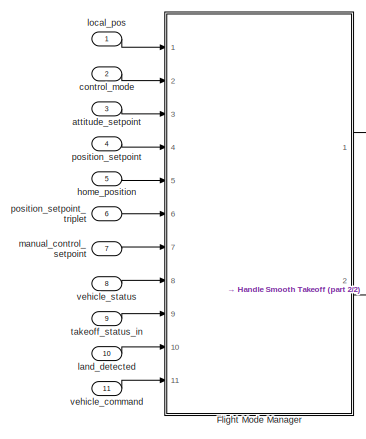
[diagram: root canvas - part 1/2, left side, full height]
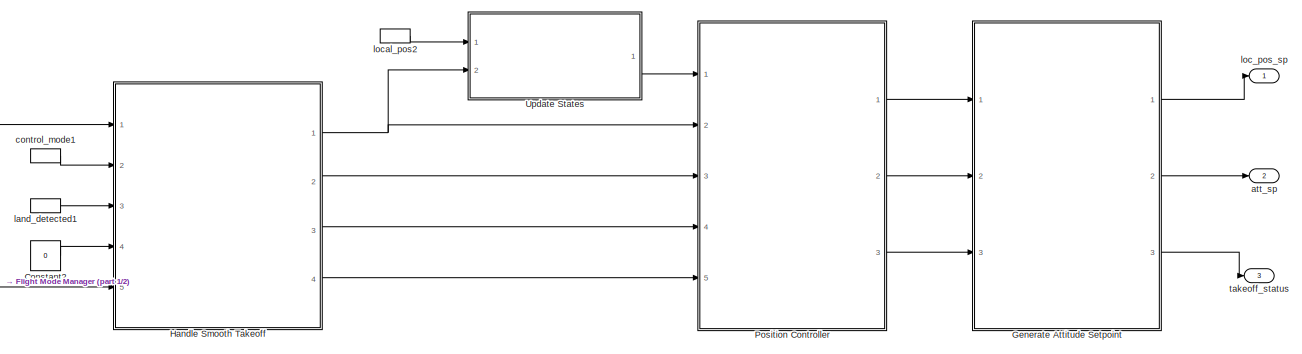
[diagram: root canvas - part 2/2, most of the canvas]
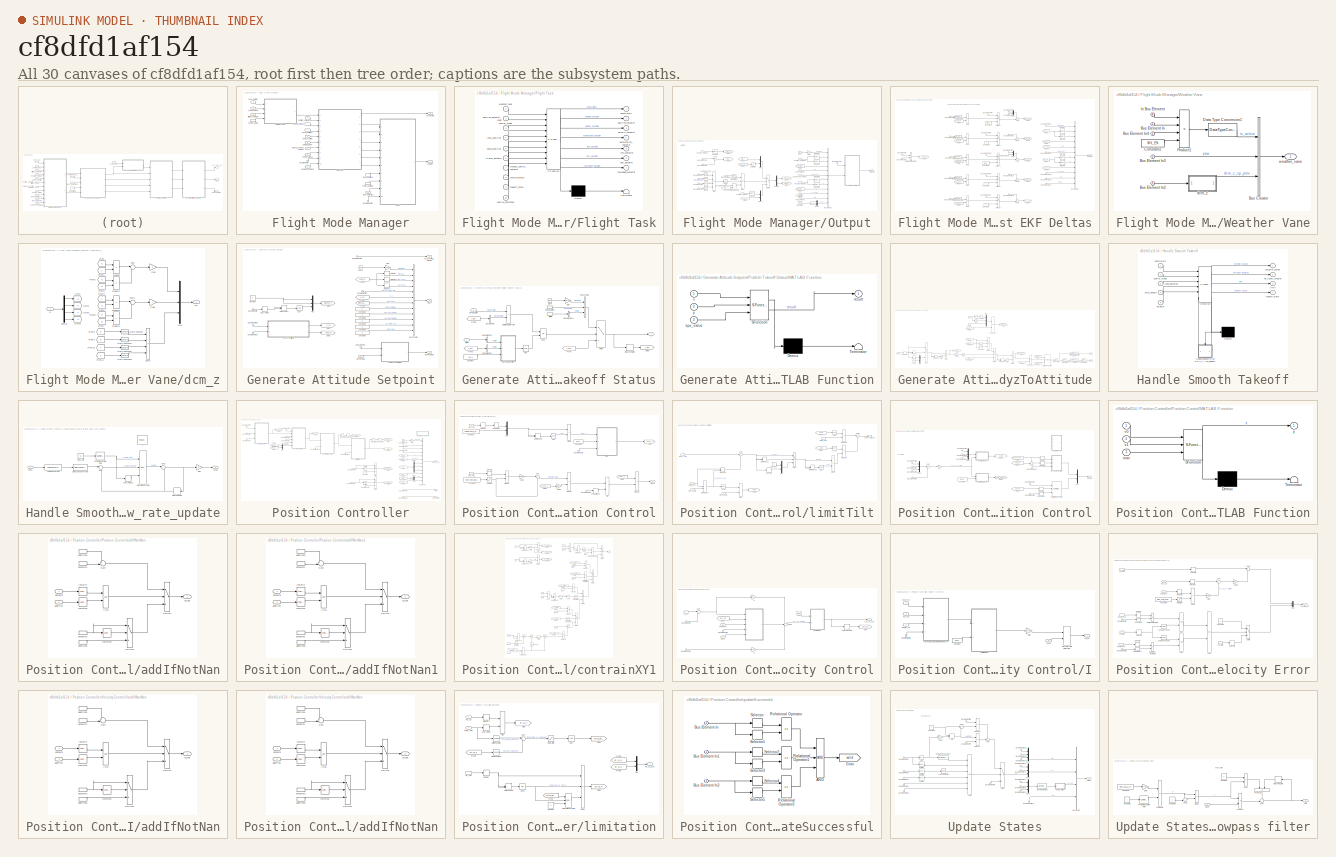
[diagram: thumbnail index - all 30 canvases of the model, root first then tree order]
MODEL slx_cf8dfd1af154
KIND model
CONFIG AbsTol = auto
CONFIG EnableMultiTasking = off
CONFIG FixedStep = 0.1
CONFIG MaxStep = auto
CONFIG MinStep = auto
CONFIG RelTol = 1e-3
CONFIG SampleTimeConstraint = Unconstrained
CONFIG SolverName = FixedStepAuto
CONFIG StartTime = 0.0
CONFIG StopTime = 10.0
BLOCK [Constant] Constant2
  OutDataTypeStr = boolean
  Value = 0
BLOCK [SubSystem] Flight Mode Manager
  Ports = [11, 2]
  RequestExecContextInheritance = off
BLOCK [Inport] Flight Mode Manager/Bus Element In
  Port = 9
BLOCK [Inport] Flight Mode Manager/Bus Element In1
  Port = 9
BLOCK [SubSystem] Flight Mode Manager/Flight Task
  ErrorFcn = Stateflow.Translate.translate
  PermitHierarchicalResolution = ExplicitOnly
  Ports = [10, 7]
  RequestExecContextInheritance = off
  SFBlockType = Chart
  TreatAsAtomicUnit = on
BLOCK [Demux] Flight Mode Manager/Flight Task/ Demux 
  Outputs = 1
  Ports = [1, 1]
BLOCK [S-Function] Flight Mode Manager/Flight Task/ SFunction 
  EnableBusSupport = on
  FunctionName = sf_sfun
  Parameters = CONSTANTS_ONE_G,CONSTANTS_RADIUS_OF_EARTH,MC_MAN_TILT_TAU,MIS_YAW_ERR,MPC_ACC_DOWN_MAX,MPC_ACC_HOR,MPC_ACC_HOR_MAX,MPC_ACC_UP_MAX,MPC_ALT_MODE,MPC_HOLD_DZ,MPC_HOLD_MAX_XY,MPC_HOLD_MAX_Z,MPC_JERK_AUTO,MPC_JERK_MAX,MPC_LAND_ALT1,MPC_LAND_ALT2,MPC_LAND_RC_HELP,MPC_LAND_SPEED,MPC_MAN_TILT_MAX,MPC_MAN_Y_MAX,MPC_MAN_Y_TAU,MPC_POS_MODE,MPC_TKO_RAMP_T,MPC_TKO_SPEED,MPC_VEL_MANUAL,MPC_XY_CRUISE,MPC_XY_ERR_...<+202ch>
  PortCounts = [10 8]
  Ports = [10, 8]
  SFcnIsStateOwnerBlock = off
  SFunctionDeploymentMode = off
  Tag = Stateflow S-Function 5
BLOCK [Terminator] Flight Mode Manager/Flight Task/ Terminator 
BLOCK [Outport] Flight Mode Manager/Flight Task/acceleration_setpoint
  Port = 4
BLOCK [Outport] Flight Mode Manager/Flight Task/constraints
BLOCK [Inport] Flight Mode Manager/Flight Task/control_mode
  Port = 3
BLOCK [Inport] Flight Mode Manager/Flight Task/home_position
  Port = 5
BLOCK [Outport] Flight Mode Manager/Flight Task/jerk_setpoint
  Port = 5
BLOCK [Inport] Flight Mode Manager/Flight Task/local_position
  Port = 4
BLOCK [Inport] Flight Mode Manager/Flight Task/manual_control_setpoint
  Port = 7
BLOCK [Outport] Flight Mode Manager/Flight Task/position_setpoint
  Port = 2
BLOCK [Inport] Flight Mode Manager/Flight Task/position_setpoint_input
  Port = 2
BLOCK [Inport] Flight Mode Manager/Flight Task/takeoff_state
  Port = 9
BLOCK [Inport] Flight Mode Manager/Flight Task/triplet_setpoint
  Port = 6
BLOCK [Inport] Flight Mode Manager/Flight Task/vehicle_command
  Port = 10
BLOCK [Inport] Flight Mode Manager/Flight Task/vehicle_status
  Port = 8
BLOCK [Outport] Flight Mode Manager/Flight Task/velocity_setpoint
  Port = 3
BLOCK [Inport] Flight Mode Manager/Flight Task/weather_vane
BLOCK [Outport] Flight Mode Manager/Flight Task/yaw_setpoint
  Port = 6
BLOCK [Outport] Flight Mode Manager/Flight Task/yawspeed_setpoint
  Port = 7
BLOCK [SubSystem] Flight Mode Manager/Output
  Ports = [10, 1]
  RequestExecContextInheritance = off
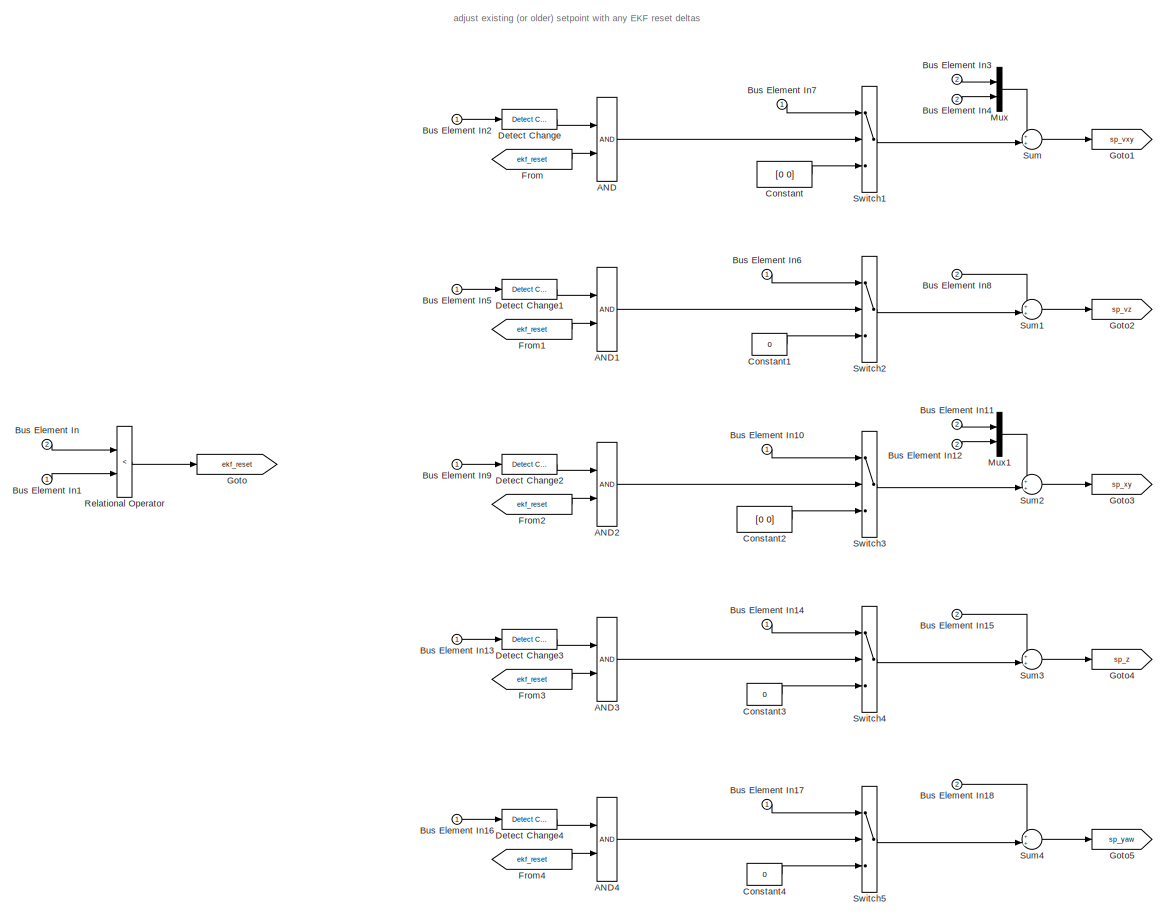
[diagram: Flight Mode Manager/Output/Adjust EKF Deltas - part 1/2, center side, full height]
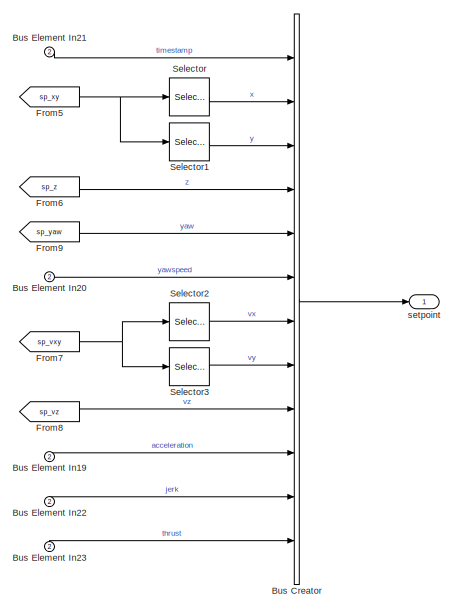
[diagram: Flight Mode Manager/Output/Adjust EKF Deltas - part 2/2, middle right region]
BLOCK [SubSystem] Flight Mode Manager/Output/Adjust EKF Deltas
  Ports = [2, 1]
  RequestExecContextInheritance = off
BLOCK [Logic] Flight Mode Manager/Output/Adjust EKF Deltas/AND
  AllPortsSameDT = off
  OutDataTypeStr = boolean
  Ports = [2, 1]
BLOCK [Logic] Flight Mode Manager/Output/Adjust EKF Deltas/AND1
  AllPortsSameDT = off
  OutDataTypeStr = boolean
  Ports = [2, 1]
BLOCK [Logic] Flight Mode Manager/Output/Adjust EKF Deltas/AND2
  AllPortsSameDT = off
  OutDataTypeStr = boolean
  Ports = [2, 1]
BLOCK [Logic] Flight Mode Manager/Output/Adjust EKF Deltas/AND3
  AllPortsSameDT = off
  OutDataTypeStr = boolean
  Ports = [2, 1]
BLOCK [Logic] Flight Mode Manager/Output/Adjust EKF Deltas/AND4
  AllPortsSameDT = off
  OutDataTypeStr = boolean
  Ports = [2, 1]
BLOCK [BusCreator] Flight Mode Manager/Output/Adjust EKF Deltas/Bus Creator
  DisplayOption = bar
  InheritFromInputs = on
  Inputs = 12
  Ports = [12, 1]
BLOCK [Inport] Flight Mode Manager/Output/Adjust EKF Deltas/Bus Element In
  Port = 2
BLOCK [Inport] Flight Mode Manager/Output/Adjust EKF Deltas/Bus Element In1
BLOCK [Inport] Flight Mode Manager/Output/Adjust EKF Deltas/Bus Element In10
BLOCK [Inport] Flight Mode Manager/Output/Adjust EKF Deltas/Bus Element In11
  Port = 2
BLOCK [Inport] Flight Mode Manager/Output/Adjust EKF Deltas/Bus Element In12
  Port = 2
BLOCK [Inport] Flight Mode Manager/Output/Adjust EKF Deltas/Bus Element In13
BLOCK [Inport] Flight Mode Manager/Output/Adjust EKF Deltas/Bus Element In14
BLOCK [Inport] Flight Mode Manager/Output/Adjust EKF Deltas/Bus Element In15
  Port = 2
BLOCK [Inport] Flight Mode Manager/Output/Adjust EKF Deltas/Bus Element In16
BLOCK [Inport] Flight Mode Manager/Output/Adjust EKF Deltas/Bus Element In17
BLOCK [Inport] Flight Mode Manager/Output/Adjust EKF Deltas/Bus Element In18
  Port = 2
BLOCK [Inport] Flight Mode Manager/Output/Adjust EKF Deltas/Bus Element In19
  Port = 2
BLOCK [Inport] Flight Mode Manager/Output/Adjust EKF Deltas/Bus Element In2
BLOCK [Inport] Flight Mode Manager/Output/Adjust EKF Deltas/Bus Element In20
  Port = 2
BLOCK [Inport] Flight Mode Manager/Output/Adjust EKF Deltas/Bus Element In21
  Port = 2
BLOCK [Inport] Flight Mode Manager/Output/Adjust EKF Deltas/Bus Element In22
  Port = 2
BLOCK [Inport] Flight Mode Manager/Output/Adjust EKF Deltas/Bus Element In23
  Port = 2
BLOCK [Inport] Flight Mode Manager/Output/Adjust EKF Deltas/Bus Element In3
  Port = 2
BLOCK [Inport] Flight Mode Manager/Output/Adjust EKF Deltas/Bus Element In4
  Port = 2
BLOCK [Inport] Flight Mode Manager/Output/Adjust EKF Deltas/Bus Element In5
BLOCK [Inport] Flight Mode Manager/Output/Adjust EKF Deltas/Bus Element In6
BLOCK [Inport] Flight Mode Manager/Output/Adjust EKF Deltas/Bus Element In7
BLOCK [Inport] Flight Mode Manager/Output/Adjust EKF Deltas/Bus Element In8
  Port = 2
BLOCK [Inport] Flight Mode Manager/Output/Adjust EKF Deltas/Bus Element In9
BLOCK [Constant] Flight Mode Manager/Output/Adjust EKF Deltas/Constant
  OutDataTypeStr = single
  Value = [0 0]
BLOCK [Constant] Flight Mode Manager/Output/Adjust EKF Deltas/Constant1
  OutDataTypeStr = single
  Value = 0
BLOCK [Constant] Flight Mode Manager/Output/Adjust EKF Deltas/Constant2
  OutDataTypeStr = single
  Value = [0 0]
BLOCK [Constant] Flight Mode Manager/Output/Adjust EKF Deltas/Constant3
  OutDataTypeStr = single
  Value = 0
BLOCK [Constant] Flight Mode Manager/Output/Adjust EKF Deltas/Constant4
  OutDataTypeStr = single
  Value = 0
BLOCK [Reference] Flight Mode Manager/Output/Adjust EKF Deltas/Detect Change  REF=simulink/Logic and Bit
Operations/Detect
Change
  Ports = [1, 1]
  SourceBlock = simulink/Logic and Bit\nOperations/Detect\nChange
  SourceProductBaseCode = SL
  SourceType = Detect Change
BLOCK [Reference] Flight Mode Manager/Output/Adjust EKF Deltas/Detect Change1  REF=simulink/Logic and Bit
Operations/Detect
Change
  Ports = [1, 1]
  SourceBlock = simulink/Logic and Bit\nOperations/Detect\nChange
  SourceProductBaseCode = SL
  SourceType = Detect Change
BLOCK [Reference] Flight Mode Manager/Output/Adjust EKF Deltas/Detect Change2  REF=simulink/Logic and Bit
Operations/Detect
Change
  Ports = [1, 1]
  SourceBlock = simulink/Logic and Bit\nOperations/Detect\nChange
  SourceProductBaseCode = SL
  SourceType = Detect Change
BLOCK [Reference] Flight Mode Manager/Output/Adjust EKF Deltas/Detect Change3  REF=simulink/Logic and Bit
Operations/Detect
Change
  Ports = [1, 1]
  SourceBlock = simulink/Logic and Bit\nOperations/Detect\nChange
  SourceProductBaseCode = SL
  SourceType = Detect Change
BLOCK [Reference] Flight Mode Manager/Output/Adjust EKF Deltas/Detect Change4  REF=simulink/Logic and Bit
Operations/Detect
Change
  Ports = [1, 1]
  SourceBlock = simulink/Logic and Bit\nOperations/Detect\nChange
  SourceProductBaseCode = SL
  SourceType = Detect Change
BLOCK [From] Flight Mode Manager/Output/Adjust EKF Deltas/From
  GotoTag = ekf_reset
BLOCK [From] Flight Mode Manager/Output/Adjust EKF Deltas/From1
  GotoTag = ekf_reset
BLOCK [From] Flight Mode Manager/Output/Adjust EKF Deltas/From2
  GotoTag = ekf_reset
BLOCK [From] Flight Mode Manager/Output/Adjust EKF Deltas/From3
  GotoTag = ekf_reset
BLOCK [From] Flight Mode Manager/Output/Adjust EKF Deltas/From4
  GotoTag = ekf_reset
BLOCK [From] Flight Mode Manager/Output/Adjust EKF Deltas/From5
  GotoTag = sp_xy
BLOCK [From] Flight Mode Manager/Output/Adjust EKF Deltas/From6
  GotoTag = sp_z
BLOCK [From] Flight Mode Manager/Output/Adjust EKF Deltas/From7
  GotoTag = sp_vxy
BLOCK [From] Flight Mode Manager/Output/Adjust EKF Deltas/From8
  GotoTag = sp_vz
BLOCK [From] Flight Mode Manager/Output/Adjust EKF Deltas/From9
  GotoTag = sp_yaw
BLOCK [Goto] Flight Mode Manager/Output/Adjust EKF Deltas/Goto
  GotoTag = ekf_reset
BLOCK [Goto] Flight Mode Manager/Output/Adjust EKF Deltas/Goto1
  GotoTag = sp_vxy
BLOCK [Goto] Flight Mode Manager/Output/Adjust EKF Deltas/Goto2
  GotoTag = sp_vz
BLOCK [Goto] Flight Mode Manager/Output/Adjust EKF Deltas/Goto3
  GotoTag = sp_xy
BLOCK [Goto] Flight Mode Manager/Output/Adjust EKF Deltas/Goto4
  GotoTag = sp_z
BLOCK [Goto] Flight Mode Manager/Output/Adjust EKF Deltas/Goto5
  GotoTag = sp_yaw
BLOCK [Mux] Flight Mode Manager/Output/Adjust EKF Deltas/Mux
  DisplayOption = bar
  Inputs = 2
  Ports = [2, 1]
BLOCK [Mux] Flight Mode Manager/Output/Adjust EKF Deltas/Mux1
  DisplayOption = bar
  Inputs = 2
  Ports = [2, 1]
BLOCK [RelationalOperator] Flight Mode Manager/Output/Adjust EKF Deltas/Relational Operator
  InputSameDT = off
  Operator = <
  OutDataTypeStr = boolean
  Ports = [2, 1]
  RndMeth = Simplest
BLOCK [Selector] Flight Mode Manager/Output/Adjust EKF Deltas/Selector
  IndexOptions = Index vector (dialog)
  Indices = 1
  InputPortWidth = 2
  OutputSizes = 1
  Ports = [1, 1]
BLOCK [Selector] Flight Mode Manager/Output/Adjust EKF Deltas/Selector1
  IndexOptions = Index vector (dialog)
  Indices = 2
  InputPortWidth = 2
  OutputSizes = 1
  Ports = [1, 1]
BLOCK [Selector] Flight Mode Manager/Output/Adjust EKF Deltas/Selector2
  IndexOptions = Index vector (dialog)
  Indices = 1
  InputPortWidth = 2
  OutputSizes = 1
  Ports = [1, 1]
BLOCK [Selector] Flight Mode Manager/Output/Adjust EKF Deltas/Selector3
  IndexOptions = Index vector (dialog)
  Indices = 2
  InputPortWidth = 2
  OutputSizes = 1
  Ports = [1, 1]
BLOCK [Sum] Flight Mode Manager/Output/Adjust EKF Deltas/Sum
  Inputs = ++|
  Ports = [2, 1]
BLOCK [Sum] Flight Mode Manager/Output/Adjust EKF Deltas/Sum1
  Inputs = ++|
  Ports = [2, 1]
BLOCK [Sum] Flight Mode Manager/Output/Adjust EKF Deltas/Sum2
  Inputs = ++|
  Ports = [2, 1]
BLOCK [Sum] Flight Mode Manager/Output/Adjust EKF Deltas/Sum3
  Inputs = ++|
  Ports = [2, 1]
BLOCK [Sum] Flight Mode Manager/Output/Adjust EKF Deltas/Sum4
  Inputs = ++|
  Ports = [2, 1]
BLOCK [Switch] Flight Mode Manager/Output/Adjust EKF Deltas/Switch1
  Criteria = u2 ~= 0
  InputSameDT = off
  SaturateOnIntegerOverflow = off
BLOCK [Switch] Flight Mode Manager/Output/Adjust EKF Deltas/Switch2
  Criteria = u2 ~= 0
  InputSameDT = off
  SaturateOnIntegerOverflow = off
BLOCK [Switch] Flight Mode Manager/Output/Adjust EKF Deltas/Switch3
  Criteria = u2 ~= 0
  InputSameDT = off
  SaturateOnIntegerOverflow = off
BLOCK [Switch] Flight Mode Manager/Output/Adjust EKF Deltas/Switch4
  Criteria = u2 ~= 0
  InputSameDT = off
  SaturateOnIntegerOverflow = off
BLOCK [Switch] Flight Mode Manager/Output/Adjust EKF Deltas/Switch5
  Criteria = u2 ~= 0
  InputSameDT = off
  SaturateOnIntegerOverflow = off
BLOCK [Outport] Flight Mode Manager/Output/Adjust EKF Deltas/setpoint
BLOCK [BusCreator] Flight Mode Manager/Output/Bus Creator
  DisplayOption = bar
  InheritFromInputs = on
  Inputs = 12
  Ports = [12, 1]
BLOCK [Inport] Flight Mode Manager/Output/Bus Element In
  Port = 8
BLOCK [Inport] Flight Mode Manager/Output/Bus Element In1
  Port = 9
BLOCK [Inport] Flight Mode Manager/Output/Bus Element In2
  Port = 7
BLOCK [Inport] Flight Mode Manager/Output/Bus Element In3
  Port = 7
BLOCK [Inport] Flight Mode Manager/Output/Bus Element In4
  Port = 8
BLOCK [Inport] Flight Mode Manager/Output/Bus Element In5
  Port = 9
BLOCK [Inport] Flight Mode Manager/Output/Bus Element In6
  Port = 7
BLOCK [Inport] Flight Mode Manager/Output/Bus Element In7
  Port = 7
BLOCK [Clock] Flight Mode Manager/Output/Clock
BLOCK [Reference] Flight Mode Manager/Output/Compare To Constant  REF=simulink/Logic and Bit
Operations/Compare
To Constant
  Ports = [1, 1]
  SourceBlock = simulink/Logic and Bit\nOperations/Compare\nTo Constant
  SourceProductBaseCode = SL
  SourceType = Compare To Constant
BLOCK [Reference] Flight Mode Manager/Output/Compare To Zero  REF=simulink/Logic and Bit
Operations/Compare
To Zero
  Ports = [1, 1]
  SourceBlock = simulink/Logic and Bit\nOperations/Compare\nTo Zero
  SourceProductBaseCode = SL
  SourceType = Compare To Zero
BLOCK [Constant] Flight Mode Manager/Output/Constant1
  OutDataTypeStr = single
  Value = nan
BLOCK [Demux] Flight Mode Manager/Output/Demux
  Outputs = 2
  Ports = [1, 2]
BLOCK [From] Flight Mode Manager/Output/From
  GotoTag = min_z
BLOCK [From] Flight Mode Manager/Output/From1
  GotoTag = sp_vz
BLOCK [From] Flight Mode Manager/Output/From2
  GotoTag = min_z
BLOCK [From] Flight Mode Manager/Output/From3
  GotoTag = sp_vz
BLOCK [From] Flight Mode Manager/Output/From4
  GotoTag = setpoint_vz
BLOCK [From] Flight Mode Manager/Output/From6
  GotoTag = setpoint_z
BLOCK [Gain] Flight Mode Manager/Output/Gain
  AttributesFormatString = %<Gain>
  Gain = 1e+6
  OutDataTypeStr = uint64
BLOCK [Goto] Flight Mode Manager/Output/Goto
  GotoTag = min_z
BLOCK [Goto] Flight Mode Manager/Output/Goto2
  GotoTag = sp_vz
BLOCK [Goto] Flight Mode Manager/Output/Goto3
  GotoTag = setpoint_z
BLOCK [Goto] Flight Mode Manager/Output/Goto4
  GotoTag = setpoint_vz
BLOCK [Mux] Flight Mode Manager/Output/Mux
  DisplayOption = bar
  Inputs = 2
  Ports = [2, 1]
BLOCK [Mux] Flight Mode Manager/Output/Mux1
  DisplayOption = bar
  Inputs = 2
  Ports = [2, 1]
BLOCK [Mux] Flight Mode Manager/Output/Mux2
  DisplayOption = bar
  Inputs = 3
  Ports = [3, 1]
BLOCK [Logic] Flight Mode Manager/Output/NOT
  AllPortsSameDT = off
  Operator = NOT
  OutDataTypeStr = boolean
  Ports = [1, 1]
BLOCK [Logic] Flight Mode Manager/Output/NOT1
  AllPortsSameDT = off
  Operator = NOT
  OutDataTypeStr = boolean
  Ports = [1, 1]
BLOCK [Logic] Flight Mode Manager/Output/NOT2
  AllPortsSameDT = off
  Operator = NOT
  OutDataTypeStr = boolean
  Ports = [1, 1]
BLOCK [Logic] Flight Mode Manager/Output/NOT3
  AllPortsSameDT = off
  Operator = NOT
  OutDataTypeStr = boolean
  Ports = [1, 1]
BLOCK [Logic] Flight Mode Manager/Output/OR
  AllPortsSameDT = off
  Inputs = 4
  Operator = OR
  OutDataTypeStr = boolean
  Ports = [4, 1]
BLOCK [Logic] Flight Mode Manager/Output/OR1
  AllPortsSameDT = off
  Inputs = 3
  OutDataTypeStr = boolean
  Ports = [3, 1]
BLOCK [RelationalOperator] Flight Mode Manager/Output/Relational Operator
  InputSameDT = off
  Operator = <
  OutDataTypeStr = boolean
  Ports = [2, 1]
  RndMeth = Simplest
BLOCK [Saturate] Flight Mode Manager/Output/Saturation
  AttributesFormatString = [%<LowerLimit>, %<UpperLimit>]
  LowerLimit = 0.0
  UpperLimit = inf
BLOCK [Selector] Flight Mode Manager/Output/Selector
  IndexOptions = Index vector (dialog)
  Indices = 3
  InputPortWidth = 3
  OutputSizes = 1
  Ports = [1, 1]
BLOCK [Selector] Flight Mode Manager/Output/Selector1
  IndexOptions = Index vector (dialog)
  Indices = 3
  InputPortWidth = 3
  OutputSizes = 1
  Ports = [1, 1]
BLOCK [Selector] Flight Mode Manager/Output/Selector2
  IndexOptions = Index vector (dialog)
  Indices = 1
  InputPortWidth = 3
  OutputSizes = 1
  Ports = [1, 1]
BLOCK [Selector] Flight Mode Manager/Output/Selector3
  IndexOptions = Index vector (dialog)
  Indices = 2
  InputPortWidth = 3
  OutputSizes = 1
  Ports = [1, 1]
BLOCK [Selector] Flight Mode Manager/Output/Selector4
  IndexOptions = Index vector (dialog)
  Indices = 1
  InputPortWidth = 3
  OutputSizes = 1
  Ports = [1, 1]
BLOCK [Selector] Flight Mode Manager/Output/Selector5
  IndexOptions = Index vector (dialog)
  Indices = 2
  InputPortWidth = 3
  OutputSizes = 1
  Ports = [1, 1]
BLOCK [Sum] Flight Mode Manager/Output/Sum
  Inputs = |+-
  Ports = [2, 1]
BLOCK [Switch] Flight Mode Manager/Output/Switch
  Criteria = u2 ~= 0
  InputSameDT = off
  SaturateOnIntegerOverflow = off
BLOCK [Inport] Flight Mode Manager/Output/acceleration_setpoint
  Port = 3
BLOCK [Inport] Flight Mode Manager/Output/jerk_setpoint
  Port = 4
BLOCK [Inport] Flight Mode Manager/Output/position_setpoint
BLOCK [InportShadow] Flight Mode Manager/Output/position_setpoint1
BLOCK [Outport] Flight Mode Manager/Output/setpoint
BLOCK [Inport] Flight Mode Manager/Output/takeoff_status
  Port = 10
BLOCK [Inport] Flight Mode Manager/Output/velocity_setpoint
  Port = 2
BLOCK [InportShadow] Flight Mode Manager/Output/velocity_setpoint1
  Port = 2
BLOCK [Inport] Flight Mode Manager/Output/yaw_setpoint
  Port = 5
BLOCK [Inport] Flight Mode Manager/Output/yawspeed_setpoint
  Port = 6
BLOCK [SubSystem] Flight Mode Manager/Weather Vane
  Ports = [4, 1]
  RequestExecContextInheritance = off
BLOCK [BusCreator] Flight Mode Manager/Weather Vane/Bus Creator
  DisplayOption = bar
  InheritFromInputs = on
  Inputs = 3
  Ports = [3, 1]
BLOCK [Inport] Flight Mode Manager/Weather Vane/Bus Element In
  Port = 2
BLOCK [Inport] Flight Mode Manager/Weather Vane/Bus Element In2
  Port = 3
BLOCK [Inport] Flight Mode Manager/Weather Vane/Bus Element In3
BLOCK [Inport] Flight Mode Manager/Weather Vane/Bus Element In4
  Port = 2
BLOCK [Constant] Flight Mode Manager/Weather Vane/Constant2
  OutDataTypeStr = boolean
  Value = WV_EN
BLOCK [DataTypeConversion] Flight Mode Manager/Weather Vane/Data Type Conversion1
  OutDataTypeStr = boolean
  RndMeth = Floor
  SaturateOnIntegerOverflow = off
BLOCK [Inport] Flight Mode Manager/Weather Vane/In Bus Element
  Port = 4
BLOCK [Product] Flight Mode Manager/Weather Vane/Product1
  Inputs = 4
  Ports = [4, 1]
BLOCK [SubSystem] Flight Mode Manager/Weather Vane/dcm_z
  Ports = [1, 1]
  RequestExecContextInheritance = off
BLOCK [Demux] Flight Mode Manager/Weather Vane/dcm_z/Demux
  Ports = [1, 4]
BLOCK [From] Flight Mode Manager/Weather Vane/dcm_z/From
  GotoTag = a
BLOCK [From] Flight Mode Manager/Weather Vane/dcm_z/From1
  GotoTag = c
BLOCK [From] Flight Mode Manager/Weather Vane/dcm_z/From10
  GotoTag = c
BLOCK [From] Flight Mode Manager/Weather Vane/dcm_z/From11
  GotoTag = d
BLOCK [From] Flight Mode Manager/Weather Vane/dcm_z/From2
  GotoTag = b
BLOCK [From] Flight Mode Manager/Weather Vane/dcm_z/From3
  GotoTag = d
BLOCK [From] Flight Mode Manager/Weather Vane/dcm_z/From4
  GotoTag = c
BLOCK [From] Flight Mode Manager/Weather Vane/dcm_z/From5
  GotoTag = d
BLOCK [From] Flight Mode Manager/Weather Vane/dcm_z/From6
  GotoTag = a
BLOCK [From] Flight Mode Manager/Weather Vane/dcm_z/From7
  GotoTag = b
BLOCK [From] Flight Mode Manager/Weather Vane/dcm_z/From8
  GotoTag = a
BLOCK [From] Flight Mode Manager/Weather Vane/dcm_z/From9
  GotoTag = b
BLOCK [Gain] Flight Mode Manager/Weather Vane/dcm_z/Gain
  Gain = 2
  OutDataTypeStr = single
BLOCK [Gain] Flight Mode Manager/Weather Vane/dcm_z/Gain1
  Gain = 2
  OutDataTypeStr = single
BLOCK [Goto] Flight Mode Manager/Weather Vane/dcm_z/Goto
  GotoTag = a
BLOCK [Goto] Flight Mode Manager/Weather Vane/dcm_z/Goto1
  GotoTag = b
BLOCK [Goto] Flight Mode Manager/Weather Vane/dcm_z/Goto2
  GotoTag = c
BLOCK [Goto] Flight Mode Manager/Weather Vane/dcm_z/Goto3
  GotoTag = d
BLOCK [Math] Flight Mode Manager/Weather Vane/dcm_z/Math Function
  Operator = square
  Ports = [1, 1]
BLOCK [Math] Flight Mode Manager/Weather Vane/dcm_z/Math Function1
  Operator = square
  Ports = [1, 1]
BLOCK [Math] Flight Mode Manager/Weather Vane/dcm_z/Math Function2
  Operator = square
  Ports = [1, 1]
BLOCK [Math] Flight Mode Manager/Weather Vane/dcm_z/Math Function3
  Operator = square
  Ports = [1, 1]
BLOCK [Mux] Flight Mode Manager/Weather Vane/dcm_z/Mux
  DisplayOption = bar
  Inputs = 3
  Ports = [3, 1]
BLOCK [Product] Flight Mode Manager/Weather Vane/dcm_z/Product
  Ports = [2, 1]
BLOCK [Product] Flight Mode Manager/Weather Vane/dcm_z/Product1
  Ports = [2, 1]
BLOCK [Product] Flight Mode Manager/Weather Vane/dcm_z/Product3
  Ports = [2, 1]
BLOCK [Product] Flight Mode Manager/Weather Vane/dcm_z/Product4
  Ports = [2, 1]
BLOCK [Inport] Flight Mode Manager/Weather Vane/dcm_z/Q
BLOCK [Sum] Flight Mode Manager/Weather Vane/dcm_z/Sum
  Inputs = |++
  Ports = [2, 1]
BLOCK [Sum] Flight Mode Manager/Weather Vane/dcm_z/Sum1
  Inputs = |+-
  Ports = [2, 1]
BLOCK [Sum] Flight Mode Manager/Weather Vane/dcm_z/Sum2
  IconShape = rectangular
  Inputs = +--+
  Ports = [4, 1]
BLOCK [Outport] Flight Mode Manager/Weather Vane/dcm_z/out
BLOCK [Outport] Flight Mode Manager/Weather Vane/weather_vane
BLOCK [Inport] Flight Mode Manager/attitude_setpoint
  OutDataTypeStr = Bus: px4_vehicle_attitude_setpoint
  Port = 3
BLOCK [Outport] Flight Mode Manager/constraints
BLOCK [Inport] Flight Mode Manager/control_mode
  OutDataTypeStr = Bus: px4_vehicle_control_mode
  Port = 2
BLOCK [InportShadow] Flight Mode Manager/control_mode1
  OutDataTypeStr = Bus: px4_vehicle_control_mode
  Port = 2
BLOCK [Inport] Flight Mode Manager/home_position
  OutDataTypeStr = Bus: px4_home_position
  Port = 5
BLOCK [InportShadow] Flight Mode Manager/home_position1
  OutDataTypeStr = Bus: px4_home_position
  Port = 5
BLOCK [Inport] Flight Mode Manager/land_detected
  OutDataTypeStr = Bus: px4_vehicle_land_detected
  Port = 10
BLOCK [Inport] Flight Mode Manager/local_position
  OutDataTypeStr = Bus: px4_vehicle_local_position
BLOCK [InportShadow] Flight Mode Manager/local_position1
  OutDataTypeStr = Bus: px4_vehicle_local_position
BLOCK [InportShadow] Flight Mode Manager/local_position2
  OutDataTypeStr = Bus: px4_vehicle_local_position
BLOCK [Inport] Flight Mode Manager/manual_control_setpoint
  OutDataTypeStr = Bus: px4_manual_control_setpoint
  Port = 7
BLOCK [Inport] Flight Mode Manager/position_setpoint
  OutDataTypeStr = Bus: px4_vehicle_local_position_setpoint
  Port = 4
BLOCK [Outport] Flight Mode Manager/setpoint
  Port = 2
BLOCK [Inport] Flight Mode Manager/setpoint_triplet
  OutDataTypeStr = Bus: px4_position_setpoint_triplet
  Port = 6
BLOCK [Inport] Flight Mode Manager/vehicle_command
  OutDataTypeStr = Bus: px4_vehicle_command
  Port = 11
BLOCK [InportShadow] Flight Mode Manager/vehicle_status
  OutDataTypeStr = Bus: px4_vehicle_status
  Port = 8
BLOCK [Inport] Flight Mode Manager/vehicle_status1
  OutDataTypeStr = Bus: px4_vehicle_status
  Port = 8
BLOCK [SubSystem] Generate Attitude Setpoint
  Ports = [3, 3]
  RequestExecContextInheritance = off
BLOCK [BusCreator] Generate Attitude Setpoint/Bus Creator
  DisplayOption = bar
  InheritFromInputs = on
  Inputs = 12
  Ports = [12, 1]
BLOCK [Inport] Generate Attitude Setpoint/Bus Element In
BLOCK [Inport] Generate Attitude Setpoint/Bus Element In1
BLOCK [Inport] Generate Attitude Setpoint/Bus Element In2
BLOCK [Inport] Generate Attitude Setpoint/Bus Element In3
BLOCK [Inport] Generate Attitude Setpoint/Bus Element In4
BLOCK [Clock] Generate Attitude Setpoint/Clock
BLOCK [Constant] Generate Attitude Setpoint/Constant
  OutDataTypeStr = single
  Value = 0
BLOCK [Constant] Generate Attitude Setpoint/Constant1
  OutDataTypeStr = boolean
  Value = 0
BLOCK [Constant] Generate Attitude Setpoint/Constant2
  OutDataTypeStr = boolean
  Value = 0
BLOCK [Constant] Generate Attitude Setpoint/Constant3
  OutDataTypeStr = boolean
  Value = 0
BLOCK [Constant] Generate Attitude Setpoint/Constant4
  OutDataTypeStr = boolean
  Value = 0
BLOCK [Constant] Generate Attitude Setpoint/Constant5
  OutDataTypeStr = uint8
  Value = 0
BLOCK [DotProduct] Generate Attitude Setpoint/Dot Product
  OutDataTypeStr = Inherit: Inherit via internal rule
BLOCK [From] Generate Attitude Setpoint/From1
  GotoTag = euler_sp
BLOCK [From] Generate Attitude Setpoint/From2
  GotoTag = q_sp
BLOCK [From] Generate Attitude Setpoint/From3
  GotoTag = thrust_body
BLOCK [Gain] Generate Attitude Setpoint/Gain
  AttributesFormatString = %<Gain>
  Gain = 1e+6
  OutDataTypeStr = uint64
BLOCK [Goto] Generate Attitude Setpoint/Goto
  GotoTag = thrust_body
BLOCK [Goto] Generate Attitude Setpoint/Goto1
  GotoTag = q_sp
BLOCK [Goto] Generate Attitude Setpoint/Goto2
  GotoTag = euler_sp
BLOCK [Inport] Generate Attitude Setpoint/In Bus Element
  Port = 2
BLOCK [Mux] Generate Attitude Setpoint/Mux
  DisplayOption = bar
  Inputs = 3
  Ports = [3, 1]
BLOCK [SubSystem] Generate Attitude Setpoint/Publish Takeoff Status
  Ports = [2, 1]
  RequestExecContextInheritance = off
BLOCK [BusCreator] Generate Attitude Setpoint/Publish Takeoff Status/Bus Creator
  DisplayOption = bar
  InheritFromInputs = on
  Inputs = 3
  Ports = [3, 1]
BLOCK [BusSelector] Generate Attitude Setpoint/Publish Takeoff Status/Bus Selector
  OutputSignals = takeoff_state
  Ports = [1, 1]
BLOCK [BusSelector] Generate Attitude Setpoint/Publish Takeoff Status/Bus Selector1
  OutputSignals = lim_tilt
  Ports = [1, 1]
BLOCK [BusSelector] Generate Attitude Setpoint/Publish Takeoff Status/Bus Selector2
  OutputSignals = lim_tilt
  Ports = [1, 1]
BLOCK [BusSelector] Generate Attitude Setpoint/Publish Takeoff Status/Bus Selector3
  OutputSignals = lim_tilt
  Ports = [1, 1]
BLOCK [Clock] Generate Attitude Setpoint/Publish Takeoff Status/Clock
BLOCK [Constant] Generate Attitude Setpoint/Publish Takeoff Status/Constant
  OutDataTypeStr = single
  Value = 1e-4
BLOCK [Delay] Generate Attitude Setpoint/Publish Takeoff Status/Delay One Step
  DelayLength = 1
  InputPortMap = u0
  Ports = [1, 1]
BLOCK [From] Generate Attitude Setpoint/Publish Takeoff Status/From
  GotoTag = y_last
BLOCK [From] Generate Attitude Setpoint/Publish Takeoff Status/From1
  GotoTag = y_last
BLOCK [From] Generate Attitude Setpoint/Publish Takeoff Status/From3
  GotoTag = y_last
BLOCK [Gain] Generate Attitude Setpoint/Publish Takeoff Status/Gain
  AttributesFormatString = %<Gain>
  Gain = 1e+6
  OutDataTypeStr = uint64
BLOCK [Goto] Generate Attitude Setpoint/Publish Takeoff Status/Goto1
  GotoTag = y_last
  NameLocation = top
BLOCK [SubSystem] Generate Attitude Setpoint/Publish Takeoff Status/MATLAB Function
  ErrorFcn = Stateflow.Translate.translate
  PermitHierarchicalResolution = ExplicitOnly
  Ports = [3, 1]
  RequestExecContextInheritance = off
  SFBlockType = MATLAB Function
  TreatAsAtomicUnit = on
BLOCK [Demux] Generate Attitude Setpoint/Publish Takeoff Status/MATLAB Function/ Demux 
  Outputs = 1
  Ports = [1, 1]
BLOCK [S-Function] Generate Attitude Setpoint/Publish Takeoff Status/MATLAB Function/ SFunction 
  EnableBusSupport = on
  FunctionName = sf_sfun
  PortCounts = [3 2]
  Ports = [3, 2]
  SFcnIsStateOwnerBlock = off
  SFunctionDeploymentMode = off
  Tag = Stateflow S-Function 2
BLOCK [Terminator] Generate Attitude Setpoint/Publish Takeoff Status/MATLAB Function/ Terminator 
BLOCK [Inport] Generate Attitude Setpoint/Publish Takeoff Status/MATLAB Function/eps_value
  Port = 3
BLOCK [Outport] Generate Attitude Setpoint/Publish Takeoff Status/MATLAB Function/result
BLOCK [Inport] Generate Attitude Setpoint/Publish Takeoff Status/MATLAB Function/x
BLOCK [Inport] Generate Attitude Setpoint/Publish Takeoff Status/MATLAB Function/y
  Port = 2
BLOCK [Logic] Generate Attitude Setpoint/Publish Takeoff Status/NOT
  AllPortsSameDT = off
  Operator = NOT
  OutDataTypeStr = boolean
  Ports = [1, 1]
BLOCK [Logic] Generate Attitude Setpoint/Publish Takeoff Status/NOT1
  AllPortsSameDT = off
  Operator = OR
  OutDataTypeStr = boolean
  Ports = [2, 1]
BLOCK [RelationalOperator] Generate Attitude Setpoint/Publish Takeoff Status/Relational Operator
  InputSameDT = off
  Operator = ~=
  OutDataTypeStr = boolean
  Ports = [2, 1]
  RndMeth = Simplest
BLOCK [Switch] Generate Attitude Setpoint/Publish Takeoff Status/Switch
  Criteria = u2 ~= 0
  InputSameDT = off
  SaturateOnIntegerOverflow = off
BLOCK [Inport] Generate Attitude Setpoint/Publish Takeoff Status/takeoff_state
  Port = 2
  PortDimensions = 1
  SignalType = real
  VarSizeSig = No
BLOCK [InportShadow] Generate Attitude Setpoint/Publish Takeoff Status/takeoff_state1
  Port = 2
  PortDimensions = 1
  SignalType = real
  VarSizeSig = No
BLOCK [Inport] Generate Attitude Setpoint/Publish Takeoff Status/tilt_limit
  PortDimensions = 1
  SignalType = real
  VarSizeSig = No
BLOCK [InportShadow] Generate Attitude Setpoint/Publish Takeoff Status/tilt_limit1
  PortDimensions = 1
  SignalType = real
  VarSizeSig = No
BLOCK [Outport] Generate Attitude Setpoint/Publish Takeoff Status/y
BLOCK [Selector] Generate Attitude Setpoint/Selector
  IndexOptions = Index vector (dialog)
  Indices = 3
  InputPortWidth = 3
  OutputSizes = 1
  Ports = [1, 1]
BLOCK [Selector] Generate Attitude Setpoint/Selector1
  IndexOptions = Index vector (dialog)
  Indices = 2
  InputPortWidth = 3
  OutputSizes = 1
  Ports = [1, 1]
BLOCK [Selector] Generate Attitude Setpoint/Selector2
  IndexOptions = Index vector (dialog)
  Indices = 1
  InputPortWidth = 3
  OutputSizes = 1
  Ports = [1, 1]
BLOCK [Sqrt] Generate Attitude Setpoint/Sqrt
BLOCK [UnaryMinus] Generate Attitude Setpoint/Unary Minus
BLOCK [Outport] Generate Attitude Setpoint/att_sp
  OutDataTypeStr = Bus: px4_vehicle_attitude_setpoint
  Port = 2
BLOCK [SubSystem] Generate Attitude Setpoint/bodyzToAttitude
  Ports = [2, 2]
  RequestExecContextInheritance = off
BLOCK [Abs] Generate Attitude Setpoint/bodyzToAttitude/Abs
  SaturateOnIntegerOverflow = off
BLOCK [Constant] Generate Attitude Setpoint/bodyzToAttitude/Constant
  OutDataTypeStr = single
BLOCK [Constant] Generate Attitude Setpoint/bodyzToAttitude/Constant1
  OutDataTypeStr = single
  Value = 0
BLOCK [Constant] Generate Attitude Setpoint/bodyzToAttitude/Constant2
  OutDataTypeStr = single
  Value = [0 0 1]
BLOCK [Reference] Generate Attitude Setpoint/bodyzToAttitude/Cross Product  REF=vrlib/Utilities/Cross Product
  Ports = [2, 1]
  SourceBlock = vrlib/Utilities/Cross Product
  SourceProductBaseCode = SL
  SourceType = Cross Product
BLOCK [Reference] Generate Attitude Setpoint/bodyzToAttitude/Cross Product2  REF=vrlib/Utilities/Cross Product
  Ports = [2, 1]
  SourceBlock = vrlib/Utilities/Cross Product
  SourceProductBaseCode = SL
  SourceType = Cross Product
BLOCK [DataTypeConversion] Generate Attitude Setpoint/bodyzToAttitude/Data Type Conversion
  OutDataTypeStr = double
  RndMeth = Floor
  SaturateOnIntegerOverflow = off
BLOCK [DataTypeConversion] Generate Attitude Setpoint/bodyzToAttitude/Data Type Conversion1
  OutDataTypeStr = single
  RndMeth = Floor
  SaturateOnIntegerOverflow = off
BLOCK [Reference] Generate Attitude Setpoint/bodyzToAttitude/Direction Cosine Matrix to Quaternions  REF=sharedtransform/Direction Cosine Matrix 
to Quaternions
  Ports = [1, 1]
  SourceBlock = sharedtransform/Direction Cosine Matrix \nto Quaternions
  SourceProductBaseCode = AE,PW,DR,MT,UV,VE
  SourceType = DCM2Quaternion
BLOCK [Reference] Generate Attitude Setpoint/bodyzToAttitude/Direction Cosine Matrix to Rotation Angles  REF=sharedtransform/Direction Cosine Matrix
to Rotation Angles
  AttributesFormatString = Rotation Order: %<rotationOrder>
  Ports = [1, 1]
  SourceBlock = sharedtransform/Direction Cosine Matrix\nto Rotation Angles
  SourceProductBaseCode = AE,PW,DR,MT,UV,VE
  SourceType = DCM2Ang
BLOCK [Product] Generate Attitude Setpoint/bodyzToAttitude/Divide
  Inputs = */
  Ports = [2, 1]
BLOCK [Product] Generate Attitude Setpoint/bodyzToAttitude/Divide1
  Inputs = */
  Ports = [2, 1]
BLOCK [DotProduct] Generate Attitude Setpoint/bodyzToAttitude/Dot Product1
  OutDataTypeStr = Inherit: Inherit via internal rule
BLOCK [DotProduct] Generate Attitude Setpoint/bodyzToAttitude/Dot Product2
  OutDataTypeStr = Inherit: Inherit via internal rule
BLOCK [DotProduct] Generate Attitude Setpoint/bodyzToAttitude/Dot Product3
  OutDataTypeStr = Inherit: Inherit via internal rule
BLOCK [From] Generate Attitude Setpoint/bodyzToAttitude/From
  GotoTag = body_z
BLOCK [From] Generate Attitude Setpoint/bodyzToAttitude/From10
  GotoTag = body_z
BLOCK [From] Generate Attitude Setpoint/bodyzToAttitude/From2
  GotoTag = body_z
BLOCK [From] Generate Attitude Setpoint/bodyzToAttitude/From3
  GotoTag = body_x1
BLOCK [From] Generate Attitude Setpoint/bodyzToAttitude/From6
  GotoTag = body_z
BLOCK [From] Generate Attitude Setpoint/bodyzToAttitude/From8
  GotoTag = body_x
BLOCK [Goto] Generate Attitude Setpoint/bodyzToAttitude/Goto
  GotoTag = body_z
BLOCK [Goto] Generate Attitude Setpoint/bodyzToAttitude/Goto2
  GotoTag = body_x1
BLOCK [Goto] Generate Attitude Setpoint/bodyzToAttitude/Goto3
  GotoTag = body_x
BLOCK [Math] Generate Attitude Setpoint/bodyzToAttitude/Math Function
  Operator = transpose
  Ports = [1, 1]
BLOCK [Concatenate] Generate Attitude Setpoint/bodyzToAttitude/Matrix Concatenate
  ConcatenateDimension = 2
  Mode = Multidimensional array
  NumInputs = 3
  Ports = [3, 1]
BLOCK [Mux] Generate Attitude Setpoint/bodyzToAttitude/Mux
  DisplayOption = bar
  Inputs = 2
  Ports = [2, 1]
BLOCK [Mux] Generate Attitude Setpoint/bodyzToAttitude/Mux1
  DisplayOption = bar
  Inputs = 3
  Ports = [3, 1]
BLOCK [Selector] Generate Attitude Setpoint/bodyzToAttitude/Selector
  IndexOptions = Index vector (dialog)
  Indices = 3
  InputPortWidth = 3
  OutputSizes = 1
  Ports = [1, 1]
BLOCK [Selector] Generate Attitude Setpoint/bodyzToAttitude/Selector1
  IndexOptions = Index vector (dialog)
  Indices = [1 2]
  InputPortWidth = 3
  OutputSizes = 1
  Ports = [1, 1]
BLOCK [Selector] Generate Attitude Setpoint/bodyzToAttitude/Selector2
  IndexOptions = Index vector (dialog)
  Indices = 3
  InputPortWidth = 3
  OutputSizes = 1
  Ports = [1, 1]
BLOCK [Trigonometry] Generate Attitude Setpoint/bodyzToAttitude/Sin
  Ports = [1, 1]
BLOCK [Trigonometry] Generate Attitude Setpoint/bodyzToAttitude/Sin1
  Operator = cos
  Ports = [1, 1]
BLOCK [Sqrt] Generate Attitude Setpoint/bodyzToAttitude/Sqrt
BLOCK [Sqrt] Generate Attitude Setpoint/bodyzToAttitude/Sqrt1
BLOCK [Switch] Generate Attitude Setpoint/bodyzToAttitude/Switch
  AttributesFormatString = %<Criteria>\n%<Threshold>
  InputSameDT = off
  SaturateOnIntegerOverflow = off
  Threshold = eps
BLOCK [Switch] Generate Attitude Setpoint/bodyzToAttitude/Switch1
  AttributesFormatString = %<Criteria>\n%<Threshold>
  InputSameDT = off
  SaturateOnIntegerOverflow = off
BLOCK [Switch] Generate Attitude Setpoint/bodyzToAttitude/Switch2
  AttributesFormatString = %<Criteria>\n%<Threshold>
  InputSameDT = off
  SaturateOnIntegerOverflow = off
  Threshold = eps
BLOCK [UnaryMinus] Generate Attitude Setpoint/bodyzToAttitude/Unary Minus
BLOCK [UnaryMinus] Generate Attitude Setpoint/bodyzToAttitude/Unary Minus1
BLOCK [UnaryMinus] Generate Attitude Setpoint/bodyzToAttitude/Unary Minus2
BLOCK [Inport] Generate Attitude Setpoint/bodyzToAttitude/body_z
BLOCK [Outport] Generate Attitude Setpoint/bodyzToAttitude/euler_sp
  Port = 2
BLOCK [Outport] Generate Attitude Setpoint/bodyzToAttitude/q_sp
BLOCK [Inport] Generate Attitude Setpoint/bodyzToAttitude/yaw_sp
  Port = 2
BLOCK [Outport] Generate Attitude Setpoint/local_position_setpoint
  OutDataTypeStr = Bus: px4_vehicle_local_position_setpoint
BLOCK [Inport] Generate Attitude Setpoint/takeoff_state
  Port = 3
BLOCK [Outport] Generate Attitude Setpoint/takeoff_status
  OutDataTypeStr = Bus: px4_takeoff_status
  Port = 3
BLOCK [SubSystem] Handle Smooth Takeoff
  ErrorFcn = Stateflow.Translate.translate
  PermitHierarchicalResolution = ExplicitOnly
  Ports = [5, 4]
  RequestExecContextInheritance = off
  SFBlockType = Chart
  TreatAsAtomicUnit = on
BLOCK [Demux] Handle Smooth Takeoff/ Demux 
  Outputs = 1
  Ports = [1, 1]
BLOCK [S-Function] Handle Smooth Takeoff/ SFunction 
  EnableBusSupport = on
  FunctionName = sf_sfun
  Parameters = CONSTANTS_ONE_G,MPC_SPOOLUP_TIME,MPC_THR_MAX,MPC_THR_MIN,MPC_TILTMAX_AIR,MPC_TILTMAX_LND,MPC_TKO_RAMP_T,MPC_XY_VEL_MAX,MPC_Z_VEL_MAX_DN,MPC_Z_VEL_MAX_UP,MPC_Z_VEL_P_ACC
  PortCounts = [6 6]
  Ports = [6, 6]
  SFcnIsStateOwnerBlock = off
  SFunctionDeploymentMode = off
  Tag = Stateflow S-Function 1
BLOCK [SubSystem] Handle Smooth Takeoff/UpdateTakeoffState.tilt_limit_slew_rate_update
  Ports = [1, 1, 0, 1]
  PreDeleteFcn = Stateflow.SLINSF.SimulinkMan.removePreDeleteFcn
  RequestExecContextInheritance = off
  UndoDeleteFcn = Stateflow.SLINSF.SimulinkMan.restorePreDeleteFcn
BLOCK [Reference] Handle Smooth Takeoff/UpdateTakeoffState.tilt_limit_slew_rate_update/Angle Conversion  REF=aerolibconvert2/Angle Conversion
  Ports = [1, 1]
  SourceBlock = aerolibconvert2/Angle Conversion
  SourceProductBaseCode = AE
  SourceType = Angle Conversion
BLOCK [DataTypeConversion] Handle Smooth Takeoff/UpdateTakeoffState.tilt_limit_slew_rate_update/Data Type Conversion
  OutDataTypeStr = single
  RndMeth = Floor
  SaturateOnIntegerOverflow = off
BLOCK [Delay] Handle Smooth Takeoff/UpdateTakeoffState.tilt_limit_slew_rate_update/Delay One Step
  DelayLength = 1
  InputPortMap = u0
  NameLocation = top
  Ports = [1, 1]
BLOCK [Gain] Handle Smooth Takeoff/UpdateTakeoffState.tilt_limit_slew_rate_update/Gain
  OutDataTypeStr = single
BLOCK [Reference] Handle Smooth Takeoff/UpdateTakeoffState.tilt_limit_slew_rate_update/Saturation Dynamic  REF=simulink/Discontinuities/Saturation
Dynamic
  Ports = [3, 1]
  SourceBlock = simulink/Discontinuities/Saturation\nDynamic
  SourceProductBaseCode = SL
  SourceType = Saturation Dynamic
BLOCK [Sum] Handle Smooth Takeoff/UpdateTakeoffState.tilt_limit_slew_rate_update/Sum
  Inputs = |+-
  Ports = [2, 1]
BLOCK [Sum] Handle Smooth Takeoff/UpdateTakeoffState.tilt_limit_slew_rate_update/Sum1
  Inputs = |++
  Ports = [2, 1]
BLOCK [UnaryMinus] Handle Smooth Takeoff/UpdateTakeoffState.tilt_limit_slew_rate_update/Unary Minus1
BLOCK [SampleTimeMath] Handle Smooth Takeoff/UpdateTakeoffState.tilt_limit_slew_rate_update/Weighted Sample Time
  OutDataTypeStr = Inherit: Inherit via back propagation
  TsampMathOp = *
BLOCK [TriggerPort] Handle Smooth Takeoff/UpdateTakeoffState.tilt_limit_slew_rate_update/f
  CopyFcn = Stateflow.SLINSF.SimulinkMan.removeBlockPreDeleteFcn
  Ports = []
  PreDeleteFcn = Stateflow.SLINSF.SimulinkMan.unsafePredeleteFcn
  StatesWhenEnabling = held
  TriggerType = function-call
  VariantControl = (inherit)
BLOCK [Inport] Handle Smooth Takeoff/UpdateTakeoffState.tilt_limit_slew_rate_update/input
  OutDataTypeStr = double
  PortDimensions = 1
  SignalType = real
  VarSizeSig = No
BLOCK [Outport] Handle Smooth Takeoff/UpdateTakeoffState.tilt_limit_slew_rate_update/result
BLOCK [Constant] Handle Smooth Takeoff/UpdateTakeoffState.tilt_limit_slew_rate_update/slew_rate
  OutDataTypeStr = single
  Value = 0.2
BLOCK [Inport] Handle Smooth Takeoff/constraints
BLOCK [Inport] Handle Smooth Takeoff/control_mode
  Port = 2
BLOCK [Inport] Handle Smooth Takeoff/land_detected
  Port = 3
BLOCK [Outport] Handle Smooth Takeoff/limit
  Port = 3
BLOCK [Inport] Handle Smooth Takeoff/setpoint
  Port = 5
BLOCK [Outport] Handle Smooth Takeoff/setpoint_output
BLOCK [Inport] Handle Smooth Takeoff/skip_takeoff
  Port = 4
BLOCK [Outport] Handle Smooth Takeoff/takeoff_state
  Port = 4
BLOCK [Outport] Handle Smooth Takeoff/vel_reset_integral
  Port = 2
BLOCK [SubSystem] Position Controller
  Ports = [5, 3]
  RequestExecContextInheritance = off
BLOCK [SubSystem] Position Controller/Acceleration Control
  Ports = [2, 1]
  RequestExecContextInheritance = off
BLOCK [Inport] Position Controller/Acceleration Control/Bus Element In
  Port = 2
BLOCK [Inport] Position Controller/Acceleration Control/Bus Element In1
  Port = 2
BLOCK [Constant] Position Controller/Acceleration Control/Constant
  OutDataTypeStr = single
  Value = CONSTANTS_ONE_G
BLOCK [Constant] Position Controller/Acceleration Control/Constant1
  OutDataTypeStr = single
  Value = [0, 0, 1]
BLOCK [Constant] Position Controller/Acceleration Control/Constant4
  OutDataTypeStr = single
  Value = MPC_THR_HOVER
BLOCK [Product] Position Controller/Acceleration Control/Divide
  Inputs = */
  Ports = [2, 1]
BLOCK [Product] Position Controller/Acceleration Control/Divide1
  Inputs = **
  Ports = [2, 1]
BLOCK [Product] Position Controller/Acceleration Control/Divide2
  Inputs = */
  Ports = [2, 1]
BLOCK [DotProduct] Position Controller/Acceleration Control/Dot Product2
  OutDataTypeStr = Inherit: Inherit via internal rule
BLOCK [From] Position Controller/Acceleration Control/From1
  GotoTag = body_z
BLOCK [From] Position Controller/Acceleration Control/From2
  GotoTag = body_z
BLOCK [Gain] Position Controller/Acceleration Control/Gain1
  AttributesFormatString = %<Gain>
  Gain = 1/CONSTANTS_ONE_G
BLOCK [Gain] Position Controller/Acceleration Control/Gain2
  AttributesFormatString = %<Gain>
  Gain = [0; 0; 1]
BLOCK [Goto] Position Controller/Acceleration Control/Goto
  GotoTag = body_z
BLOCK [MinMax] Position Controller/Acceleration Control/Min
  Inputs = 2
  Ports = [2, 1]
BLOCK [Mux] Position Controller/Acceleration Control/Mux
  DisplayOption = bar
  Inputs = 2
  Ports = [2, 1]
BLOCK [Product] Position Controller/Acceleration Control/Product
  Ports = [2, 1]
BLOCK [Saturate] Position Controller/Acceleration Control/Saturation
  AttributesFormatString = [%<LowerLimit>, %<UpperLimit>]
  LowerLimit = 0.1
  OutDataTypeStr = single
  UpperLimit = 0.9
BLOCK [Selector] Position Controller/Acceleration Control/Selector
  IndexOptions = Index vector (dialog)
  Indices = [1 2]
  InputPortWidth = 3
  OutputSizes = 1
  Ports = [1, 1]
BLOCK [Selector] Position Controller/Acceleration Control/Selector1
  IndexOptions = Index vector (dialog)
  Indices = 3
  InputPortWidth = 3
  OutputSizes = 1
  Ports = [1, 1]
BLOCK [Sqrt] Position Controller/Acceleration Control/Sqrt
BLOCK [Sum] Position Controller/Acceleration Control/Sum
  Inputs = |+-
  Ports = [2, 1]
BLOCK [UnaryMinus] Position Controller/Acceleration Control/Unary Minus
BLOCK [UnaryMinus] Position Controller/Acceleration Control/Unary Minus1
BLOCK [Inport] Position Controller/Acceleration Control/acc_sp
BLOCK [InportShadow] Position Controller/Acceleration Control/acc_sp1
BLOCK [SubSystem] Position Controller/Acceleration Control/limitTilt
  Ports = [3, 1]
  RequestExecContextInheritance = off
BLOCK [Trigonometry] Position Controller/Acceleration Control/limitTilt/Acos
  Operator = acos
  Ports = [1, 1]
BLOCK [Constant] Position Controller/Acceleration Control/limitTilt/Constant
  OutDataTypeStr = single
BLOCK [Trigonometry] Position Controller/Acceleration Control/limitTilt/Cos
  Operator = cos
  Ports = [1, 1]
BLOCK [Trigonometry] Position Controller/Acceleration Control/limitTilt/Cos1
  Ports = [1, 1]
BLOCK [Product] Position Controller/Acceleration Control/limitTilt/Divide
  Inputs = */
  Ports = [2, 1]
BLOCK [DotProduct] Position Controller/Acceleration Control/limitTilt/Dot Product
  OutDataTypeStr = Inherit: Inherit via internal rule
BLOCK [DotProduct] Position Controller/Acceleration Control/limitTilt/Dot Product1
  OutDataTypeStr = Inherit: Inherit via internal rule
BLOCK [DotProduct] Position Controller/Acceleration Control/limitTilt/Dot Product3
  OutDataTypeStr = Inherit: Inherit via internal rule
BLOCK [From] Position Controller/Acceleration Control/limitTilt/From1
  GotoTag = angle
BLOCK [From] Position Controller/Acceleration Control/limitTilt/From2
  GotoTag = angle
BLOCK [Goto] Position Controller/Acceleration Control/limitTilt/Goto
  GotoTag = angle
BLOCK [MinMax] Position Controller/Acceleration Control/limitTilt/Min
  Inputs = 2
  Ports = [2, 1]
BLOCK [Mux] Position Controller/Acceleration Control/limitTilt/Mux
  DisplayOption = bar
  Inputs = 2
  Ports = [2, 1]
BLOCK [Product] Position Controller/Acceleration Control/limitTilt/Product1
  Ports = [2, 1]
BLOCK [Product] Position Controller/Acceleration Control/limitTilt/Product2
  Ports = [2, 1]
BLOCK [Product] Position Controller/Acceleration Control/limitTilt/Product3
  Ports = [2, 1]
BLOCK [Selector] Position Controller/Acceleration Control/limitTilt/Selector1
  IndexOptions = Index vector (dialog)
  Indices = [2 3]
  InputPortWidth = 3
  OutputSizes = 1
  Ports = [1, 1]
BLOCK [Sqrt] Position Controller/Acceleration Control/limitTilt/Sqrt
BLOCK [Sum] Position Controller/Acceleration Control/limitTilt/Sum
  Inputs = |+-
  Ports = [2, 1]
BLOCK [Sum] Position Controller/Acceleration Control/limitTilt/Sum1
  Inputs = |++
  Ports = [2, 1]
BLOCK [Switch] Position Controller/Acceleration Control/limitTilt/Switch
  AttributesFormatString = %<Criteria>\n%<Threshold>
  InputSameDT = off
  SaturateOnIntegerOverflow = off
  Threshold = eps
BLOCK [InportShadow] Position Controller/Acceleration Control/limitTilt/body_unit
BLOCK [Inport] Position Controller/Acceleration Control/limitTilt/body_unit1
BLOCK [Outport] Position Controller/Acceleration Control/limitTilt/body_unit_out
BLOCK [Inport] Position Controller/Acceleration Control/limitTilt/max_angle
  Port = 3
BLOCK [Inport] Position Controller/Acceleration Control/limitTilt/world_unit
  Port = 2
BLOCK [InportShadow] Position Controller/Acceleration Control/limitTilt/world_unit1
  Port = 2
BLOCK [Outport] Position Controller/Acceleration Control/thr_sp
BLOCK [BusCreator] Position Controller/Bus Creator
  DisplayOption = bar
  InheritFromInputs = on
  Inputs = 12
  Ports = [12, 1]
BLOCK [Inport] Position Controller/Bus Element In
BLOCK [Inport] Position Controller/Bus Element In1
  Port = 2
BLOCK [Inport] Position Controller/Bus Element In10
BLOCK [Inport] Position Controller/Bus Element In11
  Port = 4
BLOCK [Inport] Position Controller/Bus Element In12
  Port = 2
BLOCK [Inport] Position Controller/Bus Element In13
  Port = 4
BLOCK [Inport] Position Controller/Bus Element In14
  Port = 4
BLOCK [Inport] Position Controller/Bus Element In2
  Port = 4
BLOCK [Inport] Position Controller/Bus Element In3
  Port = 2
BLOCK [Inport] Position Controller/Bus Element In4
  Port = 4
BLOCK [Inport] Position Controller/Bus Element In5
  Port = 2
BLOCK [Inport] Position Controller/Bus Element In6
  Port = 2
BLOCK [Inport] Position Controller/Bus Element In7
BLOCK [Inport] Position Controller/Bus Element In8
  Port = 2
BLOCK [Inport] Position Controller/Bus Element In9
  Port = 2
BLOCK [Clock] Position Controller/Clock
BLOCK [Constant] Position Controller/Constant
  OutDataTypeStr = single
  Value = 0
BLOCK [Constant] Position Controller/Constant1
  OutDataTypeStr = single
  Value = nan
BLOCK [Delay] Position Controller/Delay One Step
  DelayLength = 1
  InputPortMap = u0
  Ports = [1, 1]
BLOCK [Delay] Position Controller/Delay One Step1
  DelayLength = 1
  InputPortMap = u0
  Ports = [1, 1]
BLOCK [Demux] Position Controller/Demux
  Outputs = 3
  Ports = [1, 3]
BLOCK [From] Position Controller/From
  GotoTag = vel_sp
BLOCK [From] Position Controller/From1
  GotoTag = acc_sp
BLOCK [From] Position Controller/From2
  GotoTag = thr_sp
BLOCK [From] Position Controller/From3
  GotoTag = last_thr_sp_xy
BLOCK [From] Position Controller/From4
  GotoTag = last_thr_sp_z
BLOCK [From] Position Controller/From5
  GotoTag = yaw_sp
BLOCK [From] Position Controller/From6
  GotoTag = yawspeed_sp
BLOCK [Gain] Position Controller/Gain1
  AttributesFormatString = %<Gain>
  Gain = 1e+6
  OutDataTypeStr = uint64
BLOCK [Goto] Position Controller/Goto1
  GotoTag = yawspeed_sp
BLOCK [Goto] Position Controller/Goto2
  GotoTag = last_thr_sp_z
BLOCK [Goto] Position Controller/Goto3
  GotoTag = last_thr_sp_xy
BLOCK [Goto] Position Controller/Goto4
  GotoTag = yaw_sp
BLOCK [Goto] Position Controller/Goto5
  GotoTag = vel_sp
BLOCK [Goto] Position Controller/Goto6
  GotoTag = acc_sp
BLOCK [Goto] Position Controller/Goto7
  GotoTag = thr_sp
BLOCK [RelationalOperator] Position Controller/IsFinite
  InputSameDT = off
  Operator = isFinite
  OutDataTypeStr = boolean
  Ports = [1, 1]
  RndMeth = Simplest
BLOCK [RelationalOperator] Position Controller/IsFinite1
  InputSameDT = off
  Operator = isFinite
  OutDataTypeStr = boolean
  Ports = [1, 1]
  RndMeth = Simplest
BLOCK [Mux] Position Controller/Mux
  DisplayOption = bar
  Inputs = 2
  Ports = [2, 1]
BLOCK [Mux] Position Controller/Mux1
  DisplayOption = bar
  Inputs = 3
  Ports = [3, 1]
BLOCK [SubSystem] Position Controller/Position Control
  Ports = [3, 1]
  RequestExecContextInheritance = off
BLOCK [Inport] Position Controller/Position Control/Bus Element In1
  Port = 2
BLOCK [Inport] Position Controller/Position Control/Bus Element In10
BLOCK [Inport] Position Controller/Position Control/Bus Element In11
BLOCK [Inport] Position Controller/Position Control/Bus Element In3
  Port = 3
BLOCK [Inport] Position Controller/Position Control/Bus Element In4
  Port = 3
BLOCK [Inport] Position Controller/Position Control/Bus Element In5
  Port = 3
BLOCK [Inport] Position Controller/Position Control/Bus Element In6
BLOCK [Inport] Position Controller/Position Control/Bus Element In7
BLOCK [Inport] Position Controller/Position Control/Bus Element In8
BLOCK [Inport] Position Controller/Position Control/Bus Element In9
BLOCK [Constant] Position Controller/Position Control/Constant
  OutDataTypeStr = single
  Value = [0 0 0]
BLOCK [From] Position Controller/Position Control/From
  GotoTag = vel_sp_position
BLOCK [From] Position Controller/Position Control/From1
  GotoTag = vel_sp
BLOCK [From] Position Controller/Position Control/From2
  GotoTag = vel_sp
BLOCK [Goto] Position Controller/Position Control/Goto1
  GotoTag = vel_sp
BLOCK [Goto] Position Controller/Position Control/Goto2
  GotoTag = vel_sp_position
BLOCK [SubSystem] Position Controller/Position Control/MATLAB Function
  ErrorFcn = Stateflow.Translate.translate
  PermitHierarchicalResolution = ExplicitOnly
  Ports = [3, 1]
  RequestExecContextInheritance = off
  SFBlockType = MATLAB Function
  TreatAsAtomicUnit = on
BLOCK [Demux] Position Controller/Position Control/MATLAB Function/ Demux 
  Outputs = 1
  Ports = [1, 1]
BLOCK [S-Function] Position Controller/Position Control/MATLAB Function/ SFunction 
  EnableBusSupport = on
  FunctionName = sf_sfun
  PortCounts = [3 2]
  Ports = [3, 2]
  SFcnIsStateOwnerBlock = off
  SFunctionDeploymentMode = off
  Tag = Stateflow S-Function 3
BLOCK [Terminator] Position Controller/Position Control/MATLAB Function/ Terminator 
BLOCK [Inport] Position Controller/Position Control/MATLAB Function/max
  Port = 3
BLOCK [Inport] Position Controller/Position Control/MATLAB Function/v0
BLOCK [Inport] Position Controller/Position Control/MATLAB Function/v1
  Port = 2
BLOCK [Outport] Position Controller/Position Control/MATLAB Function/y
BLOCK [Mux] Position Controller/Position Control/Mux
  DisplayOption = bar
  Inputs = 2
  Ports = [2, 1]
BLOCK [Mux] Position Controller/Position Control/Mux1
  DisplayOption = bar
  Inputs = 3
  Ports = [3, 1]
BLOCK [Mux] Position Controller/Position Control/Mux2
  DisplayOption = bar
  Inputs = 3
  Ports = [3, 1]
BLOCK [Gain] Position Controller/Position Control/P
  AttributesFormatString = %<Gain>
  Gain = [MPC_XY_P; MPC_XY_P; MPC_Z_P]
BLOCK [Reference] Position Controller/Position Control/Saturation Dynamic  REF=simulink/Discontinuities/Saturation
Dynamic
  Ports = [3, 1]
  SourceBlock = simulink/Discontinuities/Saturation\nDynamic
  SourceProductBaseCode = SL
  SourceType = Saturation Dynamic
BLOCK [Selector] Position Controller/Position Control/Selector
  IndexOptions = Index vector (dialog)
  Indices = [1 2]
  InputPortWidth = 3
  OutputSizes = 1
  Ports = [1, 1]
BLOCK [Selector] Position Controller/Position Control/Selector1
  IndexOptions = Index vector (dialog)
  Indices = [1 2]
  InputPortWidth = 3
  OutputSizes = 1
  Ports = [1, 1]
BLOCK [Selector] Position Controller/Position Control/Selector2
  IndexOptions = Index vector (dialog)
  Indices = 3
  InputPortWidth = 3
  OutputSizes = 1
  Ports = [1, 1]
BLOCK [Sum] Position Controller/Position Control/Sum
  Inputs = |+-
  Ports = [2, 1]
BLOCK [Sum] Position Controller/Position Control/Sum1
  Inputs = -+|
  Ports = [2, 1]
BLOCK [UnaryMinus] Position Controller/Position Control/Unary Minus
BLOCK [SubSystem] Position Controller/Position Control/addIfNotNan
  Ports = [2, 1]
  RequestExecContextInheritance = off
BLOCK [Logic] Position Controller/Position Control/addIfNotNan/AND
  AllPortsSameDT = off
  OutDataTypeStr = boolean
  Ports = [2, 1]
BLOCK [RelationalOperator] Position Controller/Position Control/addIfNotNan/IsFinite
  InputSameDT = off
  Operator = isFinite
  OutDataTypeStr = boolean
  Ports = [1, 1]
  RndMeth = Simplest
BLOCK [RelationalOperator] Position Controller/Position Control/addIfNotNan/IsFinite1
  InputSameDT = off
  Operator = isFinite
  OutDataTypeStr = boolean
  Ports = [1, 1]
  RndMeth = Simplest
BLOCK [RelationalOperator] Position Controller/Position Control/addIfNotNan/IsFinite3
  InputSameDT = off
  Operator = isFinite
  OutDataTypeStr = boolean
  Ports = [1, 1]
  RndMeth = Simplest
BLOCK [Sum] Position Controller/Position Control/addIfNotNan/Sum
  Inputs = ++|
  Ports = [2, 1]
BLOCK [Switch] Position Controller/Position Control/addIfNotNan/Switch
  Criteria = u2 ~= 0
  InputSameDT = off
  SaturateOnIntegerOverflow = off
BLOCK [Switch] Position Controller/Position Control/addIfNotNan/Switch1
  Criteria = u2 ~= 0
  InputSameDT = off
  SaturateOnIntegerOverflow = off
BLOCK [Inport] Position Controller/Position Control/addIfNotNan/addition
  Port = 2
BLOCK [InportShadow] Position Controller/Position Control/addIfNotNan/addition1
  Port = 2
BLOCK [InportShadow] Position Controller/Position Control/addIfNotNan/addition2
  Port = 2
BLOCK [Inport] Position Controller/Position Control/addIfNotNan/setpoint
BLOCK [InportShadow] Position Controller/Position Control/addIfNotNan/setpoint1
BLOCK [InportShadow] Position Controller/Position Control/addIfNotNan/setpoint2
BLOCK [Outport] Position Controller/Position Control/addIfNotNan/sp_out
BLOCK [SubSystem] Position Controller/Position Control/addIfNotNan1
  Ports = [2, 1]
  RequestExecContextInheritance = off
BLOCK [Logic] Position Controller/Position Control/addIfNotNan1/AND
  AllPortsSameDT = off
  OutDataTypeStr = boolean
  Ports = [2, 1]
BLOCK [RelationalOperator] Position Controller/Position Control/addIfNotNan1/IsFinite
  InputSameDT = off
  Operator = isFinite
  OutDataTypeStr = boolean
  Ports = [1, 1]
  RndMeth = Simplest
BLOCK [RelationalOperator] Position Controller/Position Control/addIfNotNan1/IsFinite1
  InputSameDT = off
  Operator = isFinite
  OutDataTypeStr = boolean
  Ports = [1, 1]
  RndMeth = Simplest
BLOCK [RelationalOperator] Position Controller/Position Control/addIfNotNan1/IsFinite3
  InputSameDT = off
  Operator = isFinite
  OutDataTypeStr = boolean
  Ports = [1, 1]
  RndMeth = Simplest
BLOCK [Sum] Position Controller/Position Control/addIfNotNan1/Sum
  Inputs = ++|
  Ports = [2, 1]
BLOCK [Switch] Position Controller/Position Control/addIfNotNan1/Switch
  Criteria = u2 ~= 0
  InputSameDT = off
  SaturateOnIntegerOverflow = off
BLOCK [Switch] Position Controller/Position Control/addIfNotNan1/Switch1
  Criteria = u2 ~= 0
  InputSameDT = off
  SaturateOnIntegerOverflow = off
BLOCK [Inport] Position Controller/Position Control/addIfNotNan1/addition
  Port = 2
BLOCK [InportShadow] Position Controller/Position Control/addIfNotNan1/addition1
  Port = 2
BLOCK [InportShadow] Position Controller/Position Control/addIfNotNan1/addition2
  Port = 2
BLOCK [Inport] Position Controller/Position Control/addIfNotNan1/setpoint
BLOCK [InportShadow] Position Controller/Position Control/addIfNotNan1/setpoint1
BLOCK [InportShadow] Position Controller/Position Control/addIfNotNan1/setpoint2
BLOCK [Outport] Position Controller/Position Control/addIfNotNan1/sp_out
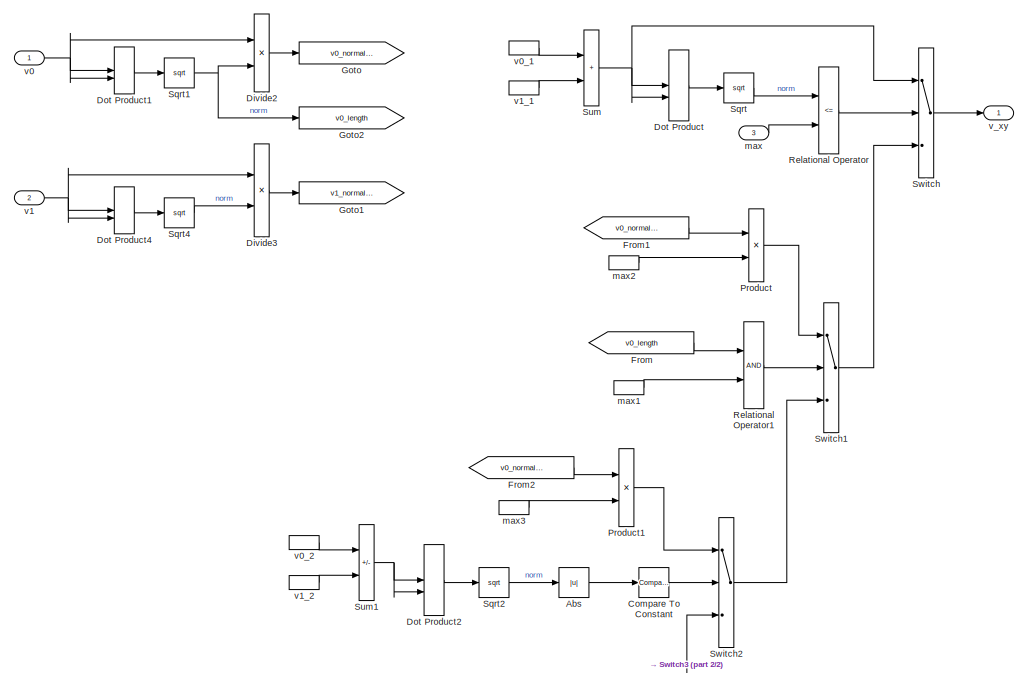
[diagram: Position Controller/Position Control/contrainXY1 - part 1/2, full width, top band]
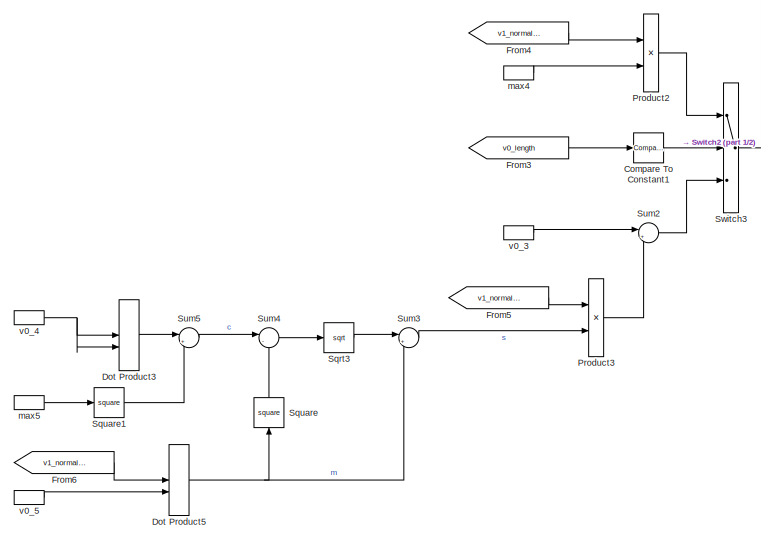
[diagram: Position Controller/Position Control/contrainXY1 - part 2/2, bottom center region]
BLOCK [SubSystem] Position Controller/Position Control/contrainXY1
  Commented = on
  Ports = [3, 1]
  RequestExecContextInheritance = off
BLOCK [Abs] Position Controller/Position Control/contrainXY1/Abs
  SaturateOnIntegerOverflow = off
BLOCK [Reference] Position Controller/Position Control/contrainXY1/Compare To Constant  REF=simulink/Logic and Bit
Operations/Compare
To Constant
  Ports = [1, 1]
  SourceBlock = simulink/Logic and Bit\nOperations/Compare\nTo Constant
  SourceProductBaseCode = SL
  SourceType = Compare To Constant
BLOCK [Reference] Position Controller/Position Control/contrainXY1/Compare To Constant1  REF=simulink/Logic and Bit
Operations/Compare
To Constant
  Ports = [1, 1]
  SourceBlock = simulink/Logic and Bit\nOperations/Compare\nTo Constant
  SourceProductBaseCode = SL
  SourceType = Compare To Constant
BLOCK [Product] Position Controller/Position Control/contrainXY1/Divide2
  Inputs = */
  Ports = [2, 1]
BLOCK [Product] Position Controller/Position Control/contrainXY1/Divide3
  Inputs = */
  Ports = [2, 1]
BLOCK [DotProduct] Position Controller/Position Control/contrainXY1/Dot Product
  OutDataTypeStr = Inherit: Inherit via internal rule
BLOCK [DotProduct] Position Controller/Position Control/contrainXY1/Dot Product1
  OutDataTypeStr = Inherit: Inherit via internal rule
BLOCK [DotProduct] Position Controller/Position Control/contrainXY1/Dot Product2
  OutDataTypeStr = Inherit: Inherit via internal rule
BLOCK [DotProduct] Position Controller/Position Control/contrainXY1/Dot Product3
  OutDataTypeStr = Inherit: Inherit via internal rule
BLOCK [DotProduct] Position Controller/Position Control/contrainXY1/Dot Product4
  OutDataTypeStr = Inherit: Inherit via internal rule
BLOCK [DotProduct] Position Controller/Position Control/contrainXY1/Dot Product5
  OutDataTypeStr = Inherit: Inherit via internal rule
BLOCK [From] Position Controller/Position Control/contrainXY1/From
  GotoTag = v0_length
BLOCK [From] Position Controller/Position Control/contrainXY1/From1
  GotoTag = v0_normalized
BLOCK [From] Position Controller/Position Control/contrainXY1/From2
  GotoTag = v0_normalized
BLOCK [From] Position Controller/Position Control/contrainXY1/From3
  GotoTag = v0_length
BLOCK [From] Position Controller/Position Control/contrainXY1/From4
  GotoTag = v1_normalized
BLOCK [From] Position Controller/Position Control/contrainXY1/From5
  GotoTag = v1_normalized
BLOCK [From] Position Controller/Position Control/contrainXY1/From6
  GotoTag = v1_normalized
BLOCK [Goto] Position Controller/Position Control/contrainXY1/Goto
  GotoTag = v0_normalized
BLOCK [Goto] Position Controller/Position Control/contrainXY1/Goto1
  GotoTag = v1_normalized
BLOCK [Goto] Position Controller/Position Control/contrainXY1/Goto2
  GotoTag = v0_length
BLOCK [Product] Position Controller/Position Control/contrainXY1/Product
  Ports = [2, 1]
BLOCK [Product] Position Controller/Position Control/contrainXY1/Product1
  Ports = [2, 1]
BLOCK [Product] Position Controller/Position Control/contrainXY1/Product2
  Ports = [2, 1]
BLOCK [Product] Position Controller/Position Control/contrainXY1/Product3
  Ports = [2, 1]
BLOCK [RelationalOperator] Position Controller/Position Control/contrainXY1/Relational Operator
  InputSameDT = off
  Operator = <=
  OutDataTypeStr = boolean
  Ports = [2, 1]
  RndMeth = Simplest
BLOCK [RelationalOperator] Position Controller/Position Control/contrainXY1/Relational Operator1
  InputSameDT = off
  OutDataTypeStr = boolean
  Ports = [2, 1]
  RndMeth = Simplest
BLOCK [Sqrt] Position Controller/Position Control/contrainXY1/Sqrt
BLOCK [Sqrt] Position Controller/Position Control/contrainXY1/Sqrt1
BLOCK [Sqrt] Position Controller/Position Control/contrainXY1/Sqrt2
BLOCK [Sqrt] Position Controller/Position Control/contrainXY1/Sqrt3
BLOCK [Sqrt] Position Controller/Position Control/contrainXY1/Sqrt4
BLOCK [Math] Position Controller/Position Control/contrainXY1/Square
  NameLocation = right
  Operator = square
  Ports = [1, 1]
BLOCK [Math] Position Controller/Position Control/contrainXY1/Square1
  Operator = square
  Ports = [1, 1]
BLOCK [Sum] Position Controller/Position Control/contrainXY1/Sum
  IconShape = rectangular
  Ports = [2, 1]
BLOCK [Sum] Position Controller/Position Control/contrainXY1/Sum1
  IconShape = rectangular
  Inputs = -+
  Ports = [2, 1]
BLOCK [Sum] Position Controller/Position Control/contrainXY1/Sum2
  Inputs = |++
  Ports = [2, 1]
BLOCK [Sum] Position Controller/Position Control/contrainXY1/Sum3
  Inputs = |+-
  Ports = [2, 1]
BLOCK [Sum] Position Controller/Position Control/contrainXY1/Sum4
  Inputs = |-+
  Ports = [2, 1]
BLOCK [Sum] Position Controller/Position Control/contrainXY1/Sum5
  Inputs = |+-
  Ports = [2, 1]
BLOCK [Switch] Position Controller/Position Control/contrainXY1/Switch
  Criteria = u2 ~= 0
  InputSameDT = off
  SaturateOnIntegerOverflow = off
BLOCK [Switch] Position Controller/Position Control/contrainXY1/Switch1
  Criteria = u2 ~= 0
  InputSameDT = off
  SaturateOnIntegerOverflow = off
BLOCK [Switch] Position Controller/Position Control/contrainXY1/Switch2
  Criteria = u2 ~= 0
  InputSameDT = off
  SaturateOnIntegerOverflow = off
BLOCK [Switch] Position Controller/Position Control/contrainXY1/Switch3
  Criteria = u2 ~= 0
  InputSameDT = off
  SaturateOnIntegerOverflow = off
BLOCK [Inport] Position Controller/Position Control/contrainXY1/max
  Port = 3
BLOCK [InportShadow] Position Controller/Position Control/contrainXY1/max1
  Port = 3
BLOCK [InportShadow] Position Controller/Position Control/contrainXY1/max2
  Port = 3
BLOCK [InportShadow] Position Controller/Position Control/contrainXY1/max3
  Port = 3
BLOCK [InportShadow] Position Controller/Position Control/contrainXY1/max4
  Port = 3
BLOCK [InportShadow] Position Controller/Position Control/contrainXY1/max5
  Port = 3
BLOCK [Inport] Position Controller/Position Control/contrainXY1/v0
BLOCK [InportShadow] Position Controller/Position Control/contrainXY1/v0_1
BLOCK [InportShadow] Position Controller/Position Control/contrainXY1/v0_2
BLOCK [InportShadow] Position Controller/Position Control/contrainXY1/v0_3
BLOCK [InportShadow] Position Controller/Position Control/contrainXY1/v0_4
BLOCK [InportShadow] Position Controller/Position Control/contrainXY1/v0_5
BLOCK [Inport] Position Controller/Position Control/contrainXY1/v1
  Port = 2
BLOCK [InportShadow] Position Controller/Position Control/contrainXY1/v1_1
  Port = 2
BLOCK [InportShadow] Position Controller/Position Control/contrainXY1/v1_2
  Port = 2
BLOCK [Outport] Position Controller/Position Control/contrainXY1/v_xy
BLOCK [Outport] Position Controller/Position Control/vel_sp
BLOCK [Selector] Position Controller/Selector6
  IndexOptions = Index vector (dialog)
  Indices = 3
  InputPortWidth = 3
  OutputSizes = 1
  Ports = [1, 1]
BLOCK [Selector] Position Controller/Selector7
  IndexOptions = Index vector (dialog)
  Indices = [1 2]
  InputPortWidth = 3
  OutputSizes = 1
  Ports = [1, 1]
BLOCK [Switch] Position Controller/Switch
  Criteria = u2 ~= 0
  InputSameDT = off
  SaturateOnIntegerOverflow = off
BLOCK [Switch] Position Controller/Switch1
  Criteria = u2 ~= 0
  InputSameDT = off
  SaturateOnIntegerOverflow = off
BLOCK [SubSystem] Position Controller/Velocity Control
  Ports = [6, 1]
  RequestExecContextInheritance = off
BLOCK [Inport] Position Controller/Velocity Control/Bus Element In
BLOCK [Inport] Position Controller/Velocity Control/Bus Element In1
BLOCK [Inport] Position Controller/Velocity Control/Bus Element In2
  Port = 4
BLOCK [Gain] Position Controller/Velocity Control/D
  AttributesFormatString = %<Gain>
  Gain = [MPC_XY_VEL_D_ACC; MPC_XY_VEL_D_ACC; MPC_Z_VEL_D_ACC]
BLOCK [Delay] Position Controller/Velocity Control/Delay One Step
  DelayLength = 1
  InputPortMap = u0
  Ports = [1, 1]
BLOCK [From] Position Controller/Velocity Control/From
  GotoTag = acc_sp
BLOCK [Goto] Position Controller/Velocity Control/Goto
  GotoTag = acc_sp
BLOCK [SubSystem] Position Controller/Velocity Control/I
  Ports = [5, 1]
  RequestExecContextInheritance = off
BLOCK [SubSystem] Position Controller/Velocity Control/I/Anti-Windup Calculate Velocity Error
  Ports = [4, 1]
  RequestExecContextInheritance = off
BLOCK [Logic] Position Controller/Velocity Control/I/Anti-Windup Calculate Velocity Error/AND
  AllPortsSameDT = off
  OutDataTypeStr = boolean
  Ports = [2, 1]
BLOCK [Logic] Position Controller/Velocity Control/I/Anti-Windup Calculate Velocity Error/AND1
  AllPortsSameDT = off
  OutDataTypeStr = boolean
  Ports = [2, 1]
BLOCK [Logic] Position Controller/Velocity Control/I/Anti-Windup Calculate Velocity Error/AND2
  AllPortsSameDT = off
  Operator = OR
  OutDataTypeStr = boolean
  Ports = [2, 1]
BLOCK [Inport] Position Controller/Velocity Control/I/Anti-Windup Calculate Velocity Error/Bus Element In
  Port = 4
BLOCK [Inport] Position Controller/Velocity Control/I/Anti-Windup Calculate Velocity Error/Bus Element In1
  Port = 4
BLOCK [Reference] Position Controller/Velocity Control/I/Anti-Windup Calculate Velocity Error/Compare To Zero  REF=simulink/Logic and Bit
Operations/Compare
To Zero
  Ports = [1, 1]
  SourceBlock = simulink/Logic and Bit\nOperations/Compare\nTo Zero
  SourceProductBaseCode = SL
  SourceType = Compare To Zero
BLOCK [Reference] Position Controller/Velocity Control/I/Anti-Windup Calculate Velocity Error/Compare To Zero1  REF=simulink/Logic and Bit
Operations/Compare
To Zero
  Ports = [1, 1]
  SourceBlock = simulink/Logic and Bit\nOperations/Compare\nTo Zero
  SourceProductBaseCode = SL
  SourceType = Compare To Zero
BLOCK [Constant] Position Controller/Velocity Control/I/Anti-Windup Calculate Velocity Error/Constant1
  OutDataTypeStr = single
  Value = 0
BLOCK [Constant] Position Controller/Velocity Control/I/Anti-Windup Calculate Velocity Error/Constant5
  OutDataTypeStr = single
  Value = MPC_THR_HOVER
BLOCK [Product] Position Controller/Velocity Control/I/Anti-Windup Calculate Velocity Error/Divide
  Inputs = */
  Ports = [2, 1]
BLOCK [Gain] Position Controller/Velocity Control/I/Anti-Windup Calculate Velocity Error/Gain
  AttributesFormatString = %<Gain>
  Gain = CONSTANTS_ONE_G
BLOCK [Gain] Position Controller/Velocity Control/I/Anti-Windup Calculate Velocity Error/Gain2
  AttributesFormatString = %<Gain>
  Gain = 2/MPC_XY_VEL_P_ACC
BLOCK [Mux] Position Controller/Velocity Control/I/Anti-Windup Calculate Velocity Error/Mux
  DisplayOption = bar
  Inputs = 2
  Ports = [2, 1]
BLOCK [RelationalOperator] Position Controller/Velocity Control/I/Anti-Windup Calculate Velocity Error/Relational Operator
  InputSameDT = off
  OutDataTypeStr = boolean
  Ports = [2, 1]
  RndMeth = Simplest
BLOCK [RelationalOperator] Position Controller/Velocity Control/I/Anti-Windup Calculate Velocity Error/Relational Operator1
  InputSameDT = off
  Operator = <=
  OutDataTypeStr = boolean
  Ports = [2, 1]
  RndMeth = Simplest
BLOCK [Saturate] Position Controller/Velocity Control/I/Anti-Windup Calculate Velocity Error/Saturation
  AttributesFormatString = [%<LowerLimit>, %<UpperLimit>]
  LowerLimit = 0.1
  UpperLimit = 0.9
BLOCK [Selector] Position Controller/Velocity Control/I/Anti-Windup Calculate Velocity Error/Selector
  IndexOptions = Index vector (dialog)
  Indices = 3
  InputPortWidth = 3
  OutputSizes = 1
  Ports = [1, 1]
BLOCK [Selector] Position Controller/Velocity Control/I/Anti-Windup Calculate Velocity Error/Selector1
  IndexOptions = Index vector (dialog)
  Indices = 3
  InputPortWidth = 3
  OutputSizes = 1
  Ports = [1, 1]
BLOCK [Selector] Position Controller/Velocity Control/I/Anti-Windup Calculate Velocity Error/Selector2
  IndexOptions = Index vector (dialog)
  Indices = 3
  InputPortWidth = 3
  OutputSizes = 1
  Ports = [1, 1]
BLOCK [Selector] Position Controller/Velocity Control/I/Anti-Windup Calculate Velocity Error/Selector3
  IndexOptions = Index vector (dialog)
  Indices = 3
  InputPortWidth = 3
  OutputSizes = 1
  Ports = [1, 1]
BLOCK [Selector] Position Controller/Velocity Control/I/Anti-Windup Calculate Velocity Error/Selector4
  IndexOptions = Index vector (dialog)
  Indices = [1 2]
  InputPortWidth = 3
  OutputSizes = 1
  Ports = [1, 1]
BLOCK [Selector] Position Controller/Velocity Control/I/Anti-Windup Calculate Velocity Error/Selector5
  IndexOptions = Index vector (dialog)
  Indices = [1 2]
  InputPortWidth = 3
  OutputSizes = 1
  Ports = [1, 1]
BLOCK [Selector] Position Controller/Velocity Control/I/Anti-Windup Calculate Velocity Error/Selector6
  IndexOptions = Index vector (dialog)
  Indices = [1 2]
  InputPortWidth = 3
  OutputSizes = 1
  Ports = [1, 1]
BLOCK [Sum] Position Controller/Velocity Control/I/Anti-Windup Calculate Velocity Error/Sum
  Inputs = |+-
  Ports = [2, 1]
BLOCK [Sum] Position Controller/Velocity Control/I/Anti-Windup Calculate Velocity Error/Sum1
  Inputs = |+-
  Ports = [2, 1]
BLOCK [Switch] Position Controller/Velocity Control/I/Anti-Windup Calculate Velocity Error/Switch
  Criteria = u2 ~= 0
  InputSameDT = off
  SaturateOnIntegerOverflow = off
BLOCK [UnaryMinus] Position Controller/Velocity Control/I/Anti-Windup Calculate Velocity Error/Unary Minus
BLOCK [UnaryMinus] Position Controller/Velocity Control/I/Anti-Windup Calculate Velocity Error/Unary Minus1
BLOCK [Inport] Position Controller/Velocity Control/I/Anti-Windup Calculate Velocity Error/acc_sp
  Port = 2
BLOCK [Inport] Position Controller/Velocity Control/I/Anti-Windup Calculate Velocity Error/last_thr_sp
  Port = 3
BLOCK [InportShadow] Position Controller/Velocity Control/I/Anti-Windup Calculate Velocity Error/last_thr_sp1
  Port = 3
BLOCK [InportShadow] Position Controller/Velocity Control/I/Anti-Windup Calculate Velocity Error/last_thr_sp2
  Port = 3
BLOCK [Inport] Position Controller/Velocity Control/I/Anti-Windup Calculate Velocity Error/vel_error
BLOCK [InportShadow] Position Controller/Velocity Control/I/Anti-Windup Calculate Velocity Error/vel_error1
BLOCK [InportShadow] Position Controller/Velocity Control/I/Anti-Windup Calculate Velocity Error/vel_error2
BLOCK [Outport] Position Controller/Velocity Control/I/Anti-Windup Calculate Velocity Error/vel_error_out
BLOCK [Inport] Position Controller/Velocity Control/I/Bus Element In
  Port = 4
BLOCK [Constant] Position Controller/Velocity Control/I/Constant
  OutDataTypeStr = single
  Value = [0 0 0]
BLOCK [DiscreteIntegrator] Position Controller/Velocity Control/I/Discrete-Time Integrator
  ExternalReset = level
  ICPrevOutput = DiscIntNeverNeededParam
  ICPrevScaledInput = DiscIntNeverNeededParam
  InitialConditionSetting = Auto
  LimitOutput = on
  LowerSaturationLimit = -[inf inf CONSTANTS_ONE_G]
  Ports = [2, 1]
  SampleTime = -1
  SaturateOnIntegerOverflow = on
  UpperSaturationLimit = [inf inf CONSTANTS_ONE_G]
BLOCK [Gain] Position Controller/Velocity Control/I/Gain
  AttributesFormatString = %<Gain>
  Gain = [MPC_XY_VEL_I_ACC; MPC_XY_VEL_I_ACC; MPC_Z_VEL_I_ACC]
BLOCK [Inport] Position Controller/Velocity Control/I/acc_sp
  Port = 2
BLOCK [SubSystem] Position Controller/Velocity Control/I/addIfNotNan
  Ports = [2, 1]
  RequestExecContextInheritance = off
BLOCK [Logic] Position Controller/Velocity Control/I/addIfNotNan/AND
  AllPortsSameDT = off
  OutDataTypeStr = boolean
  Ports = [2, 1]
BLOCK [RelationalOperator] Position Controller/Velocity Control/I/addIfNotNan/IsFinite
  InputSameDT = off
  Operator = isFinite
  OutDataTypeStr = boolean
  Ports = [1, 1]
  RndMeth = Simplest
BLOCK [RelationalOperator] Position Controller/Velocity Control/I/addIfNotNan/IsFinite1
  InputSameDT = off
  Operator = isFinite
  OutDataTypeStr = boolean
  Ports = [1, 1]
  RndMeth = Simplest
BLOCK [RelationalOperator] Position Controller/Velocity Control/I/addIfNotNan/IsFinite3
  InputSameDT = off
  Operator = isFinite
  OutDataTypeStr = boolean
  Ports = [1, 1]
  RndMeth = Simplest
BLOCK [Sum] Position Controller/Velocity Control/I/addIfNotNan/Sum
  Inputs = ++|
  Ports = [2, 1]
BLOCK [Switch] Position Controller/Velocity Control/I/addIfNotNan/Switch
  Criteria = u2 ~= 0
  InputSameDT = off
  SaturateOnIntegerOverflow = off
BLOCK [Switch] Position Controller/Velocity Control/I/addIfNotNan/Switch1
  Criteria = u2 ~= 0
  InputSameDT = off
  SaturateOnIntegerOverflow = off
BLOCK [Inport] Position Controller/Velocity Control/I/addIfNotNan/addition
  Port = 2
BLOCK [InportShadow] Position Controller/Velocity Control/I/addIfNotNan/addition1
  Port = 2
BLOCK [InportShadow] Position Controller/Velocity Control/I/addIfNotNan/addition2
  Port = 2
BLOCK [Inport] Position Controller/Velocity Control/I/addIfNotNan/setpoint
BLOCK [InportShadow] Position Controller/Velocity Control/I/addIfNotNan/setpoint1
BLOCK [InportShadow] Position Controller/Velocity Control/I/addIfNotNan/setpoint2
BLOCK [Outport] Position Controller/Velocity Control/I/addIfNotNan/sp_out
BLOCK [Inport] Position Controller/Velocity Control/I/last_thr_sp
  Port = 3
BLOCK [Inport] Position Controller/Velocity Control/I/reset
  Port = 5
BLOCK [Inport] Position Controller/Velocity Control/I/vel_error
BLOCK [Outport] Position Controller/Velocity Control/I/vel_init
BLOCK [Gain] Position Controller/Velocity Control/P
  AttributesFormatString = %<Gain>
  Gain = [MPC_XY_VEL_P_ACC; MPC_XY_VEL_P_ACC; MPC_Z_VEL_P_ACC]
BLOCK [Sum] Position Controller/Velocity Control/Sum
  Inputs = |+-
  Ports = [2, 1]
BLOCK [Sum] Position Controller/Velocity Control/Sum1
  Inputs = ++-
  Ports = [3, 1]
BLOCK [Inport] Position Controller/Velocity Control/acc_sp
  Port = 3
BLOCK [Outport] Position Controller/Velocity Control/acc_sp_out
BLOCK [SubSystem] Position Controller/Velocity Control/addIfNotNan
  Ports = [2, 1]
  RequestExecContextInheritance = off
BLOCK [Logic] Position Controller/Velocity Control/addIfNotNan/AND
  AllPortsSameDT = off
  OutDataTypeStr = boolean
  Ports = [2, 1]
BLOCK [RelationalOperator] Position Controller/Velocity Control/addIfNotNan/IsFinite
  InputSameDT = off
  Operator = isFinite
  OutDataTypeStr = boolean
  Ports = [1, 1]
  RndMeth = Simplest
BLOCK [RelationalOperator] Position Controller/Velocity Control/addIfNotNan/IsFinite1
  InputSameDT = off
  Operator = isFinite
  OutDataTypeStr = boolean
  Ports = [1, 1]
  RndMeth = Simplest
BLOCK [RelationalOperator] Position Controller/Velocity Control/addIfNotNan/IsFinite3
  InputSameDT = off
  Operator = isFinite
  OutDataTypeStr = boolean
  Ports = [1, 1]
  RndMeth = Simplest
BLOCK [Sum] Position Controller/Velocity Control/addIfNotNan/Sum
  Inputs = ++|
  Ports = [2, 1]
BLOCK [Switch] Position Controller/Velocity Control/addIfNotNan/Switch
  Criteria = u2 ~= 0
  InputSameDT = off
  SaturateOnIntegerOverflow = off
BLOCK [Switch] Position Controller/Velocity Control/addIfNotNan/Switch1
  Criteria = u2 ~= 0
  InputSameDT = off
  SaturateOnIntegerOverflow = off
BLOCK [Inport] Position Controller/Velocity Control/addIfNotNan/addition
  Port = 2
BLOCK [InportShadow] Position Controller/Velocity Control/addIfNotNan/addition1
  Port = 2
BLOCK [InportShadow] Position Controller/Velocity Control/addIfNotNan/addition2
  Port = 2
BLOCK [Inport] Position Controller/Velocity Control/addIfNotNan/setpoint
BLOCK [InportShadow] Position Controller/Velocity Control/addIfNotNan/setpoint1
BLOCK [InportShadow] Position Controller/Velocity Control/addIfNotNan/setpoint2
BLOCK [Outport] Position Controller/Velocity Control/addIfNotNan/sp_out
BLOCK [Inport] Position Controller/Velocity Control/last_thr_sp
  Port = 6
BLOCK [Inport] Position Controller/Velocity Control/reset
  Port = 5
BLOCK [Inport] Position Controller/Velocity Control/vel_sp
  Port = 2
BLOCK [Outport] Position Controller/limit
  Port = 2
BLOCK [SubSystem] Position Controller/limitation
  Ports = [2, 1]
  RequestExecContextInheritance = off
BLOCK [Constant] Position Controller/limitation/Constant
  OutDataTypeStr = single
  Value = 0
BLOCK [Product] Position Controller/limitation/Divide
  Inputs = */*
  Ports = [3, 1]
BLOCK [DotProduct] Position Controller/limitation/Dot Product1
  OutDataTypeStr = Inherit: Inherit via internal rule
BLOCK [From] Position Controller/limitation/From
  GotoTag = thrust_max_xy
BLOCK [From] Position Controller/limitation/From2
  GotoTag = thr_sp_xy
BLOCK [From] Position Controller/limitation/From3
  GotoTag = thr_sp_z
BLOCK [From] Position Controller/limitation/From4
  GotoTag = thr_sp_z
BLOCK [Goto] Position Controller/limitation/Goto
  GotoTag = thr_sp_z
BLOCK [Goto] Position Controller/limitation/Goto1
  GotoTag = thrust_max_xy
BLOCK [Goto] Position Controller/limitation/Goto2
  GotoTag = thr_sp_xy
BLOCK [Math] Position Controller/limitation/Math Function
  Operator = square
  Ports = [1, 1]
BLOCK [Math] Position Controller/limitation/Math Function1
  Operator = square
  Ports = [1, 1]
BLOCK [MinMax] Position Controller/limitation/Max
  Function = max
  Inputs = 2
  Ports = [2, 1]
BLOCK [Mux] Position Controller/limitation/Mux
  DisplayOption = bar
  Inputs = 2
  Ports = [2, 1]
BLOCK [Saturate] Position Controller/limitation/Saturation
  AttributesFormatString = [%<LowerLimit>, %<UpperLimit>]
  LowerLimit = 0
  UpperLimit = inf
BLOCK [Reference] Position Controller/limitation/Saturation Dynamic  REF=simulink/Discontinuities/Saturation
Dynamic
  Ports = [3, 1]
  SourceBlock = simulink/Discontinuities/Saturation\nDynamic
  SourceProductBaseCode = SL
  SourceType = Saturation Dynamic
BLOCK [Selector] Position Controller/limitation/Selector
  IndexOptions = Index vector (dialog)
  Indices = [1 2]
  InputPortWidth = 3
  OutputSizes = 1
  Ports = [1, 1]
BLOCK [Selector] Position Controller/limitation/Selector1
  IndexOptions = Index vector (dialog)
  Indices = 3
  InputPortWidth = 3
  OutputSizes = 1
  Ports = [1, 1]
BLOCK [Sqrt] Position Controller/limitation/Sqrt
BLOCK [Sqrt] Position Controller/limitation/Sqrt1
BLOCK [Sum] Position Controller/limitation/Sum
  Inputs = |+-
  Ports = [2, 1]
BLOCK [UnaryMinus] Position Controller/limitation/Unary Minus
BLOCK [Inport] Position Controller/limitation/lim_thr_max
  Port = 2
BLOCK [Inport] Position Controller/limitation/thr_sp
BLOCK [InportShadow] Position Controller/limitation/thr_sp1
BLOCK [Outport] Position Controller/limitation/thr_sp_out
BLOCK [Outport] Position Controller/loc_pos_sp
BLOCK [Outport] Position Controller/takeoff_state
  Port = 3
BLOCK [Inport] Position Controller/takeoff_state_in
  Port = 5
BLOCK [SubSystem] Position Controller/updateSuccessful
  Commented = on
  Ports = [1]
  RequestExecContextInheritance = off
BLOCK [Logic] Position Controller/updateSuccessful/AND
  AllPortsSameDT = off
  Inputs = 3
  OutDataTypeStr = boolean
  Ports = [3, 1]
BLOCK [Inport] Position Controller/updateSuccessful/Bus Element In
BLOCK [Inport] Position Controller/updateSuccessful/Bus Element In1
BLOCK [Inport] Position Controller/updateSuccessful/Bus Element In2
BLOCK [Goto] Position Controller/updateSuccessful/Goto
  GotoTag = valid
BLOCK [RelationalOperator] Position Controller/updateSuccessful/Relational Operator
  InputSameDT = off
  Operator = ==
  OutDataTypeStr = boolean
  Ports = [2, 1]
  RndMeth = Simplest
BLOCK [RelationalOperator] Position Controller/updateSuccessful/Relational Operator1
  InputSameDT = off
  Operator = ==
  OutDataTypeStr = boolean
  Ports = [2, 1]
  RndMeth = Simplest
BLOCK [RelationalOperator] Position Controller/updateSuccessful/Relational Operator2
  InputSameDT = off
  Operator = ==
  OutDataTypeStr = boolean
  Ports = [2, 1]
  RndMeth = Simplest
BLOCK [Selector] Position Controller/updateSuccessful/Selector
  IndexOptions = Index vector (dialog)
  Indices = 1
  InputPortWidth = 3
  OutputSizes = 1
  Ports = [1, 1]
BLOCK [Selector] Position Controller/updateSuccessful/Selector1
  IndexOptions = Index vector (dialog)
  Indices = 2
  InputPortWidth = 3
  OutputSizes = 1
  Ports = [1, 1]
BLOCK [Selector] Position Controller/updateSuccessful/Selector2
  IndexOptions = Index vector (dialog)
  Indices = 1
  InputPortWidth = 3
  OutputSizes = 1
  Ports = [1, 1]
BLOCK [Selector] Position Controller/updateSuccessful/Selector3
  IndexOptions = Index vector (dialog)
  Indices = 2
  InputPortWidth = 3
  OutputSizes = 1
  Ports = [1, 1]
BLOCK [Selector] Position Controller/updateSuccessful/Selector4
  IndexOptions = Index vector (dialog)
  Indices = 1
  InputPortWidth = 3
  OutputSizes = 1
  Ports = [1, 1]
BLOCK [Selector] Position Controller/updateSuccessful/Selector5
  IndexOptions = Index vector (dialog)
  Indices = 2
  InputPortWidth = 3
  OutputSizes = 1
  Ports = [1, 1]
BLOCK [Inport] Position Controller/vel_int_reset
  Port = 3
BLOCK [SubSystem] Update States
  Ports = [2, 1]
  RequestExecContextInheritance = off
BLOCK [Logic] Update States/AND
  AllPortsSameDT = off
  Inputs = 6
  OutDataTypeStr = boolean
  Ports = [6, 1]
BLOCK [Abs] Update States/Abs
  SaturateOnIntegerOverflow = off
BLOCK [BusCreator] Update States/Bus Creator
  DisplayOption = bar
  InheritFromInputs = on
  Inputs = 4
  Ports = [4, 1]
BLOCK [Inport] Update States/Bus Element In1
  Port = 2
BLOCK [Inport] Update States/Bus Element In12
BLOCK [Inport] Update States/Bus Element In13
BLOCK [Inport] Update States/Bus Element In14
BLOCK [Inport] Update States/Bus Element In15
BLOCK [Inport] Update States/Bus Element In16
BLOCK [Inport] Update States/Bus Element In17
BLOCK [Inport] Update States/Bus Element In18
BLOCK [Inport] Update States/Bus Element In2
BLOCK [Inport] Update States/Bus Element In20
BLOCK [Inport] Update States/Bus Element In21
BLOCK [Inport] Update States/Bus Element In3
  Port = 2
BLOCK [Inport] Update States/Bus Element In4
BLOCK [Inport] Update States/Bus Element In5
BLOCK [Inport] Update States/Bus Element In7
BLOCK [Inport] Update States/Bus Element In8
BLOCK [Inport] Update States/Bus Element In9
BLOCK [Reference] Update States/Compare To Constant  REF=simulink/Logic and Bit
Operations/Compare
To Constant
  AttributesFormatString = %<relop> %<const>
  Ports = [1, 1]
  SourceBlock = simulink/Logic and Bit\nOperations/Compare\nTo Constant
  SourceProductBaseCode = SL
  SourceType = Compare To Constant
BLOCK [Constant] Update States/Constant1
  OutDataTypeStr = single
BLOCK [Reference] Update States/Discrete Derivative  REF=simulink/Discrete/Discrete Derivative
  Ports = [1, 1]
  SourceBlock = simulink/Discrete/Discrete Derivative
  SourceProductBaseCode = SL
  SourceType = Discrete Derivative
BLOCK [Gain] Update States/Gain
  AttributesFormatString = %<Gain>
  Gain = 1/MPC_LAND_SPEED
BLOCK [RelationalOperator] Update States/IsFinite1
  InputSameDT = off
  Operator = isFinite
  OutDataTypeStr = boolean
  Ports = [1, 1]
  RndMeth = Simplest
BLOCK [RelationalOperator] Update States/IsFinite2
  InputSameDT = off
  Operator = isFinite
  OutDataTypeStr = boolean
  Ports = [1, 1]
  RndMeth = Simplest
BLOCK [RelationalOperator] Update States/IsFinite3
  InputSameDT = off
  Operator = isFinite
  OutDataTypeStr = boolean
  Ports = [1, 1]
  RndMeth = Simplest
BLOCK [Logic] Update States/Logical Operator
  AllPortsSameDT = off
  Operator = NOT
  OutDataTypeStr = boolean
  Ports = [1, 1]
BLOCK [MinMax] Update States/Min
  Inputs = 2
  Ports = [2, 1]
BLOCK [Mux] Update States/Mux1
  DisplayOption = bar
  Inputs = 3
  Ports = [3, 1]
BLOCK [Mux] Update States/Mux2
  DisplayOption = bar
  Inputs = 3
  Ports = [3, 1]
BLOCK [Mux] Update States/Mux3
  DisplayOption = bar
  Inputs = 3
  Ports = [3, 1]
BLOCK [Product] Update States/Product
  Ports = [2, 1]
BLOCK [Product] Update States/Product1
  Ports = [2, 1]
BLOCK [Sum] Update States/Sum
  Inputs = ++|
  Ports = [2, 1]
BLOCK [Sum] Update States/Sum1
  Inputs = |+-
  Ports = [2, 1]
BLOCK [Switch] Update States/Switch
  Criteria = u2 ~= 0
  InputSameDT = off
  SaturateOnIntegerOverflow = off
BLOCK [SubSystem] Update States/lowpass filter
  Ports = [1, 1]
  RequestExecContextInheritance = off
BLOCK [Constant] Update States/lowpass filter/Constant
  OutDataTypeStr = single
BLOCK [Constant] Update States/lowpass filter/Constant3
  OutDataTypeStr = single
  Value = MPC_VELD_LP
BLOCK [Constant] Update States/lowpass filter/Constant4
  OutDataTypeStr = single
BLOCK [Constant] Update States/lowpass filter/Constant5
  OutDataTypeStr = single
BLOCK [Delay] Update States/lowpass filter/Delay One Step
  DelayLength = 1
  InputPortMap = u0
  NameLocation = top
  Ports = [1, 1]
BLOCK [Product] Update States/lowpass filter/Divide
  Inputs = */
  Ports = [2, 1]
BLOCK [Gain] Update States/lowpass filter/Gain
  Gain = 2*pi
BLOCK [Product] Update States/lowpass filter/Product
  Ports = [2, 1]
BLOCK [Product] Update States/lowpass filter/Product1
  NameLocation = right
  Ports = [2, 1]
BLOCK [Product] Update States/lowpass filter/Product2
  Ports = [2, 1]
BLOCK [Sum] Update States/lowpass filter/Sum
  Inputs = ++|
  Ports = [2, 1]
BLOCK [Sum] Update States/lowpass filter/Sum1
  IconShape = rectangular
  Inputs = +-
  Ports = [2, 1]
BLOCK [Sum] Update States/lowpass filter/Sum2
  Inputs = ++|
  Ports = [2, 1]
BLOCK [SampleTimeMath] Update States/lowpass filter/Weighted Sample Time
  TsampMathOp = Ts Only
BLOCK [Inport] Update States/lowpass filter/input
BLOCK [Outport] Update States/lowpass filter/state
BLOCK [Outport] Update States/states
BLOCK [Outport] att_sp
  BusOutputAsStruct = on
  OutDataTypeStr = Bus: px4_vehicle_attitude_setpoint
  Port = 2
BLOCK [Inport] attitude_setpoint
  OutDataTypeStr = Bus: px4_vehicle_attitude_setpoint
  Port = 3
BLOCK [Inport] control_mode
  OutDataTypeStr = Bus: px4_vehicle_control_mode
  Port = 2
BLOCK [InportShadow] control_mode1
  OutDataTypeStr = Bus: px4_vehicle_control_mode
  Port = 2
BLOCK [Inport] home_position
  OutDataTypeStr = Bus: px4_home_position
  Port = 5
BLOCK [Inport] land_detected
  OutDataTypeStr = Bus: px4_vehicle_land_detected
  Port = 10
BLOCK [InportShadow] land_detected1
  OutDataTypeStr = Bus: px4_vehicle_land_detected
  Port = 10
BLOCK [Outport] loc_pos_sp
  BusOutputAsStruct = on
  OutDataTypeStr = Bus: px4_vehicle_local_position_setpoint
BLOCK [Inport] local_pos
  OutDataTypeStr = Bus: px4_vehicle_local_position
BLOCK [InportShadow] local_pos2
  OutDataTypeStr = Bus: px4_vehicle_local_position
BLOCK [Inport] manual_control_setpoint
  OutDataTypeStr = Bus: px4_manual_control_setpoint
  Port = 7
BLOCK [Inport] position_setpoint
  OutDataTypeStr = Bus: px4_vehicle_local_position_setpoint
  Port = 4
BLOCK [Inport] position_setpoint_triplet
  OutDataTypeStr = Bus: px4_position_setpoint_triplet
  Port = 6
BLOCK [Outport] takeoff_status
  BusOutputAsStruct = on
  OutDataTypeStr = Bus: px4_takeoff_status
  Port = 3
BLOCK [Inport] takeoff_status_in
  OutDataTypeStr = Bus: px4_takeoff_status
  Port = 9
BLOCK [Inport] vehicle_command
  OutDataTypeStr = Bus: px4_vehicle_command
  Port = 11
BLOCK [Inport] vehicle_status
  OutDataTypeStr = Bus: px4_vehicle_status
  Port = 8
ANNOTATION Flight Mode Manager/Output: Limit Altitude
ANNOTATION Flight Mode Manager/Output/Adjust EKF Deltas: adjust existing (or older) setpoint with any EKF reset deltas
ANNOTATION Position Controller/Position Control: P Controller
ANNOTATION Update States: Change vel_z
ANNOTATION Update States/lowpass filter: lowpass filter
LINE Constant2:1 -> Handle Smooth Takeoff:4
LINE Flight Mode Manager/Bus Element In1:1 -> Flight Mode Manager/Output:10
LINE Flight Mode Manager/Bus Element In:1 -> Flight Mode Manager/Flight Task:9
LINE Flight Mode Manager/Flight Task:1 -> Flight Mode Manager/constraints:1
LINE Flight Mode Manager/Flight Task:2 -> Flight Mode Manager/Output:1
LINE Flight Mode Manager/Flight Task:3 -> Flight Mode Manager/Output:2
LINE Flight Mode Manager/Flight Task:4 -> Flight Mode Manager/Output:3
LINE Flight Mode Manager/Flight Task:5 -> Flight Mode Manager/Output:4
LINE Flight Mode Manager/Flight Task:6 -> Flight Mode Manager/Output:5
LINE Flight Mode Manager/Flight Task:7 -> Flight Mode Manager/Output:6
LINE Flight Mode Manager/Output/Adjust EKF Deltas/AND1:1 -> Flight Mode Manager/Output/Adjust EKF Deltas/Switch2:2
LINE Flight Mode Manager/Output/Adjust EKF Deltas/AND2:1 -> Flight Mode Manager/Output/Adjust EKF Deltas/Switch3:2
LINE Flight Mode Manager/Output/Adjust EKF Deltas/AND3:1 -> Flight Mode Manager/Output/Adjust EKF Deltas/Switch4:2
LINE Flight Mode Manager/Output/Adjust EKF Deltas/AND4:1 -> Flight Mode Manager/Output/Adjust EKF Deltas/Switch5:2
LINE Flight Mode Manager/Output/Adjust EKF Deltas/AND:1 -> Flight Mode Manager/Output/Adjust EKF Deltas/Switch1:2
LINE Flight Mode Manager/Output/Adjust EKF Deltas/Bus Creator:1 -> Flight Mode Manager/Output/Adjust EKF Deltas/setpoint:1
LINE Flight Mode Manager/Output/Adjust EKF Deltas/Bus Element In10:1 -> Flight Mode Manager/Output/Adjust EKF Deltas/Switch3:1
LINE Flight Mode Manager/Output/Adjust EKF Deltas/Bus Element In11:1 -> Flight Mode Manager/Output/Adjust EKF Deltas/Mux1:1
LINE Flight Mode Manager/Output/Adjust EKF Deltas/Bus Element In12:1 -> Flight Mode Manager/Output/Adjust EKF Deltas/Mux1:2
LINE Flight Mode Manager/Output/Adjust EKF Deltas/Bus Element In13:1 -> Flight Mode Manager/Output/Adjust EKF Deltas/Detect Change3:1
LINE Flight Mode Manager/Output/Adjust EKF Deltas/Bus Element In14:1 -> Flight Mode Manager/Output/Adjust EKF Deltas/Switch4:1
LINE Flight Mode Manager/Output/Adjust EKF Deltas/Bus Element In15:1 -> Flight Mode Manager/Output/Adjust EKF Deltas/Sum3:1
LINE Flight Mode Manager/Output/Adjust EKF Deltas/Bus Element In16:1 -> Flight Mode Manager/Output/Adjust EKF Deltas/Detect Change4:1
LINE Flight Mode Manager/Output/Adjust EKF Deltas/Bus Element In17:1 -> Flight Mode Manager/Output/Adjust EKF Deltas/Switch5:1
LINE Flight Mode Manager/Output/Adjust EKF Deltas/Bus Element In18:1 -> Flight Mode Manager/Output/Adjust EKF Deltas/Sum4:1
LINE Flight Mode Manager/Output/Adjust EKF Deltas/Bus Element In19:1 -> Flight Mode Manager/Output/Adjust EKF Deltas/Bus Creator:10
LINE Flight Mode Manager/Output/Adjust EKF Deltas/Bus Element In1:1 -> Flight Mode Manager/Output/Adjust EKF Deltas/Relational Operator:2
LINE Flight Mode Manager/Output/Adjust EKF Deltas/Bus Element In20:1 -> Flight Mode Manager/Output/Adjust EKF Deltas/Bus Creator:6
LINE Flight Mode Manager/Output/Adjust EKF Deltas/Bus Element In21:1 -> Flight Mode Manager/Output/Adjust EKF Deltas/Bus Creator:1
LINE Flight Mode Manager/Output/Adjust EKF Deltas/Bus Element In22:1 -> Flight Mode Manager/Output/Adjust EKF Deltas/Bus Creator:11
LINE Flight Mode Manager/Output/Adjust EKF Deltas/Bus Element In23:1 -> Flight Mode Manager/Output/Adjust EKF Deltas/Bus Creator:12
LINE Flight Mode Manager/Output/Adjust EKF Deltas/Bus Element In2:1 -> Flight Mode Manager/Output/Adjust EKF Deltas/Detect Change:1
LINE Flight Mode Manager/Output/Adjust EKF Deltas/Bus Element In3:1 -> Flight Mode Manager/Output/Adjust EKF Deltas/Mux:1
LINE Flight Mode Manager/Output/Adjust EKF Deltas/Bus Element In4:1 -> Flight Mode Manager/Output/Adjust EKF Deltas/Mux:2
LINE Flight Mode Manager/Output/Adjust EKF Deltas/Bus Element In5:1 -> Flight Mode Manager/Output/Adjust EKF Deltas/Detect Change1:1
LINE Flight Mode Manager/Output/Adjust EKF Deltas/Bus Element In6:1 -> Flight Mode Manager/Output/Adjust EKF Deltas/Switch2:1
LINE Flight Mode Manager/Output/Adjust EKF Deltas/Bus Element In7:1 -> Flight Mode Manager/Output/Adjust EKF Deltas/Switch1:1
LINE Flight Mode Manager/Output/Adjust EKF Deltas/Bus Element In8:1 -> Flight Mode Manager/Output/Adjust EKF Deltas/Sum1:1
LINE Flight Mode Manager/Output/Adjust EKF Deltas/Bus Element In9:1 -> Flight Mode Manager/Output/Adjust EKF Deltas/Detect Change2:1
LINE Flight Mode Manager/Output/Adjust EKF Deltas/Bus Element In:1 -> Flight Mode Manager/Output/Adjust EKF Deltas/Relational Operator:1
LINE Flight Mode Manager/Output/Adjust EKF Deltas/Constant1:1 -> Flight Mode Manager/Output/Adjust EKF Deltas/Switch2:3
LINE Flight Mode Manager/Output/Adjust EKF Deltas/Constant2:1 -> Flight Mode Manager/Output/Adjust EKF Deltas/Switch3:3
LINE Flight Mode Manager/Output/Adjust EKF Deltas/Constant3:1 -> Flight Mode Manager/Output/Adjust EKF Deltas/Switch4:3
LINE Flight Mode Manager/Output/Adjust EKF Deltas/Constant4:1 -> Flight Mode Manager/Output/Adjust EKF Deltas/Switch5:3
LINE Flight Mode Manager/Output/Adjust EKF Deltas/Constant:1 -> Flight Mode Manager/Output/Adjust EKF Deltas/Switch1:3
LINE Flight Mode Manager/Output/Adjust EKF Deltas/Detect Change1:1 -> Flight Mode Manager/Output/Adjust EKF Deltas/AND1:1
LINE Flight Mode Manager/Output/Adjust EKF Deltas/Detect Change2:1 -> Flight Mode Manager/Output/Adjust EKF Deltas/AND2:1
LINE Flight Mode Manager/Output/Adjust EKF Deltas/Detect Change3:1 -> Flight Mode Manager/Output/Adjust EKF Deltas/AND3:1
LINE Flight Mode Manager/Output/Adjust EKF Deltas/Detect Change4:1 -> Flight Mode Manager/Output/Adjust EKF Deltas/AND4:1
LINE Flight Mode Manager/Output/Adjust EKF Deltas/Detect Change:1 -> Flight Mode Manager/Output/Adjust EKF Deltas/AND:1
LINE Flight Mode Manager/Output/Adjust EKF Deltas/From1:1 -> Flight Mode Manager/Output/Adjust EKF Deltas/AND1:2
LINE Flight Mode Manager/Output/Adjust EKF Deltas/From2:1 -> Flight Mode Manager/Output/Adjust EKF Deltas/AND2:2
LINE Flight Mode Manager/Output/Adjust EKF Deltas/From3:1 -> Flight Mode Manager/Output/Adjust EKF Deltas/AND3:2
LINE Flight Mode Manager/Output/Adjust EKF Deltas/From4:1 -> Flight Mode Manager/Output/Adjust EKF Deltas/AND4:2
NET Flight Mode Manager/Output/Adjust EKF Deltas/From5:1 -> Flight Mode Manager/Output/Adjust EKF Deltas/Selector1:1, Flight Mode Manager/Output/Adjust EKF Deltas/Selector:1
LINE Flight Mode Manager/Output/Adjust EKF Deltas/From6:1 -> Flight Mode Manager/Output/Adjust EKF Deltas/Bus Creator:4
NET Flight Mode Manager/Output/Adjust EKF Deltas/From7:1 -> Flight Mode Manager/Output/Adjust EKF Deltas/Selector2:1, Flight Mode Manager/Output/Adjust EKF Deltas/Selector3:1
LINE Flight Mode Manager/Output/Adjust EKF Deltas/From8:1 -> Flight Mode Manager/Output/Adjust EKF Deltas/Bus Creator:9
LINE Flight Mode Manager/Output/Adjust EKF Deltas/From9:1 -> Flight Mode Manager/Output/Adjust EKF Deltas/Bus Creator:5
LINE Flight Mode Manager/Output/Adjust EKF Deltas/From:1 -> Flight Mode Manager/Output/Adjust EKF Deltas/AND:2
LINE Flight Mode Manager/Output/Adjust EKF Deltas/Mux1:1 -> Flight Mode Manager/Output/Adjust EKF Deltas/Sum2:1
LINE Flight Mode Manager/Output/Adjust EKF Deltas/Mux:1 -> Flight Mode Manager/Output/Adjust EKF Deltas/Sum:1
LINE Flight Mode Manager/Output/Adjust EKF Deltas/Relational Operator:1 -> Flight Mode Manager/Output/Adjust EKF Deltas/Goto:1
LINE Flight Mode Manager/Output/Adjust EKF Deltas/Selector1:1 -> Flight Mode Manager/Output/Adjust EKF Deltas/Bus Creator:3
LINE Flight Mode Manager/Output/Adjust EKF Deltas/Selector2:1 -> Flight Mode Manager/Output/Adjust EKF Deltas/Bus Creator:7
LINE Flight Mode Manager/Output/Adjust EKF Deltas/Selector3:1 -> Flight Mode Manager/Output/Adjust EKF Deltas/Bus Creator:8
LINE Flight Mode Manager/Output/Adjust EKF Deltas/Selector:1 -> Flight Mode Manager/Output/Adjust EKF Deltas/Bus Creator:2
LINE Flight Mode Manager/Output/Adjust EKF Deltas/Sum1:1 -> Flight Mode Manager/Output/Adjust EKF Deltas/Goto2:1
LINE Flight Mode Manager/Output/Adjust EKF Deltas/Sum2:1 -> Flight Mode Manager/Output/Adjust EKF Deltas/Goto3:1
LINE Flight Mode Manager/Output/Adjust EKF Deltas/Sum3:1 -> Flight Mode Manager/Output/Adjust EKF Deltas/Goto4:1
LINE Flight Mode Manager/Output/Adjust EKF Deltas/Sum4:1 -> Flight Mode Manager/Output/Adjust EKF Deltas/Goto5:1
LINE Flight Mode Manager/Output/Adjust EKF Deltas/Sum:1 -> Flight Mode Manager/Output/Adjust EKF Deltas/Goto1:1
LINE Flight Mode Manager/Output/Adjust EKF Deltas/Switch1:1 -> Flight Mode Manager/Output/Adjust EKF Deltas/Sum:2
LINE Flight Mode Manager/Output/Adjust EKF Deltas/Switch2:1 -> Flight Mode Manager/Output/Adjust EKF Deltas/Sum1:2
LINE Flight Mode Manager/Output/Adjust EKF Deltas/Switch3:1 -> Flight Mode Manager/Output/Adjust EKF Deltas/Sum2:2
LINE Flight Mode Manager/Output/Adjust EKF Deltas/Switch4:1 -> Flight Mode Manager/Output/Adjust EKF Deltas/Sum3:2
LINE Flight Mode Manager/Output/Adjust EKF Deltas/Switch5:1 -> Flight Mode Manager/Output/Adjust EKF Deltas/Sum4:2
LINE Flight Mode Manager/Output/Adjust EKF Deltas:1 -> Flight Mode Manager/Output/setpoint:1
LINE Flight Mode Manager/Output/Bus Creator:1 -> Flight Mode Manager/Output/Adjust EKF Deltas:2
LINE Flight Mode Manager/Output/Bus Element In1:1 -> Flight Mode Manager/Output/Compare To Zero:1
LINE Flight Mode Manager/Output/Bus Element In2:1 -> Flight Mode Manager/Output/NOT1:1
LINE Flight Mode Manager/Output/Bus Element In3:1 -> Flight Mode Manager/Output/NOT2:1
LINE Flight Mode Manager/Output/Bus Element In4:1 -> Flight Mode Manager/Output/Sum:1
LINE Flight Mode Manager/Output/Bus Element In5:1 -> Flight Mode Manager/Output/Sum:2
LINE Flight Mode Manager/Output/Bus Element In6:1 -> Flight Mode Manager/Output/Relational Operator:1
LINE Flight Mode Manager/Output/Bus Element In7:1 -> Flight Mode Manager/Output/Adjust EKF Deltas:1
LINE Flight Mode Manager/Output/Bus Element In:1 -> Flight Mode Manager/Output/NOT:1
LINE Flight Mode Manager/Output/Clock:1 -> Flight Mode Manager/Output/Gain:1
LINE Flight Mode Manager/Output/Compare To Constant:1 -> Flight Mode Manager/Output/OR1:1
LINE Flight Mode Manager/Output/Compare To Zero:1 -> Flight Mode Manager/Output/OR:1
NET Flight Mode Manager/Output/Constant1:1 -> Flight Mode Manager/Output/Mux2:1, Flight Mode Manager/Output/Mux2:2, Flight Mode Manager/Output/Mux2:3
LINE Flight Mode Manager/Output/Demux:1 -> Flight Mode Manager/Output/Goto3:1
LINE Flight Mode Manager/Output/Demux:2 -> Flight Mode Manager/Output/Goto4:1
LINE Flight Mode Manager/Output/From1:1 -> Flight Mode Manager/Output/Saturation:1
LINE Flight Mode Manager/Output/From2:1 -> Flight Mode Manager/Output/Relational Operator:2
LINE Flight Mode Manager/Output/From3:1 -> Flight Mode Manager/Output/Mux1:2
LINE Flight Mode Manager/Output/From4:1 -> Flight Mode Manager/Output/Bus Creator:9
LINE Flight Mode Manager/Output/From6:1 -> Flight Mode Manager/Output/Bus Creator:4
LINE Flight Mode Manager/Output/From:1 -> Flight Mode Manager/Output/Mux:1
LINE Flight Mode Manager/Output/Gain:1 -> Flight Mode Manager/Output/Bus Creator:1
LINE Flight Mode Manager/Output/Mux1:1 -> Flight Mode Manager/Output/Switch:3
LINE Flight Mode Manager/Output/Mux2:1 -> Flight Mode Manager/Output/Bus Creator:12
LINE Flight Mode Manager/Output/Mux:1 -> Flight Mode Manager/Output/Switch:1
LINE Flight Mode Manager/Output/NOT1:1 -> Flight Mode Manager/Output/OR:3
LINE Flight Mode Manager/Output/NOT2:1 -> Flight Mode Manager/Output/OR:4
LINE Flight Mode Manager/Output/NOT3:1 -> Flight Mode Manager/Output/OR1:2
LINE Flight Mode Manager/Output/NOT:1 -> Flight Mode Manager/Output/OR:2
LINE Flight Mode Manager/Output/OR1:1 -> Flight Mode Manager/Output/Switch:2
LINE Flight Mode Manager/Output/OR:1 -> Flight Mode Manager/Output/NOT3:1
LINE Flight Mode Manager/Output/Relational Operator:1 -> Flight Mode Manager/Output/OR1:3
LINE Flight Mode Manager/Output/Saturation:1 -> Flight Mode Manager/Output/Mux:2
LINE Flight Mode Manager/Output/Selector1:1 -> Flight Mode Manager/Output/Goto2:1
LINE Flight Mode Manager/Output/Selector2:1 -> Flight Mode Manager/Output/Bus Creator:2
LINE Flight Mode Manager/Output/Selector3:1 -> Flight Mode Manager/Output/Bus Creator:3
LINE Flight Mode Manager/Output/Selector4:1 -> Flight Mode Manager/Output/Bus Creator:7
LINE Flight Mode Manager/Output/Selector5:1 -> Flight Mode Manager/Output/Bus Creator:8
LINE Flight Mode Manager/Output/Selector:1 -> Flight Mode Manager/Output/Mux1:1
LINE Flight Mode Manager/Output/Sum:1 -> Flight Mode Manager/Output/Goto:1
LINE Flight Mode Manager/Output/Switch:1 -> Flight Mode Manager/Output/Demux:1
LINE Flight Mode Manager/Output/acceleration_setpoint:1 -> Flight Mode Manager/Output/Bus Creator:10
LINE Flight Mode Manager/Output/jerk_setpoint:1 -> Flight Mode Manager/Output/Bus Creator:11
NET Flight Mode Manager/Output/position_setpoint1:1 -> Flight Mode Manager/Output/Selector2:1, Flight Mode Manager/Output/Selector3:1
LINE Flight Mode Manager/Output/position_setpoint:1 -> Flight Mode Manager/Output/Selector:1
LINE Flight Mode Manager/Output/takeoff_status:1 -> Flight Mode Manager/Output/Compare To Constant:1
NET Flight Mode Manager/Output/velocity_setpoint1:1 -> Flight Mode Manager/Output/Selector4:1, Flight Mode Manager/Output/Selector5:1
LINE Flight Mode Manager/Output/velocity_setpoint:1 -> Flight Mode Manager/Output/Selector1:1
LINE Flight Mode Manager/Output/yaw_setpoint:1 -> Flight Mode Manager/Output/Bus Creator:5
LINE Flight Mode Manager/Output/yawspeed_setpoint:1 -> Flight Mode Manager/Output/Bus Creator:6
LINE Flight Mode Manager/Output:1 -> Flight Mode Manager/setpoint:1
LINE Flight Mode Manager/Weather Vane/Bus Creator:1 -> Flight Mode Manager/Weather Vane/weather_vane:1
LINE Flight Mode Manager/Weather Vane/Bus Element In2:1 -> Flight Mode Manager/Weather Vane/dcm_z:1
LINE Flight Mode Manager/Weather Vane/Bus Element In3:1 -> Flight Mode Manager/Weather Vane/Bus Creator:2
LINE Flight Mode Manager/Weather Vane/Bus Element In4:1 -> Flight Mode Manager/Weather Vane/Product1:3
LINE Flight Mode Manager/Weather Vane/Bus Element In:1 -> Flight Mode Manager/Weather Vane/Product1:2
LINE Flight Mode Manager/Weather Vane/Constant2:1 -> Flight Mode Manager/Weather Vane/Product1:4
LINE Flight Mode Manager/Weather Vane/Data Type Conversion1:1 -> Flight Mode Manager/Weather Vane/Bus Creator:1
LINE Flight Mode Manager/Weather Vane/In Bus Element:1 -> Flight Mode Manager/Weather Vane/Product1:1
LINE Flight Mode Manager/Weather Vane/Product1:1 -> Flight Mode Manager/Weather Vane/Data Type Conversion1:1
LINE Flight Mode Manager/Weather Vane/dcm_z/Demux:1 -> Flight Mode Manager/Weather Vane/dcm_z/Goto:1
LINE Flight Mode Manager/Weather Vane/dcm_z/Demux:2 -> Flight Mode Manager/Weather Vane/dcm_z/Goto1:1
LINE Flight Mode Manager/Weather Vane/dcm_z/Demux:3 -> Flight Mode Manager/Weather Vane/dcm_z/Goto2:1
LINE Flight Mode Manager/Weather Vane/dcm_z/Demux:4 -> Flight Mode Manager/Weather Vane/dcm_z/Goto3:1
LINE Flight Mode Manager/Weather Vane/dcm_z/From10:1 -> Flight Mode Manager/Weather Vane/dcm_z/Math Function2:1
LINE Flight Mode Manager/Weather Vane/dcm_z/From11:1 -> Flight Mode Manager/Weather Vane/dcm_z/Math Function3:1
LINE Flight Mode Manager/Weather Vane/dcm_z/From1:1 -> Flight Mode Manager/Weather Vane/dcm_z/Product:2
LINE Flight Mode Manager/Weather Vane/dcm_z/From2:1 -> Flight Mode Manager/Weather Vane/dcm_z/Product1:1
LINE Flight Mode Manager/Weather Vane/dcm_z/From3:1 -> Flight Mode Manager/Weather Vane/dcm_z/Product1:2
LINE Flight Mode Manager/Weather Vane/dcm_z/From4:1 -> Flight Mode Manager/Weather Vane/dcm_z/Product3:1
LINE Flight Mode Manager/Weather Vane/dcm_z/From5:1 -> Flight Mode Manager/Weather Vane/dcm_z/Product3:2
LINE Flight Mode Manager/Weather Vane/dcm_z/From6:1 -> Flight Mode Manager/Weather Vane/dcm_z/Product4:1
LINE Flight Mode Manager/Weather Vane/dcm_z/From7:1 -> Flight Mode Manager/Weather Vane/dcm_z/Product4:2
LINE Flight Mode Manager/Weather Vane/dcm_z/From8:1 -> Flight Mode Manager/Weather Vane/dcm_z/Math Function:1
LINE Flight Mode Manager/Weather Vane/dcm_z/From9:1 -> Flight Mode Manager/Weather Vane/dcm_z/Math Function1:1
LINE Flight Mode Manager/Weather Vane/dcm_z/From:1 -> Flight Mode Manager/Weather Vane/dcm_z/Product:1
LINE Flight Mode Manager/Weather Vane/dcm_z/Gain1:1 -> Flight Mode Manager/Weather Vane/dcm_z/Mux:2
LINE Flight Mode Manager/Weather Vane/dcm_z/Gain:1 -> Flight Mode Manager/Weather Vane/dcm_z/Mux:1
LINE Flight Mode Manager/Weather Vane/dcm_z/Math Function1:1 -> Flight Mode Manager/Weather Vane/dcm_z/Sum2:2
LINE Flight Mode Manager/Weather Vane/dcm_z/Math Function2:1 -> Flight Mode Manager/Weather Vane/dcm_z/Sum2:3
LINE Flight Mode Manager/Weather Vane/dcm_z/Math Function3:1 -> Flight Mode Manager/Weather Vane/dcm_z/Sum2:4
LINE Flight Mode Manager/Weather Vane/dcm_z/Math Function:1 -> Flight Mode Manager/Weather Vane/dcm_z/Sum2:1
LINE Flight Mode Manager/Weather Vane/dcm_z/Mux:1 -> Flight Mode Manager/Weather Vane/dcm_z/out:1
LINE Flight Mode Manager/Weather Vane/dcm_z/Product1:1 -> Flight Mode Manager/Weather Vane/dcm_z/Sum:2
LINE Flight Mode Manager/Weather Vane/dcm_z/Product3:1 -> Flight Mode Manager/Weather Vane/dcm_z/Sum1:1
LINE Flight Mode Manager/Weather Vane/dcm_z/Product4:1 -> Flight Mode Manager/Weather Vane/dcm_z/Sum1:2
LINE Flight Mode Manager/Weather Vane/dcm_z/Product:1 -> Flight Mode Manager/Weather Vane/dcm_z/Sum:1
LINE Flight Mode Manager/Weather Vane/dcm_z/Q:1 -> Flight Mode Manager/Weather Vane/dcm_z/Demux:1
LINE Flight Mode Manager/Weather Vane/dcm_z/Sum1:1 -> Flight Mode Manager/Weather Vane/dcm_z/Gain1:1
LINE Flight Mode Manager/Weather Vane/dcm_z/Sum2:1 -> Flight Mode Manager/Weather Vane/dcm_z/Mux:3
LINE Flight Mode Manager/Weather Vane/dcm_z/Sum:1 -> Flight Mode Manager/Weather Vane/dcm_z/Gain:1
LINE Flight Mode Manager/Weather Vane/dcm_z:1 -> Flight Mode Manager/Weather Vane/Bus Creator:3
LINE Flight Mode Manager/Weather Vane:1 -> Flight Mode Manager/Flight Task:1
LINE Flight Mode Manager/attitude_setpoint:1 -> Flight Mode Manager/Weather Vane:3
LINE Flight Mode Manager/control_mode1:1 -> Flight Mode Manager/Flight Task:3
LINE Flight Mode Manager/control_mode:1 -> Flight Mode Manager/Weather Vane:2
LINE Flight Mode Manager/home_position1:1 -> Flight Mode Manager/Output:8
LINE Flight Mode Manager/home_position:1 -> Flight Mode Manager/Flight Task:5
LINE Flight Mode Manager/land_detected:1 -> Flight Mode Manager/Output:9
LINE Flight Mode Manager/local_position1:1 -> Flight Mode Manager/Flight Task:4
LINE Flight Mode Manager/local_position2:1 -> Flight Mode Manager/Output:7
LINE Flight Mode Manager/local_position:1 -> Flight Mode Manager/Weather Vane:1
LINE Flight Mode Manager/manual_control_setpoint:1 -> Flight Mode Manager/Flight Task:7
LINE Flight Mode Manager/position_setpoint:1 -> Flight Mode Manager/Flight Task:2
LINE Flight Mode Manager/setpoint_triplet:1 -> Flight Mode Manager/Flight Task:6
LINE Flight Mode Manager/vehicle_command:1 -> Flight Mode Manager/Flight Task:10
LINE Flight Mode Manager/vehicle_status1:1 -> Flight Mode Manager/Flight Task:8
LINE Flight Mode Manager/vehicle_status:1 -> Flight Mode Manager/Weather Vane:4
LINE Flight Mode Manager:1 -> Handle Smooth Takeoff:1
LINE Flight Mode Manager:2 -> Handle Smooth Takeoff:5
LINE Generate Attitude Setpoint/Bus Creator:1 -> Generate Attitude Setpoint/att_sp:1
LINE Generate Attitude Setpoint/Bus Element In1:1 -> Generate Attitude Setpoint/bodyzToAttitude:2
LINE Generate Attitude Setpoint/Bus Element In2:1 -> Generate Attitude Setpoint/Bus Creator:5
LINE Generate Attitude Setpoint/Bus Element In3:1 -> Generate Attitude Setpoint/bodyzToAttitude:1
LINE Generate Attitude Setpoint/Bus Element In4:1 -> Generate Attitude Setpoint/local_position_setpoint:1
LINE Generate Attitude Setpoint/Bus Element In:1 -> Generate Attitude Setpoint/Unary Minus:1
LINE Generate Attitude Setpoint/Clock:1 -> Generate Attitude Setpoint/Gain:1
LINE Generate Attitude Setpoint/Constant1:1 -> Generate Attitude Setpoint/Bus Creator:8
LINE Generate Attitude Setpoint/Constant2:1 -> Generate Attitude Setpoint/Bus Creator:9
LINE Generate Attitude Setpoint/Constant3:1 -> Generate Attitude Setpoint/Bus Creator:10
LINE Generate Attitude Setpoint/Constant4:1 -> Generate Attitude Setpoint/Bus Creator:11
LINE Generate Attitude Setpoint/Constant5:1 -> Generate Attitude Setpoint/Bus Creator:12
NET Generate Attitude Setpoint/Constant:1 -> Generate Attitude Setpoint/Mux:1, Generate Attitude Setpoint/Mux:2
LINE Generate Attitude Setpoint/Dot Product:1 -> Generate Attitude Setpoint/Sqrt:1
NET Generate Attitude Setpoint/From1:1 -> Generate Attitude Setpoint/Selector1:1, Generate Attitude Setpoint/Selector2:1, Generate Attitude Setpoint/Selector:1
LINE Generate Attitude Setpoint/From2:1 -> Generate Attitude Setpoint/Bus Creator:6
LINE Generate Attitude Setpoint/From3:1 -> Generate Attitude Setpoint/Bus Creator:7
LINE Generate Attitude Setpoint/Gain:1 -> Generate Attitude Setpoint/Bus Creator:1
LINE Generate Attitude Setpoint/In Bus Element:1 -> Generate Attitude Setpoint/Publish Takeoff Status:1
LINE Generate Attitude Setpoint/Mux:1 -> Generate Attitude Setpoint/Goto:1
LINE Generate Attitude Setpoint/Publish Takeoff Status/Bus Creator:1 -> Generate Attitude Setpoint/Publish Takeoff Status/Switch:1
LINE Generate Attitude Setpoint/Publish Takeoff Status/Bus Selector1:1 -> Generate Attitude Setpoint/Publish Takeoff Status/MATLAB Function:2
LINE Generate Attitude Setpoint/Publish Takeoff Status/Bus Selector2:1 -> Generate Attitude Setpoint/Publish Takeoff Status/MATLAB Function:1
LINE Generate Attitude Setpoint/Publish Takeoff Status/Bus Selector3:1 -> Generate Attitude Setpoint/Publish Takeoff Status/Bus Creator:3
LINE Generate Attitude Setpoint/Publish Takeoff Status/Bus Selector:1 -> Generate Attitude Setpoint/Publish Takeoff Status/Relational Operator:2
LINE Generate Attitude Setpoint/Publish Takeoff Status/Clock:1 -> Generate Attitude Setpoint/Publish Takeoff Status/Gain:1
LINE Generate Attitude Setpoint/Publish Takeoff Status/Constant:1 -> Generate Attitude Setpoint/Publish Takeoff Status/MATLAB Function:3
LINE Generate Attitude Setpoint/Publish Takeoff Status/Delay One Step:1 -> Generate Attitude Setpoint/Publish Takeoff Status/Goto1:1
LINE Generate Attitude Setpoint/Publish Takeoff Status/From1:1 -> Generate Attitude Setpoint/Publish Takeoff Status/Bus Selector1:1
LINE Generate Attitude Setpoint/Publish Takeoff Status/From3:1 -> Generate Attitude Setpoint/Publish Takeoff Status/Bus Selector:1
LINE Generate Attitude Setpoint/Publish Takeoff Status/From:1 -> Generate Attitude Setpoint/Publish Takeoff Status/Switch:3
LINE Generate Attitude Setpoint/Publish Takeoff Status/Gain:1 -> Generate Attitude Setpoint/Publish Takeoff Status/Bus Creator:1
LINE Generate Attitude Setpoint/Publish Takeoff Status/MATLAB Function:1 -> Generate Attitude Setpoint/Publish Takeoff Status/NOT:1
LINE Generate Attitude Setpoint/Publish Takeoff Status/NOT1:1 -> Generate Attitude Setpoint/Publish Takeoff Status/Switch:2
LINE Generate Attitude Setpoint/Publish Takeoff Status/NOT:1 -> Generate Attitude Setpoint/Publish Takeoff Status/NOT1:2
LINE Generate Attitude Setpoint/Publish Takeoff Status/Relational Operator:1 -> Generate Attitude Setpoint/Publish Takeoff Status/NOT1:1
NET Generate Attitude Setpoint/Publish Takeoff Status/Switch:1 -> Generate Attitude Setpoint/Publish Takeoff Status/Delay One Step:1, Generate Attitude Setpoint/Publish Takeoff Status/y:1
LINE Generate Attitude Setpoint/Publish Takeoff Status/takeoff_state1:1 -> Generate Attitude Setpoint/Publish Takeoff Status/Bus Creator:2
LINE Generate Attitude Setpoint/Publish Takeoff Status/takeoff_state:1 -> Generate Attitude Setpoint/Publish Takeoff Status/Relational Operator:1
LINE Generate Attitude Setpoint/Publish Takeoff Status/tilt_limit1:1 -> Generate Attitude Setpoint/Publish Takeoff Status/Bus Selector3:1
LINE Generate Attitude Setpoint/Publish Takeoff Status/tilt_limit:1 -> Generate Attitude Setpoint/Publish Takeoff Status/Bus Selector2:1
LINE Generate Attitude Setpoint/Publish Takeoff Status:1 -> Generate Attitude Setpoint/takeoff_status:1
LINE Generate Attitude Setpoint/Selector1:1 -> Generate Attitude Setpoint/Bus Creator:3
LINE Generate Attitude Setpoint/Selector2:1 -> Generate Attitude Setpoint/Bus Creator:4
LINE Generate Attitude Setpoint/Selector:1 -> Generate Attitude Setpoint/Bus Creator:2
LINE Generate Attitude Setpoint/Sqrt:1 -> Generate Attitude Setpoint/Mux:3
NET Generate Attitude Setpoint/Unary Minus:1 -> Generate Attitude Setpoint/Dot Product:1, Generate Attitude Setpoint/Dot Product:2
LINE Generate Attitude Setpoint/bodyzToAttitude/Abs:1 -> Generate Attitude Setpoint/bodyzToAttitude/Switch2:2
LINE Generate Attitude Setpoint/bodyzToAttitude/Constant1:1 -> Generate Attitude Setpoint/bodyzToAttitude/Mux1:3
LINE Generate Attitude Setpoint/bodyzToAttitude/Constant2:1 -> Generate Attitude Setpoint/bodyzToAttitude/Switch2:3
LINE Generate Attitude Setpoint/bodyzToAttitude/Constant:1 -> Generate Attitude Setpoint/bodyzToAttitude/Mux:2
LINE Generate Attitude Setpoint/bodyzToAttitude/Cross Product2:1 -> Generate Attitude Setpoint/bodyzToAttitude/Matrix Concatenate:2
LINE Generate Attitude Setpoint/bodyzToAttitude/Cross Product:1 -> Generate Attitude Setpoint/bodyzToAttitude/Goto2:1
LINE Generate Attitude Setpoint/bodyzToAttitude/Data Type Conversion1:1 -> Generate Attitude Setpoint/bodyzToAttitude/euler_sp:1
LINE Generate Attitude Setpoint/bodyzToAttitude/Data Type Conversion:1 -> Generate Attitude Setpoint/bodyzToAttitude/Direction Cosine Matrix to Rotation Angles:1
LINE Generate Attitude Setpoint/bodyzToAttitude/Direction Cosine Matrix to Quaternions:1 -> Generate Attitude Setpoint/bodyzToAttitude/q_sp:1
LINE Generate Attitude Setpoint/bodyzToAttitude/Direction Cosine Matrix to Rotation Angles:1 -> Generate Attitude Setpoint/bodyzToAttitude/Data Type Conversion1:1
NET Generate Attitude Setpoint/bodyzToAttitude/Divide1:1 -> Generate Attitude Setpoint/bodyzToAttitude/Cross Product2:1, Generate Attitude Setpoint/bodyzToAttitude/Goto3:1
NET Generate Attitude Setpoint/bodyzToAttitude/Divide:1 -> Generate Attitude Setpoint/bodyzToAttitude/Goto:1, Generate Attitude Setpoint/bodyzToAttitude/Selector2:1
LINE Generate Attitude Setpoint/bodyzToAttitude/Dot Product1:1 -> Generate Attitude Setpoint/bodyzToAttitude/Switch:2
LINE Generate Attitude Setpoint/bodyzToAttitude/Dot Product2:1 -> Generate Attitude Setpoint/bodyzToAttitude/Sqrt:1
LINE Generate Attitude Setpoint/bodyzToAttitude/Dot Product3:1 -> Generate Attitude Setpoint/bodyzToAttitude/Sqrt1:1
LINE Generate Attitude Setpoint/bodyzToAttitude/From10:1 -> Generate Attitude Setpoint/bodyzToAttitude/Matrix Concatenate:3
LINE Generate Attitude Setpoint/bodyzToAttitude/From2:1 -> Generate Attitude Setpoint/bodyzToAttitude/Selector:1
NET Generate Attitude Setpoint/bodyzToAttitude/From3:1 -> Generate Attitude Setpoint/bodyzToAttitude/Switch1:1, Generate Attitude Setpoint/bodyzToAttitude/Unary Minus1:1
LINE Generate Attitude Setpoint/bodyzToAttitude/From6:1 -> Generate Attitude Setpoint/bodyzToAttitude/Cross Product2:2
LINE Generate Attitude Setpoint/bodyzToAttitude/From8:1 -> Generate Attitude Setpoint/bodyzToAttitude/Matrix Concatenate:1
LINE Generate Attitude Setpoint/bodyzToAttitude/From:1 -> Generate Attitude Setpoint/bodyzToAttitude/Cross Product:2
NET Generate Attitude Setpoint/bodyzToAttitude/Math Function:1 -> Generate Attitude Setpoint/bodyzToAttitude/Data Type Conversion:1, Generate Attitude Setpoint/bodyzToAttitude/Direction Cosine Matrix to Quaternions:1
LINE Generate Attitude Setpoint/bodyzToAttitude/Matrix Concatenate:1 -> Generate Attitude Setpoint/bodyzToAttitude/Math Function:1
LINE Generate Attitude Setpoint/bodyzToAttitude/Mux1:1 -> Generate Attitude Setpoint/bodyzToAttitude/Cross Product:1
LINE Generate Attitude Setpoint/bodyzToAttitude/Mux:1 -> Generate Attitude Setpoint/bodyzToAttitude/Switch:3
LINE Generate Attitude Setpoint/bodyzToAttitude/Selector1:1 -> Generate Attitude Setpoint/bodyzToAttitude/Mux:1
LINE Generate Attitude Setpoint/bodyzToAttitude/Selector2:1 -> Generate Attitude Setpoint/bodyzToAttitude/Abs:1
LINE Generate Attitude Setpoint/bodyzToAttitude/Selector:1 -> Generate Attitude Setpoint/bodyzToAttitude/Switch1:2
LINE Generate Attitude Setpoint/bodyzToAttitude/Sin1:1 -> Generate Attitude Setpoint/bodyzToAttitude/Mux1:2
LINE Generate Attitude Setpoint/bodyzToAttitude/Sin:1 -> Generate Attitude Setpoint/bodyzToAttitude/Unary Minus:1
LINE Generate Attitude Setpoint/bodyzToAttitude/Sqrt1:1 -> Generate Attitude Setpoint/bodyzToAttitude/Divide1:2
LINE Generate Attitude Setpoint/bodyzToAttitude/Sqrt:1 -> Generate Attitude Setpoint/bodyzToAttitude/Divide:2
LINE Generate Attitude Setpoint/bodyzToAttitude/Switch1:1 -> Generate Attitude Setpoint/bodyzToAttitude/Switch2:1
NET Generate Attitude Setpoint/bodyzToAttitude/Switch2:1 -> Generate Attitude Setpoint/bodyzToAttitude/Divide1:1, Generate Attitude Setpoint/bodyzToAttitude/Dot Product3:1, Generate Attitude Setpoint/bodyzToAttitude/Dot Product3:2
NET Generate Attitude Setpoint/bodyzToAttitude/Switch:1 -> Generate Attitude Setpoint/bodyzToAttitude/Divide:1, Generate Attitude Setpoint/bodyzToAttitude/Dot Product2:1, Generate Attitude Setpoint/bodyzToAttitude/Dot Product2:2
LINE Generate Attitude Setpoint/bodyzToAttitude/Unary Minus1:1 -> Generate Attitude Setpoint/bodyzToAttitude/Switch1:3
NET Generate Attitude Setpoint/bodyzToAttitude/Unary Minus2:1 -> Generate Attitude Setpoint/bodyzToAttitude/Dot Product1:1, Generate Attitude Setpoint/bodyzToAttitude/Dot Product1:2, Generate Attitude Setpoint/bodyzToAttitude/Selector1:1, Generate Attitude Setpoint/bodyzToAttitude/Switch:1
LINE Generate Attitude Setpoint/bodyzToAttitude/Unary Minus:1 -> Generate Attitude Setpoint/bodyzToAttitude/Mux1:1
LINE Generate Attitude Setpoint/bodyzToAttitude/body_z:1 -> Generate Attitude Setpoint/bodyzToAttitude/Unary Minus2:1
NET Generate Attitude Setpoint/bodyzToAttitude/yaw_sp:1 -> Generate Attitude Setpoint/bodyzToAttitude/Sin1:1, Generate Attitude Setpoint/bodyzToAttitude/Sin:1
LINE Generate Attitude Setpoint/bodyzToAttitude:1 -> Generate Attitude Setpoint/Goto1:1
LINE Generate Attitude Setpoint/bodyzToAttitude:2 -> Generate Attitude Setpoint/Goto2:1
LINE Generate Attitude Setpoint/takeoff_state:1 -> Generate Attitude Setpoint/Publish Takeoff Status:2
LINE Generate Attitude Setpoint:1 -> loc_pos_sp:1
LINE Generate Attitude Setpoint:2 -> att_sp:1
LINE Generate Attitude Setpoint:3 -> takeoff_status:1
NET Handle Smooth Takeoff:1 -> Position Controller:2, Update States:2
LINE Handle Smooth Takeoff:2 -> Position Controller:3
LINE Handle Smooth Takeoff:3 -> Position Controller:4
LINE Handle Smooth Takeoff:4 -> Position Controller:5
LINE Position Controller/Acceleration Control/Bus Element In1:1 -> Position Controller/Acceleration Control/Unary Minus1:1
LINE Position Controller/Acceleration Control/Bus Element In:1 -> Position Controller/Acceleration Control/limitTilt:3
LINE Position Controller/Acceleration Control/Constant1:1 -> Position Controller/Acceleration Control/limitTilt:2
LINE Position Controller/Acceleration Control/Constant4:1 -> Position Controller/Acceleration Control/Saturation:1
LINE Position Controller/Acceleration Control/Constant:1 -> Position Controller/Acceleration Control/Mux:2
LINE Position Controller/Acceleration Control/Divide1:1 -> Position Controller/Acceleration Control/Gain1:1
LINE Position Controller/Acceleration Control/Divide2:1 -> Position Controller/Acceleration Control/Min:1
LINE Position Controller/Acceleration Control/Divide:1 -> Position Controller/Acceleration Control/limitTilt:1
LINE Position Controller/Acceleration Control/Dot Product2:1 -> Position Controller/Acceleration Control/Sqrt:1
LINE Position Controller/Acceleration Control/From1:1 -> Position Controller/Acceleration Control/Gain2:1
LINE Position Controller/Acceleration Control/From2:1 -> Position Controller/Acceleration Control/Product:1
LINE Position Controller/Acceleration Control/Gain1:1 -> Position Controller/Acceleration Control/Sum:1
LINE Position Controller/Acceleration Control/Gain2:1 -> Position Controller/Acceleration Control/Divide2:2
LINE Position Controller/Acceleration Control/Min:1 -> Position Controller/Acceleration Control/Product:2
NET Position Controller/Acceleration Control/Mux:1 -> Position Controller/Acceleration Control/Divide:1, Position Controller/Acceleration Control/Dot Product2:1, Position Controller/Acceleration Control/Dot Product2:2
LINE Position Controller/Acceleration Control/Product:1 -> Position Controller/Acceleration Control/thr_sp:1
NET Position Controller/Acceleration Control/Saturation:1 -> Position Controller/Acceleration Control/Divide1:2, Position Controller/Acceleration Control/Sum:2
LINE Position Controller/Acceleration Control/Selector1:1 -> Position Controller/Acceleration Control/Divide1:1
LINE Position Controller/Acceleration Control/Selector:1 -> Position Controller/Acceleration Control/Unary Minus:1
LINE Position Controller/Acceleration Control/Sqrt:1 -> Position Controller/Acceleration Control/Divide:2
LINE Position Controller/Acceleration Control/Sum:1 -> Position Controller/Acceleration Control/Divide2:1
LINE Position Controller/Acceleration Control/Unary Minus1:1 -> Position Controller/Acceleration Control/Min:2
LINE Position Controller/Acceleration Control/Unary Minus:1 -> Position Controller/Acceleration Control/Mux:1
LINE Position Controller/Acceleration Control/acc_sp1:1 -> Position Controller/Acceleration Control/Selector1:1
LINE Position Controller/Acceleration Control/acc_sp:1 -> Position Controller/Acceleration Control/Selector:1
LINE Position Controller/Acceleration Control/limitTilt/Acos:1 -> Position Controller/Acceleration Control/limitTilt/Min:1
LINE Position Controller/Acceleration Control/limitTilt/Constant:1 -> Position Controller/Acceleration Control/limitTilt/Mux:1
LINE Position Controller/Acceleration Control/limitTilt/Cos1:1 -> Position Controller/Acceleration Control/limitTilt/Product2:1
LINE Position Controller/Acceleration Control/limitTilt/Cos:1 -> Position Controller/Acceleration Control/limitTilt/Product1:1
LINE Position Controller/Acceleration Control/limitTilt/Divide:1 -> Position Controller/Acceleration Control/limitTilt/Product2:2
LINE Position Controller/Acceleration Control/limitTilt/Dot Product1:1 -> Position Controller/Acceleration Control/limitTilt/Switch:2
LINE Position Controller/Acceleration Control/limitTilt/Dot Product3:1 -> Position Controller/Acceleration Control/limitTilt/Sqrt:1
NET Position Controller/Acceleration Control/limitTilt/Dot Product:1 -> Position Controller/Acceleration Control/limitTilt/Acos:1, Position Controller/Acceleration Control/limitTilt/Product3:2
LINE Position Controller/Acceleration Control/limitTilt/From1:1 -> Position Controller/Acceleration Control/limitTilt/Cos:1
LINE Position Controller/Acceleration Control/limitTilt/From2:1 -> Position Controller/Acceleration Control/limitTilt/Cos1:1
LINE Position Controller/Acceleration Control/limitTilt/Min:1 -> Position Controller/Acceleration Control/limitTilt/Goto:1
LINE Position Controller/Acceleration Control/limitTilt/Mux:1 -> Position Controller/Acceleration Control/limitTilt/Switch:3
LINE Position Controller/Acceleration Control/limitTilt/Product1:1 -> Position Controller/Acceleration Control/limitTilt/Sum1:1
LINE Position Controller/Acceleration Control/limitTilt/Product2:1 -> Position Controller/Acceleration Control/limitTilt/Sum1:2
LINE Position Controller/Acceleration Control/limitTilt/Product3:1 -> Position Controller/Acceleration Control/limitTilt/Sum:2
LINE Position Controller/Acceleration Control/limitTilt/Selector1:1 -> Position Controller/Acceleration Control/limitTilt/Mux:2
LINE Position Controller/Acceleration Control/limitTilt/Sqrt:1 -> Position Controller/Acceleration Control/limitTilt/Divide:2
LINE Position Controller/Acceleration Control/limitTilt/Sum1:1 -> Position Controller/Acceleration Control/limitTilt/body_unit_out:1
NET Position Controller/Acceleration Control/limitTilt/Sum:1 -> Position Controller/Acceleration Control/limitTilt/Dot Product1:1, Position Controller/Acceleration Control/limitTilt/Dot Product1:2, Position Controller/Acceleration Control/limitTilt/Selector1:1, Position Controller/Acceleration Control/limitTilt/Switch:1
NET Position Controller/Acceleration Control/limitTilt/Switch:1 -> Position Controller/Acceleration Control/limitTilt/Divide:1, Position Controller/Acceleration Control/limitTilt/Dot Product3:1, Position Controller/Acceleration Control/limitTilt/Dot Product3:2
LINE Position Controller/Acceleration Control/limitTilt/body_unit1:1 -> Position Controller/Acceleration Control/limitTilt/Dot Product:2
LINE Position Controller/Acceleration Control/limitTilt/body_unit:1 -> Position Controller/Acceleration Control/limitTilt/Sum:1
LINE Position Controller/Acceleration Control/limitTilt/max_angle:1 -> Position Controller/Acceleration Control/limitTilt/Min:2
LINE Position Controller/Acceleration Control/limitTilt/world_unit1:1 -> Position Controller/Acceleration Control/limitTilt/Product1:2
NET Position Controller/Acceleration Control/limitTilt/world_unit:1 -> Position Controller/Acceleration Control/limitTilt/Dot Product:1, Position Controller/Acceleration Control/limitTilt/Product3:1
LINE Position Controller/Acceleration Control/limitTilt:1 -> Position Controller/Acceleration Control/Goto:1
NET Position Controller/Acceleration Control:1 -> Position Controller/Selector6:1, Position Controller/limitation:1
LINE Position Controller/Bus Creator:1 -> Position Controller/loc_pos_sp:1
LINE Position Controller/Bus Element In10:1 -> Position Controller/Velocity Control:1
LINE Position Controller/Bus Element In11:1 -> Position Controller/Velocity Control:4
LINE Position Controller/Bus Element In12:1 -> Position Controller/Velocity Control:3
LINE Position Controller/Bus Element In13:1 -> Position Controller/Acceleration Control:2
LINE Position Controller/Bus Element In14:1 -> Position Controller/limitation:2
LINE Position Controller/Bus Element In1:1 -> Position Controller/Bus Creator:3
LINE Position Controller/Bus Element In2:1 -> Position Controller/Position Control:3
LINE Position Controller/Bus Element In3:1 -> Position Controller/Bus Creator:4
LINE Position Controller/Bus Element In4:1 -> Position Controller/limit:1
LINE Position Controller/Bus Element In5:1 -> Position Controller/Position Control:1
NET Position Controller/Bus Element In6:1 -> Position Controller/IsFinite1:1, Position Controller/Switch1:1
LINE Position Controller/Bus Element In7:1 -> Position Controller/Switch1:3
LINE Position Controller/Bus Element In8:1 -> Position Controller/Bus Creator:2
NET Position Controller/Bus Element In9:1 -> Position Controller/IsFinite:1, Position Controller/Switch:1
LINE Position Controller/Bus Element In:1 -> Position Controller/Position Control:2
LINE Position Controller/Clock:1 -> Position Controller/Gain1:1
NET Position Controller/Constant1:1 -> Position Controller/Mux1:1, Position Controller/Mux1:2, Position Controller/Mux1:3
LINE Position Controller/Constant:1 -> Position Controller/Switch:3
LINE Position Controller/Delay One Step1:1 -> Position Controller/Goto3:1
LINE Position Controller/Delay One Step:1 -> Position Controller/Goto2:1
LINE Position Controller/Demux:1 -> Position Controller/Bus Creator:7
LINE Position Controller/Demux:2 -> Position Controller/Bus Creator:8
LINE Position Controller/Demux:3 -> Position Controller/Bus Creator:9
LINE Position Controller/From1:1 -> Position Controller/Bus Creator:10
LINE Position Controller/From2:1 -> Position Controller/Bus Creator:12
LINE Position Controller/From3:1 -> Position Controller/Mux:1
LINE Position Controller/From4:1 -> Position Controller/Mux:2
LINE Position Controller/From5:1 -> Position Controller/Bus Creator:5
LINE Position Controller/From6:1 -> Position Controller/Bus Creator:6
LINE Position Controller/From:1 -> Position Controller/Demux:1
LINE Position Controller/Gain1:1 -> Position Controller/Bus Creator:1
LINE Position Controller/IsFinite1:1 -> Position Controller/Switch1:2
LINE Position Controller/IsFinite:1 -> Position Controller/Switch:2
LINE Position Controller/Mux1:1 -> Position Controller/Bus Creator:11
LINE Position Controller/Mux:1 -> Position Controller/Velocity Control:6
LINE Position Controller/Position Control/Bus Element In10:1 -> Position Controller/Position Control/Mux2:2
LINE Position Controller/Position Control/Bus Element In11:1 -> Position Controller/Position Control/Mux2:3
LINE Position Controller/Position Control/Bus Element In1:1 -> Position Controller/Position Control/Sum:2
LINE Position Controller/Position Control/Bus Element In3:1 -> Position Controller/Position Control/MATLAB Function:3
LINE Position Controller/Position Control/Bus Element In4:1 -> Position Controller/Position Control/Saturation Dynamic:1
LINE Position Controller/Position Control/Bus Element In5:1 -> Position Controller/Position Control/Unary Minus:1
LINE Position Controller/Position Control/Bus Element In6:1 -> Position Controller/Position Control/Mux1:1
LINE Position Controller/Position Control/Bus Element In7:1 -> Position Controller/Position Control/Mux1:2
LINE Position Controller/Position Control/Bus Element In8:1 -> Position Controller/Position Control/Mux1:3
LINE Position Controller/Position Control/Bus Element In9:1 -> Position Controller/Position Control/Mux2:1
LINE Position Controller/Position Control/Constant:1 -> Position Controller/Position Control/addIfNotNan1:2
LINE Position Controller/Position Control/From1:1 -> Position Controller/Position Control/Sum1:2
LINE Position Controller/Position Control/From2:1 -> Position Controller/Position Control/Selector2:1
NET Position Controller/Position Control/From:1 -> Position Controller/Position Control/Selector:1, Position Controller/Position Control/Sum1:1
LINE Position Controller/Position Control/MATLAB Function:1 -> Position Controller/Position Control/Mux:1
LINE Position Controller/Position Control/Mux1:1 -> Position Controller/Position Control/Sum:1
LINE Position Controller/Position Control/Mux2:1 -> Position Controller/Position Control/addIfNotNan:1
LINE Position Controller/Position Control/Mux:1 -> Position Controller/Position Control/vel_sp:1
NET Position Controller/Position Control/P:1 -> Position Controller/Position Control/addIfNotNan1:1, Position Controller/Position Control/addIfNotNan:2
LINE Position Controller/Position Control/Saturation Dynamic:1 -> Position Controller/Position Control/Mux:2
LINE Position Controller/Position Control/Selector1:1 -> Position Controller/Position Control/MATLAB Function:2
LINE Position Controller/Position Control/Selector2:1 -> Position Controller/Position Control/Saturation Dynamic:2
LINE Position Controller/Position Control/Selector:1 -> Position Controller/Position Control/MATLAB Function:1
LINE Position Controller/Position Control/Sum1:1 -> Position Controller/Position Control/Selector1:1
LINE Position Controller/Position Control/Sum:1 -> Position Controller/Position Control/P:1
LINE Position Controller/Position Control/Unary Minus:1 -> Position Controller/Position Control/Saturation Dynamic:3
LINE Position Controller/Position Control/addIfNotNan/AND:1 -> Position Controller/Position Control/addIfNotNan/Switch:2
LINE Position Controller/Position Control/addIfNotNan/IsFinite1:1 -> Position Controller/Position Control/addIfNotNan/AND:2
LINE Position Controller/Position Control/addIfNotNan/IsFinite3:1 -> Position Controller/Position Control/addIfNotNan/Switch1:2
LINE Position Controller/Position Control/addIfNotNan/IsFinite:1 -> Position Controller/Position Control/addIfNotNan/AND:1
LINE Position Controller/Position Control/addIfNotNan/Sum:1 -> Position Controller/Position Control/addIfNotNan/Switch:1
LINE Position Controller/Position Control/addIfNotNan/Switch1:1 -> Position Controller/Position Control/addIfNotNan/Switch:3
LINE Position Controller/Position Control/addIfNotNan/Switch:1 -> Position Controller/Position Control/addIfNotNan/sp_out:1
LINE Position Controller/Position Control/addIfNotNan/addition1:1 -> Position Controller/Position Control/addIfNotNan/Sum:1
LINE Position Controller/Position Control/addIfNotNan/addition2:1 -> Position Controller/Position Control/addIfNotNan/Switch1:3
LINE Position Controller/Position Control/addIfNotNan/addition:1 -> Position Controller/Position Control/addIfNotNan/IsFinite1:1
LINE Position Controller/Position Control/addIfNotNan/setpoint1:1 -> Position Controller/Position Control/addIfNotNan/Sum:2
NET Position Controller/Position Control/addIfNotNan/setpoint2:1 -> Position Controller/Position Control/addIfNotNan/IsFinite3:1, Position Controller/Position Control/addIfNotNan/Switch1:1
LINE Position Controller/Position Control/addIfNotNan/setpoint:1 -> Position Controller/Position Control/addIfNotNan/IsFinite:1
LINE Position Controller/Position Control/addIfNotNan1/AND:1 -> Position Controller/Position Control/addIfNotNan1/Switch:2
LINE Position Controller/Position Control/addIfNotNan1/IsFinite1:1 -> Position Controller/Position Control/addIfNotNan1/AND:2
LINE Position Controller/Position Control/addIfNotNan1/IsFinite3:1 -> Position Controller/Position Control/addIfNotNan1/Switch1:2
LINE Position Controller/Position Control/addIfNotNan1/IsFinite:1 -> Position Controller/Position Control/addIfNotNan1/AND:1
LINE Position Controller/Position Control/addIfNotNan1/Sum:1 -> Position Controller/Position Control/addIfNotNan1/Switch:1
LINE Position Controller/Position Control/addIfNotNan1/Switch1:1 -> Position Controller/Position Control/addIfNotNan1/Switch:3
LINE Position Controller/Position Control/addIfNotNan1/Switch:1 -> Position Controller/Position Control/addIfNotNan1/sp_out:1
LINE Position Controller/Position Control/addIfNotNan1/addition1:1 -> Position Controller/Position Control/addIfNotNan1/Sum:1
LINE Position Controller/Position Control/addIfNotNan1/addition2:1 -> Position Controller/Position Control/addIfNotNan1/Switch1:3
LINE Position Controller/Position Control/addIfNotNan1/addition:1 -> Position Controller/Position Control/addIfNotNan1/IsFinite1:1
LINE Position Controller/Position Control/addIfNotNan1/setpoint1:1 -> Position Controller/Position Control/addIfNotNan1/Sum:2
NET Position Controller/Position Control/addIfNotNan1/setpoint2:1 -> Position Controller/Position Control/addIfNotNan1/IsFinite3:1, Position Controller/Position Control/addIfNotNan1/Switch1:1
LINE Position Controller/Position Control/addIfNotNan1/setpoint:1 -> Position Controller/Position Control/addIfNotNan1/IsFinite:1
LINE Position Controller/Position Control/addIfNotNan1:1 -> Position Controller/Position Control/Goto2:1
LINE Position Controller/Position Control/addIfNotNan:1 -> Position Controller/Position Control/Goto1:1
LINE Position Controller/Position Control/contrainXY1/Abs:1 -> Position Controller/Position Control/contrainXY1/Compare To Constant:1
LINE Position Controller/Position Control/contrainXY1/Compare To Constant1:1 -> Position Controller/Position Control/contrainXY1/Switch3:2
LINE Position Controller/Position Control/contrainXY1/Compare To Constant:1 -> Position Controller/Position Control/contrainXY1/Switch2:2
LINE Position Controller/Position Control/contrainXY1/Divide2:1 -> Position Controller/Position Control/contrainXY1/Goto:1
LINE Position Controller/Position Control/contrainXY1/Divide3:1 -> Position Controller/Position Control/contrainXY1/Goto1:1
LINE Position Controller/Position Control/contrainXY1/Dot Product1:1 -> Position Controller/Position Control/contrainXY1/Sqrt1:1
LINE Position Controller/Position Control/contrainXY1/Dot Product2:1 -> Position Controller/Position Control/contrainXY1/Sqrt2:1
LINE Position Controller/Position Control/contrainXY1/Dot Product3:1 -> Position Controller/Position Control/contrainXY1/Sum5:1
LINE Position Controller/Position Control/contrainXY1/Dot Product4:1 -> Position Controller/Position Control/contrainXY1/Sqrt4:1
NET Position Controller/Position Control/contrainXY1/Dot Product5:1 -> Position Controller/Position Control/contrainXY1/Square:1, Position Controller/Position Control/contrainXY1/Sum3:2
LINE Position Controller/Position Control/contrainXY1/Dot Product:1 -> Position Controller/Position Control/contrainXY1/Sqrt:1
LINE Position Controller/Position Control/contrainXY1/From1:1 -> Position Controller/Position Control/contrainXY1/Product:1
LINE Position Controller/Position Control/contrainXY1/From2:1 -> Position Controller/Position Control/contrainXY1/Product1:1
LINE Position Controller/Position Control/contrainXY1/From3:1 -> Position Controller/Position Control/contrainXY1/Compare To Constant1:1
LINE Position Controller/Position Control/contrainXY1/From4:1 -> Position Controller/Position Control/contrainXY1/Product2:1
LINE Position Controller/Position Control/contrainXY1/From5:1 -> Position Controller/Position Control/contrainXY1/Product3:1
LINE Position Controller/Position Control/contrainXY1/From6:1 -> Position Controller/Position Control/contrainXY1/Dot Product5:1
LINE Position Controller/Position Control/contrainXY1/From:1 -> Position Controller/Position Control/contrainXY1/Relational Operator1:1
LINE Position Controller/Position Control/contrainXY1/Product1:1 -> Position Controller/Position Control/contrainXY1/Switch2:1
LINE Position Controller/Position Control/contrainXY1/Product2:1 -> Position Controller/Position Control/contrainXY1/Switch3:1
LINE Position Controller/Position Control/contrainXY1/Product3:1 -> Position Controller/Position Control/contrainXY1/Sum2:2
LINE Position Controller/Position Control/contrainXY1/Product:1 -> Position Controller/Position Control/contrainXY1/Switch1:1
LINE Position Controller/Position Control/contrainXY1/Relational Operator1:1 -> Position Controller/Position Control/contrainXY1/Switch1:2
LINE Position Controller/Position Control/contrainXY1/Relational Operator:1 -> Position Controller/Position Control/contrainXY1/Switch:2
NET Position Controller/Position Control/contrainXY1/Sqrt1:1 -> Position Controller/Position Control/contrainXY1/Divide2:2, Position Controller/Position Control/contrainXY1/Goto2:1
LINE Position Controller/Position Control/contrainXY1/Sqrt2:1 -> Position Controller/Position Control/contrainXY1/Abs:1
LINE Position Controller/Position Control/contrainXY1/Sqrt3:1 -> Position Controller/Position Control/contrainXY1/Sum3:1
LINE Position Controller/Position Control/contrainXY1/Sqrt4:1 -> Position Controller/Position Control/contrainXY1/Divide3:2
LINE Position Controller/Position Control/contrainXY1/Sqrt:1 -> Position Controller/Position Control/contrainXY1/Relational Operator:1
LINE Position Controller/Position Control/contrainXY1/Square1:1 -> Position Controller/Position Control/contrainXY1/Sum5:2
LINE Position Controller/Position Control/contrainXY1/Square:1 -> Position Controller/Position Control/contrainXY1/Sum4:2
NET Position Controller/Position Control/contrainXY1/Sum1:1 -> Position Controller/Position Control/contrainXY1/Dot Product2:1, Position Controller/Position Control/contrainXY1/Dot Product2:2
LINE Position Controller/Position Control/contrainXY1/Sum2:1 -> Position Controller/Position Control/contrainXY1/Switch3:3
LINE Position Controller/Position Control/contrainXY1/Sum3:1 -> Position Controller/Position Control/contrainXY1/Product3:2
LINE Position Controller/Position Control/contrainXY1/Sum4:1 -> Position Controller/Position Control/contrainXY1/Sqrt3:1
LINE Position Controller/Position Control/contrainXY1/Sum5:1 -> Position Controller/Position Control/contrainXY1/Sum4:1
NET Position Controller/Position Control/contrainXY1/Sum:1 -> Position Controller/Position Control/contrainXY1/Dot Product:1, Position Controller/Position Control/contrainXY1/Dot Product:2, Position Controller/Position Control/contrainXY1/Switch:1
LINE Position Controller/Position Control/contrainXY1/Switch1:1 -> Position Controller/Position Control/contrainXY1/Switch:3
LINE Position Controller/Position Control/contrainXY1/Switch2:1 -> Position Controller/Position Control/contrainXY1/Switch1:3
LINE Position Controller/Position Control/contrainXY1/Switch3:1 -> Position Controller/Position Control/contrainXY1/Switch2:3
LINE Position Controller/Position Control/contrainXY1/Switch:1 -> Position Controller/Position Control/contrainXY1/v_xy:1
LINE Position Controller/Position Control/contrainXY1/max1:1 -> Position Controller/Position Control/contrainXY1/Relational Operator1:2
LINE Position Controller/Position Control/contrainXY1/max2:1 -> Position Controller/Position Control/contrainXY1/Product:2
LINE Position Controller/Position Control/contrainXY1/max3:1 -> Position Controller/Position Control/contrainXY1/Product1:2
LINE Position Controller/Position Control/contrainXY1/max4:1 -> Position Controller/Position Control/contrainXY1/Product2:2
LINE Position Controller/Position Control/contrainXY1/max5:1 -> Position Controller/Position Control/contrainXY1/Square1:1
LINE Position Controller/Position Control/contrainXY1/max:1 -> Position Controller/Position Control/contrainXY1/Relational Operator:2
NET Position Controller/Position Control/contrainXY1/v0:1 -> Position Controller/Position Control/contrainXY1/Divide2:1, Position Controller/Position Control/contrainXY1/Dot Product1:1, Position Controller/Position Control/contrainXY1/Dot Product1:2
LINE Position Controller/Position Control/contrainXY1/v0_1:1 -> Position Controller/Position Control/contrainXY1/Sum:1
LINE Position Controller/Position Control/contrainXY1/v0_2:1 -> Position Controller/Position Control/contrainXY1/Sum1:1
LINE Position Controller/Position Control/contrainXY1/v0_3:1 -> Position Controller/Position Control/contrainXY1/Sum2:1
NET Position Controller/Position Control/contrainXY1/v0_4:1 -> Position Controller/Position Control/contrainXY1/Dot Product3:1, Position Controller/Position Control/contrainXY1/Dot Product3:2
LINE Position Controller/Position Control/contrainXY1/v0_5:1 -> Position Controller/Position Control/contrainXY1/Dot Product5:2
NET Position Controller/Position Control/contrainXY1/v1:1 -> Position Controller/Position Control/contrainXY1/Divide3:1, Position Controller/Position Control/contrainXY1/Dot Product4:1, Position Controller/Position Control/contrainXY1/Dot Product4:2
LINE Position Controller/Position Control/contrainXY1/v1_1:1 -> Position Controller/Position Control/contrainXY1/Sum:2
LINE Position Controller/Position Control/contrainXY1/v1_2:1 -> Position Controller/Position Control/contrainXY1/Sum1:2
NET Position Controller/Position Control:1 -> Position Controller/Goto5:1, Position Controller/Velocity Control:2
LINE Position Controller/Selector6:1 -> Position Controller/Delay One Step:1
LINE Position Controller/Selector7:1 -> Position Controller/Delay One Step1:1
LINE Position Controller/Switch1:1 -> Position Controller/Goto4:1
LINE Position Controller/Switch:1 -> Position Controller/Goto1:1
LINE Position Controller/Velocity Control/Bus Element In1:1 -> Position Controller/Velocity Control/D:1
LINE Position Controller/Velocity Control/Bus Element In2:1 -> Position Controller/Velocity Control/I:4
LINE Position Controller/Velocity Control/Bus Element In:1 -> Position Controller/Velocity Control/Sum:2
LINE Position Controller/Velocity Control/D:1 -> Position Controller/Velocity Control/Sum1:3
LINE Position Controller/Velocity Control/Delay One Step:1 -> Position Controller/Velocity Control/Goto:1
LINE Position Controller/Velocity Control/From:1 -> Position Controller/Velocity Control/I:2
LINE Position Controller/Velocity Control/I/Anti-Windup Calculate Velocity Error/AND1:1 -> Position Controller/Velocity Control/I/Anti-Windup Calculate Velocity Error/AND2:2
LINE Position Controller/Velocity Control/I/Anti-Windup Calculate Velocity Error/AND2:1 -> Position Controller/Velocity Control/I/Anti-Windup Calculate Velocity Error/Switch:2
LINE Position Controller/Velocity Control/I/Anti-Windup Calculate Velocity Error/AND:1 -> Position Controller/Velocity Control/I/Anti-Windup Calculate Velocity Error/AND2:1
LINE Position Controller/Velocity Control/I/Anti-Windup Calculate Velocity Error/Bus Element In1:1 -> Position Controller/Velocity Control/I/Anti-Windup Calculate Velocity Error/Unary Minus1:1
LINE Position Controller/Velocity Control/I/Anti-Windup Calculate Velocity Error/Bus Element In:1 -> Position Controller/Velocity Control/I/Anti-Windup Calculate Velocity Error/Unary Minus:1
LINE Position Controller/Velocity Control/I/Anti-Windup Calculate Velocity Error/Compare To Zero1:1 -> Position Controller/Velocity Control/I/Anti-Windup Calculate Velocity Error/AND1:1
LINE Position Controller/Velocity Control/I/Anti-Windup Calculate Velocity Error/Compare To Zero:1 -> Position Controller/Velocity Control/I/Anti-Windup Calculate Velocity Error/AND:2
LINE Position Controller/Velocity Control/I/Anti-Windup Calculate Velocity Error/Constant1:1 -> Position Controller/Velocity Control/I/Anti-Windup Calculate Velocity Error/Switch:1
LINE Position Controller/Velocity Control/I/Anti-Windup Calculate Velocity Error/Constant5:1 -> Position Controller/Velocity Control/I/Anti-Windup Calculate Velocity Error/Saturation:1
LINE Position Controller/Velocity Control/I/Anti-Windup Calculate Velocity Error/Divide:1 -> Position Controller/Velocity Control/I/Anti-Windup Calculate Velocity Error/Gain:1
LINE Position Controller/Velocity Control/I/Anti-Windup Calculate Velocity Error/Gain2:1 -> Position Controller/Velocity Control/I/Anti-Windup Calculate Velocity Error/Sum1:2
LINE Position Controller/Velocity Control/I/Anti-Windup Calculate Velocity Error/Gain:1 -> Position Controller/Velocity Control/I/Anti-Windup Calculate Velocity Error/Sum:2
LINE Position Controller/Velocity Control/I/Anti-Windup Calculate Velocity Error/Mux:1 -> Position Controller/Velocity Control/I/Anti-Windup Calculate Velocity Error/vel_error_out:1
LINE Position Controller/Velocity Control/I/Anti-Windup Calculate Velocity Error/Relational Operator1:1 -> Position Controller/Velocity Control/I/Anti-Windup Calculate Velocity Error/AND1:2
LINE Position Controller/Velocity Control/I/Anti-Windup Calculate Velocity Error/Relational Operator:1 -> Position Controller/Velocity Control/I/Anti-Windup Calculate Velocity Error/AND:1
LINE Position Controller/Velocity Control/I/Anti-Windup Calculate Velocity Error/Saturation:1 -> Position Controller/Velocity Control/I/Anti-Windup Calculate Velocity Error/Divide:2
NET Position Controller/Velocity Control/I/Anti-Windup Calculate Velocity Error/Selector1:1 -> Position Controller/Velocity Control/I/Anti-Windup Calculate Velocity Error/Compare To Zero1:1, Position Controller/Velocity Control/I/Anti-Windup Calculate Velocity Error/Compare To Zero:1
LINE Position Controller/Velocity Control/I/Anti-Windup Calculate Velocity Error/Selector2:1 -> Position Controller/Velocity Control/I/Anti-Windup Calculate Velocity Error/Relational Operator1:1
LINE Position Controller/Velocity Control/I/Anti-Windup Calculate Velocity Error/Selector3:1 -> Position Controller/Velocity Control/I/Anti-Windup Calculate Velocity Error/Switch:3
LINE Position Controller/Velocity Control/I/Anti-Windup Calculate Velocity Error/Selector4:1 -> Position Controller/Velocity Control/I/Anti-Windup Calculate Velocity Error/Divide:1
LINE Position Controller/Velocity Control/I/Anti-Windup Calculate Velocity Error/Selector5:1 -> Position Controller/Velocity Control/I/Anti-Windup Calculate Velocity Error/Sum1:1
LINE Position Controller/Velocity Control/I/Anti-Windup Calculate Velocity Error/Selector6:1 -> Position Controller/Velocity Control/I/Anti-Windup Calculate Velocity Error/Sum:1
LINE Position Controller/Velocity Control/I/Anti-Windup Calculate Velocity Error/Selector:1 -> Position Controller/Velocity Control/I/Anti-Windup Calculate Velocity Error/Relational Operator:1
LINE Position Controller/Velocity Control/I/Anti-Windup Calculate Velocity Error/Sum1:1 -> Position Controller/Velocity Control/I/Anti-Windup Calculate Velocity Error/Mux:1
LINE Position Controller/Velocity Control/I/Anti-Windup Calculate Velocity Error/Sum:1 -> Position Controller/Velocity Control/I/Anti-Windup Calculate Velocity Error/Gain2:1
LINE Position Controller/Velocity Control/I/Anti-Windup Calculate Velocity Error/Switch:1 -> Position Controller/Velocity Control/I/Anti-Windup Calculate Velocity Error/Mux:2
LINE Position Controller/Velocity Control/I/Anti-Windup Calculate Velocity Error/Unary Minus1:1 -> Position Controller/Velocity Control/I/Anti-Windup Calculate Velocity Error/Relational Operator1:2
LINE Position Controller/Velocity Control/I/Anti-Windup Calculate Velocity Error/Unary Minus:1 -> Position Controller/Velocity Control/I/Anti-Windup Calculate Velocity Error/Relational Operator:2
LINE Position Controller/Velocity Control/I/Anti-Windup Calculate Velocity Error/acc_sp:1 -> Position Controller/Velocity Control/I/Anti-Windup Calculate Velocity Error/Selector6:1
LINE Position Controller/Velocity Control/I/Anti-Windup Calculate Velocity Error/last_thr_sp1:1 -> Position Controller/Velocity Control/I/Anti-Windup Calculate Velocity Error/Selector:1
LINE Position Controller/Velocity Control/I/Anti-Windup Calculate Velocity Error/last_thr_sp2:1 -> Position Controller/Velocity Control/I/Anti-Windup Calculate Velocity Error/Selector2:1
LINE Position Controller/Velocity Control/I/Anti-Windup Calculate Velocity Error/last_thr_sp:1 -> Position Controller/Velocity Control/I/Anti-Windup Calculate Velocity Error/Selector4:1
LINE Position Controller/Velocity Control/I/Anti-Windup Calculate Velocity Error/vel_error1:1 -> Position Controller/Velocity Control/I/Anti-Windup Calculate Velocity Error/Selector3:1
LINE Position Controller/Velocity Control/I/Anti-Windup Calculate Velocity Error/vel_error2:1 -> Position Controller/Velocity Control/I/Anti-Windup Calculate Velocity Error/Selector5:1
LINE Position Controller/Velocity Control/I/Anti-Windup Calculate Velocity Error/vel_error:1 -> Position Controller/Velocity Control/I/Anti-Windup Calculate Velocity Error/Selector1:1
LINE Position Controller/Velocity Control/I/Anti-Windup Calculate Velocity Error:1 -> Position Controller/Velocity Control/I/addIfNotNan:1
LINE Position Controller/Velocity Control/I/Bus Element In:1 -> Position Controller/Velocity Control/I/Anti-Windup Calculate Velocity Error:4
LINE Position Controller/Velocity Control/I/Constant:1 -> Position Controller/Velocity Control/I/addIfNotNan:2
LINE Position Controller/Velocity Control/I/Discrete-Time Integrator:1 -> Position Controller/Velocity Control/I/vel_init:1
LINE Position Controller/Velocity Control/I/Gain:1 -> Position Controller/Velocity Control/I/Discrete-Time Integrator:1
LINE Position Controller/Velocity Control/I/acc_sp:1 -> Position Controller/Velocity Control/I/Anti-Windup Calculate Velocity Error:2
LINE Position Controller/Velocity Control/I/addIfNotNan/AND:1 -> Position Controller/Velocity Control/I/addIfNotNan/Switch:2
LINE Position Controller/Velocity Control/I/addIfNotNan/IsFinite1:1 -> Position Controller/Velocity Control/I/addIfNotNan/AND:2
LINE Position Controller/Velocity Control/I/addIfNotNan/IsFinite3:1 -> Position Controller/Velocity Control/I/addIfNotNan/Switch1:2
LINE Position Controller/Velocity Control/I/addIfNotNan/IsFinite:1 -> Position Controller/Velocity Control/I/addIfNotNan/AND:1
LINE Position Controller/Velocity Control/I/addIfNotNan/Sum:1 -> Position Controller/Velocity Control/I/addIfNotNan/Switch:1
LINE Position Controller/Velocity Control/I/addIfNotNan/Switch1:1 -> Position Controller/Velocity Control/I/addIfNotNan/Switch:3
LINE Position Controller/Velocity Control/I/addIfNotNan/Switch:1 -> Position Controller/Velocity Control/I/addIfNotNan/sp_out:1
LINE Position Controller/Velocity Control/I/addIfNotNan/addition1:1 -> Position Controller/Velocity Control/I/addIfNotNan/Sum:1
LINE Position Controller/Velocity Control/I/addIfNotNan/addition2:1 -> Position Controller/Velocity Control/I/addIfNotNan/Switch1:3
LINE Position Controller/Velocity Control/I/addIfNotNan/addition:1 -> Position Controller/Velocity Control/I/addIfNotNan/IsFinite1:1
LINE Position Controller/Velocity Control/I/addIfNotNan/setpoint1:1 -> Position Controller/Velocity Control/I/addIfNotNan/Sum:2
NET Position Controller/Velocity Control/I/addIfNotNan/setpoint2:1 -> Position Controller/Velocity Control/I/addIfNotNan/IsFinite3:1, Position Controller/Velocity Control/I/addIfNotNan/Switch1:1
LINE Position Controller/Velocity Control/I/addIfNotNan/setpoint:1 -> Position Controller/Velocity Control/I/addIfNotNan/IsFinite:1
LINE Position Controller/Velocity Control/I/addIfNotNan:1 -> Position Controller/Velocity Control/I/Gain:1
LINE Position Controller/Velocity Control/I/last_thr_sp:1 -> Position Controller/Velocity Control/I/Anti-Windup Calculate Velocity Error:3
LINE Position Controller/Velocity Control/I/reset:1 -> Position Controller/Velocity Control/I/Discrete-Time Integrator:2
LINE Position Controller/Velocity Control/I/vel_error:1 -> Position Controller/Velocity Control/I/Anti-Windup Calculate Velocity Error:1
LINE Position Controller/Velocity Control/I:1 -> Position Controller/Velocity Control/Sum1:2
LINE Position Controller/Velocity Control/P:1 -> Position Controller/Velocity Control/Sum1:1
LINE Position Controller/Velocity Control/Sum1:1 -> Position Controller/Velocity Control/addIfNotNan:2
NET Position Controller/Velocity Control/Sum:1 -> Position Controller/Velocity Control/I:1, Position Controller/Velocity Control/P:1
LINE Position Controller/Velocity Control/acc_sp:1 -> Position Controller/Velocity Control/addIfNotNan:1
LINE Position Controller/Velocity Control/addIfNotNan/AND:1 -> Position Controller/Velocity Control/addIfNotNan/Switch:2
LINE Position Controller/Velocity Control/addIfNotNan/IsFinite1:1 -> Position Controller/Velocity Control/addIfNotNan/AND:2
LINE Position Controller/Velocity Control/addIfNotNan/IsFinite3:1 -> Position Controller/Velocity Control/addIfNotNan/Switch1:2
LINE Position Controller/Velocity Control/addIfNotNan/IsFinite:1 -> Position Controller/Velocity Control/addIfNotNan/AND:1
LINE Position Controller/Velocity Control/addIfNotNan/Sum:1 -> Position Controller/Velocity Control/addIfNotNan/Switch:1
LINE Position Controller/Velocity Control/addIfNotNan/Switch1:1 -> Position Controller/Velocity Control/addIfNotNan/Switch:3
LINE Position Controller/Velocity Control/addIfNotNan/Switch:1 -> Position Controller/Velocity Control/addIfNotNan/sp_out:1
LINE Position Controller/Velocity Control/addIfNotNan/addition1:1 -> Position Controller/Velocity Control/addIfNotNan/Sum:1
LINE Position Controller/Velocity Control/addIfNotNan/addition2:1 -> Position Controller/Velocity Control/addIfNotNan/Switch1:3
LINE Position Controller/Velocity Control/addIfNotNan/addition:1 -> Position Controller/Velocity Control/addIfNotNan/IsFinite1:1
LINE Position Controller/Velocity Control/addIfNotNan/setpoint1:1 -> Position Controller/Velocity Control/addIfNotNan/Sum:2
NET Position Controller/Velocity Control/addIfNotNan/setpoint2:1 -> Position Controller/Velocity Control/addIfNotNan/IsFinite3:1, Position Controller/Velocity Control/addIfNotNan/Switch1:1
LINE Position Controller/Velocity Control/addIfNotNan/setpoint:1 -> Position Controller/Velocity Control/addIfNotNan/IsFinite:1
NET Position Controller/Velocity Control/addIfNotNan:1 -> Position Controller/Velocity Control/Delay One Step:1, Position Controller/Velocity Control/acc_sp_out:1
LINE Position Controller/Velocity Control/last_thr_sp:1 -> Position Controller/Velocity Control/I:3
LINE Position Controller/Velocity Control/reset:1 -> Position Controller/Velocity Control/I:5
LINE Position Controller/Velocity Control/vel_sp:1 -> Position Controller/Velocity Control/Sum:1
NET Position Controller/Velocity Control:1 -> Position Controller/Acceleration Control:1, Position Controller/Goto6:1
LINE Position Controller/limitation/Constant:1 -> Position Controller/limitation/Saturation Dynamic:3
LINE Position Controller/limitation/Divide:1 -> Position Controller/limitation/Goto2:1
LINE Position Controller/limitation/Dot Product1:1 -> Position Controller/limitation/Sqrt1:1
LINE Position Controller/limitation/From2:1 -> Position Controller/limitation/Mux:1
LINE Position Controller/limitation/From3:1 -> Position Controller/limitation/Mux:2
LINE Position Controller/limitation/From4:1 -> Position Controller/limitation/Math Function1:1
LINE Position Controller/limitation/From:1 -> Position Controller/limitation/Saturation Dynamic:1
LINE Position Controller/limitation/Math Function1:1 -> Position Controller/limitation/Sum:2
LINE Position Controller/limitation/Math Function:1 -> Position Controller/limitation/Sum:1
LINE Position Controller/limitation/Max:1 -> Position Controller/limitation/Goto:1
LINE Position Controller/limitation/Mux:1 -> Position Controller/limitation/thr_sp_out:1
LINE Position Controller/limitation/Saturation Dynamic:1 -> Position Controller/limitation/Divide:3
LINE Position Controller/limitation/Saturation:1 -> Position Controller/limitation/Sqrt:1
LINE Position Controller/limitation/Selector1:1 -> Position Controller/limitation/Max:1
NET Position Controller/limitation/Selector:1 -> Position Controller/limitation/Divide:1, Position Controller/limitation/Dot Product1:1, Position Controller/limitation/Dot Product1:2
NET Position Controller/limitation/Sqrt1:1 -> Position Controller/limitation/Divide:2, Position Controller/limitation/Saturation Dynamic:2
LINE Position Controller/limitation/Sqrt:1 -> Position Controller/limitation/Goto1:1
LINE Position Controller/limitation/Sum:1 -> Position Controller/limitation/Saturation:1
LINE Position Controller/limitation/Unary Minus:1 -> Position Controller/limitation/Max:2
NET Position Controller/limitation/lim_thr_max:1 -> Position Controller/limitation/Math Function:1, Position Controller/limitation/Unary Minus:1
LINE Position Controller/limitation/thr_sp1:1 -> Position Controller/limitation/Selector:1
LINE Position Controller/limitation/thr_sp:1 -> Position Controller/limitation/Selector1:1
NET Position Controller/limitation:1 -> Position Controller/Goto7:1, Position Controller/Selector7:1
LINE Position Controller/takeoff_state_in:1 -> Position Controller/takeoff_state:1
LINE Position Controller/updateSuccessful/AND:1 -> Position Controller/updateSuccessful/Goto:1
NET Position Controller/updateSuccessful/Bus Element In1:1 -> Position Controller/updateSuccessful/Selector2:1, Position Controller/updateSuccessful/Selector3:1
NET Position Controller/updateSuccessful/Bus Element In2:1 -> Position Controller/updateSuccessful/Selector4:1, Position Controller/updateSuccessful/Selector5:1
NET Position Controller/updateSuccessful/Bus Element In:1 -> Position Controller/updateSuccessful/Selector1:1, Position Controller/updateSuccessful/Selector:1
LINE Position Controller/updateSuccessful/Relational Operator1:1 -> Position Controller/updateSuccessful/AND:2
LINE Position Controller/updateSuccessful/Relational Operator2:1 -> Position Controller/updateSuccessful/AND:3
LINE Position Controller/updateSuccessful/Relational Operator:1 -> Position Controller/updateSuccessful/AND:1
LINE Position Controller/updateSuccessful/Selector1:1 -> Position Controller/updateSuccessful/Relational Operator:2
LINE Position Controller/updateSuccessful/Selector2:1 -> Position Controller/updateSuccessful/Relational Operator1:1
LINE Position Controller/updateSuccessful/Selector3:1 -> Position Controller/updateSuccessful/Relational Operator1:2
LINE Position Controller/updateSuccessful/Selector4:1 -> Position Controller/updateSuccessful/Relational Operator2:1
LINE Position Controller/updateSuccessful/Selector5:1 -> Position Controller/updateSuccessful/Relational Operator2:2
LINE Position Controller/updateSuccessful/Selector:1 -> Position Controller/updateSuccessful/Relational Operator:1
LINE Position Controller/vel_int_reset:1 -> Position Controller/Velocity Control:5
LINE Position Controller:1 -> Generate Attitude Setpoint:1
LINE Position Controller:2 -> Generate Attitude Setpoint:2
LINE Position Controller:3 -> Generate Attitude Setpoint:3
LINE Update States/AND:1 -> Update States/Switch:2
NET Update States/Abs:1 -> Update States/Compare To Constant:1, Update States/Gain:1
LINE Update States/Bus Creator:1 -> Update States/states:1
LINE Update States/Bus Element In12:1 -> Update States/Mux1:1
LINE Update States/Bus Element In13:1 -> Update States/Mux1:2
LINE Update States/Bus Element In14:1 -> Update States/Mux1:3
LINE Update States/Bus Element In15:1 -> Update States/Mux2:1
LINE Update States/Bus Element In16:1 -> Update States/Mux3:1
LINE Update States/Bus Element In17:1 -> Update States/Mux2:2
LINE Update States/Bus Element In18:1 -> Update States/Mux3:2
NET Update States/Bus Element In1:1 -> Update States/Abs:1, Update States/IsFinite1:1
LINE Update States/Bus Element In20:1 -> Update States/Mux3:3
LINE Update States/Bus Element In21:1 -> Update States/Bus Creator:4
LINE Update States/Bus Element In2:1 -> Update States/IsFinite2:1
LINE Update States/Bus Element In3:1 -> Update States/IsFinite3:1
LINE Update States/Bus Element In4:1 -> Update States/AND:5
LINE Update States/Bus Element In5:1 -> Update States/AND:6
LINE Update States/Bus Element In7:1 -> Update States/Product:2
LINE Update States/Bus Element In8:1 -> Update States/Product1:1
LINE Update States/Bus Element In9:1 -> Update States/Switch:3
LINE Update States/Compare To Constant:1 -> Update States/AND:1
NET Update States/Constant1:1 -> Update States/Min:1, Update States/Sum1:1
LINE Update States/Discrete Derivative:1 -> Update States/lowpass filter:1
LINE Update States/Gain:1 -> Update States/Min:2
LINE Update States/IsFinite1:1 -> Update States/AND:2
LINE Update States/IsFinite2:1 -> Update States/AND:4
LINE Update States/IsFinite3:1 -> Update States/Logical Operator:1
LINE Update States/Logical Operator:1 -> Update States/AND:3
NET Update States/Min:1 -> Update States/Product:1, Update States/Sum1:2
LINE Update States/Mux1:1 -> Update States/Bus Creator:1
LINE Update States/Mux2:1 -> Update States/Bus Creator:2
LINE Update States/Mux3:1 -> Update States/Discrete Derivative:1
LINE Update States/Product1:1 -> Update States/Sum:1
LINE Update States/Product:1 -> Update States/Sum:2
LINE Update States/Sum1:1 -> Update States/Product1:2
LINE Update States/Sum:1 -> Update States/Switch:1
LINE Update States/Switch:1 -> Update States/Mux2:3
LINE Update States/lowpass filter/Constant3:1 -> Update States/lowpass filter/Gain:1
LINE Update States/lowpass filter/Constant4:1 -> Update States/lowpass filter/Sum2:2
LINE Update States/lowpass filter/Constant5:1 -> Update States/lowpass filter/Weighted Sample Time:1
LINE Update States/lowpass filter/Constant:1 -> Update States/lowpass filter/Sum1:1
LINE Update States/lowpass filter/Delay One Step:1 -> Update States/lowpass filter/Product1:2
NET Update States/lowpass filter/Divide:1 -> Update States/lowpass filter/Product:1, Update States/lowpass filter/Sum1:2
LINE Update States/lowpass filter/Gain:1 -> Update States/lowpass filter/Product2:1
LINE Update States/lowpass filter/Product1:1 -> Update States/lowpass filter/Sum:1
NET Update States/lowpass filter/Product2:1 -> Update States/lowpass filter/Divide:1, Update States/lowpass filter/Sum2:1
LINE Update States/lowpass filter/Product:1 -> Update States/lowpass filter/Sum:2
LINE Update States/lowpass filter/Sum1:1 -> Update States/lowpass filter/Product1:1
LINE Update States/lowpass filter/Sum2:1 -> Update States/lowpass filter/Divide:2
NET Update States/lowpass filter/Sum:1 -> Update States/lowpass filter/Delay One Step:1, Update States/lowpass filter/state:1
LINE Update States/lowpass filter/Weighted Sample Time:1 -> Update States/lowpass filter/Product2:2
LINE Update States/lowpass filter/input:1 -> Update States/lowpass filter/Product:2
LINE Update States/lowpass filter:1 -> Update States/Bus Creator:3
LINE Update States:1 -> Position Controller:1
LINE attitude_setpoint:1 -> Flight Mode Manager:3
LINE control_mode1:1 -> Handle Smooth Takeoff:2
LINE control_mode:1 -> Flight Mode Manager:2
LINE home_position:1 -> Flight Mode Manager:5
LINE land_detected1:1 -> Handle Smooth Takeoff:3
LINE land_detected:1 -> Flight Mode Manager:10
LINE local_pos2:1 -> Update States:1
LINE local_pos:1 -> Flight Mode Manager:1
LINE manual_control_setpoint:1 -> Flight Mode Manager:7
LINE position_setpoint:1 -> Flight Mode Manager:4
LINE position_setpoint_triplet:1 -> Flight Mode Manager:6
LINE takeoff_status_in:1 -> Flight Mode Manager:9
LINE vehicle_command:1 -> Flight Mode Manager:11
LINE vehicle_status:1 -> Flight Mode Manager:8
note: NET lines group one-source signal fan-out (src -> all destinations, sorted); 1:1 wires keep LINE
CHART Handle Smooth Takeoff states=9 transitions=13
  STATE_LABEL 'UpdateTakeoffState\n'
  STATE_LABEL 'result = reset_setpoint_to_nan(input)'
  STATE_LABEL "SCRIPT:\nfunction result = reset_setpoint_to_nan(input)\n\nresult = input;\n\nresult.x = single(nan);\nresult.y = single(nan);\nresult.z = single(nan);\n\nresult.vx = single(nan);\nresult.vy = single(nan);\nresult.vz = single(nan);\n\nresult.yaw = single(nan);\nresult.yawspeed = single(nan);\n\n% High downwards acceleration to make sure there's no thrust\nresult.acceleration = single([0.0; 0.0; 100]);\n\nresult.thru...<+37ch>"
  STATE_LABEL 'result = tilt_limit_slew_rate_update(input)'
  STATE_LABEL 'Disarmed\nen:\ntakeoff_state = uint8(PX4_TAKEOFF_STATUS.TAKEOFF_STATE_DISARMED);\nen,du:\n% 加速度限幅，没起飞前z轴的accel setpoint设为nan，取消在跑道上加速度的前馈\nsetpoint_output.acceleration(3) = single(nan);\n% setpoint限幅，起飞前禁止任何的校正\nsetpoint_output = UpdateTakeoffState.reset_setpoint_to_nan(setpoint);\n% 重置速度积分\nvel_reset_integral = true;\n% 倾角限幅\nlimit.lim_tilt = UpdateTakeoffState.tilt_limit_slew_rate_update(MPC_TILTMAX_LND);\n...<+582ch>'
  STATE_LABEL 'Spool_Up\nen:\ntakeoff_state = uint8(PX4_TAKEOFF_STATUS.TAKEOFF_STATE_SPOOLUP);\nen,du:\n% 加速度限幅，没起飞前z轴的accel setpoint设为nan，取消在跑道上加速度的前馈\nsetpoint_output.acceleration(3) = single(nan);\n% setpoint限幅，起飞前禁止任何的校正\nsetpoint_output = UpdateTakeoffState.reset_setpoint_to_nan(setpoint);\n% 重置速度积分\nvel_reset_integral = true;\n% 倾角限幅\nlimit.lim_tilt = UpdateTakeoffState.tilt_limit_slew_rate_update(MPC_TILTMAX_LND);\n%...<+581ch>'
  STATE_LABEL 'Ready_Takeoff\nen:\ntakeoff_state = uint8(PX4_TAKEOFF_STATUS.TAKEOFF_STATE_READY_FOR_TAKEOFF);\nen,du:\n% 加速度限幅，没起飞前z轴的accel setpoint设为nan，取消在跑道上加速度的前馈\nsetpoint_output.acceleration(3) = single(nan);\n% setpoint限幅，起飞前禁止任何的校正\nsetpoint_output = UpdateTakeoffState.reset_setpoint_to_nan(setpoint);\n% 重置速度积分\nvel_reset_integral = true;\n% 倾角限幅\nlimit.lim_tilt = UpdateTakeoffState.tilt_limit_slew_rate_update(MPC_...<+596ch>'
  STATE_LABEL 'Ramp_Up\nen:\ntakeoff_state = uint8(PX4_TAKEOFF_STATUS.TAKEOFF_STATE_RAMPUP);\nen,du:\nsetpoint_output = setpoint;\n% 加速度限幅，没起飞前z轴的accel setpoint设为nan，取消在跑道上加速度的前馈\nsetpoint_output.acceleration(3) = single(nan);\n% 允许速度积分\nvel_reset_integral = false;\n% 倾角限幅\nlimit.lim_tilt = UpdateTakeoffState.tilt_limit_slew_rate_update(MPC_TILTMAX_LND);\n% 向上速度限幅\nspeed_up = constraints.speed_up;\nif (~isfinite(constraints....<+787ch>'
  STATE_LABEL 'Flight\nen:\ntakeoff_state = uint8(PX4_TAKEOFF_STATUS.TAKEOFF_STATE_FLIGHT);\nen,du:\nsetpoint_output = setpoint;\n% 倾角限幅\nlimit.lim_tilt = UpdateTakeoffState.tilt_limit_slew_rate_update(MPC_TILTMAX_AIR);\n% 允许速度积分\nvel_reset_integral = false;\n% 向上速度限幅\nspeed_up = constraints.speed_up;\nif (~isfinite(constraints.speed_up))\n    speed_up = single(MPC_Z_VEL_MAX_UP);\nend\nlimit.lim_vel_up = speed_up;\n% 向下速度限幅\nsp...<+470ch>'
  STATE_LABEL 'Flying_GroundContact\nen,du:\n% setpoint限幅，起飞前禁止任何的校正\nsetpoint_output = UpdateTakeoffState.reset_setpoint_to_nan(setpoint);\n% 重置速度积分\nvel_reset_integral = true;\n% 倾角限幅\nlimit.lim_tilt = UpdateTakeoffState.tilt_limit_slew_rate_update(MPC_TILTMAX_LND);\n% 向上速度限幅\nspeed_up = -CONSTANTS_ONE_G / max(MPC_Z_VEL_P_ACC, 0.01);\nlimit.lim_vel_up = min(speed_up, MPC_Z_VEL_MAX_DN);\n% 向下速度限幅\nspeed_down = constraints....<+429ch>'
  STATE_LABEL '[control_mode.flag_armed && skip_takeoff]'
  STATE_LABEL '[constraints.want_takeoff]'
  STATE_LABEL '[control_mode.flag_armed]'
  STATE_LABEL '[takeoff_ramp_progress >= 1.0]'
  STATE_LABEL '[after(MPC_SPOOLUP_TIME, sec)]'
  STATE_LABEL '[land_detected.ground_contact]'
  STATE_LABEL '[~control_mode.flag_armed]'
  STATE_LABEL '[land_detected.landed]'
  STATE_LABEL '[land_detected.landed]'
  STATE_LABEL 'result = reset_setpoint_to_nan(input)'
  STATE_LABEL "SCRIPT:\nfunction result = reset_setpoint_to_nan(input)\n\nresult = input;\n\nresult.x = single(nan);\nresult.y = single(nan);\nresult.z = single(nan);\n\nresult.vx = single(nan);\nresult.vy = single(nan);\nresult.vz = single(nan);\n\nresult.yaw = single(nan);\nresult.yawspeed = single(nan);\n\n% High downwards acceleration to make sure there's no thrust\nresult.acceleration = single([0.0; 0.0; 100]);\n\nresult.thru...<+37ch>"
  STATE_LABEL 'result = tilt_limit_slew_rate_update(input)'
  STATE_LABEL 'Disarmed\nen:\ntakeoff_state = uint8(PX4_TAKEOFF_STATUS.TAKEOFF_STATE_DISARMED);\nen,du:\n% 加速度限幅，没起飞前z轴的accel setpoint设为nan，取消在跑道上加速度的前馈\nsetpoint_output.acceleration(3) = single(nan);\n% setpoint限幅，起飞前禁止任何的校正\nsetpoint_output = UpdateTakeoffState.reset_setpoint_to_nan(setpoint);\n% 重置速度积分\nvel_reset_integral = true;\n% 倾角限幅\nlimit.lim_tilt = UpdateTakeoffState.tilt_limit_slew_rate_update(MPC_TILTMAX_LND);\n...<+582ch>'
  STATE_LABEL 'Spool_Up\nen:\ntakeoff_state = uint8(PX4_TAKEOFF_STATUS.TAKEOFF_STATE_SPOOLUP);\nen,du:\n% 加速度限幅，没起飞前z轴的accel setpoint设为nan，取消在跑道上加速度的前馈\nsetpoint_output.acceleration(3) = single(nan);\n% setpoint限幅，起飞前禁止任何的校正\nsetpoint_output = UpdateTakeoffState.reset_setpoint_to_nan(setpoint);\n% 重置速度积分\nvel_reset_integral = true;\n% 倾角限幅\nlimit.lim_tilt = UpdateTakeoffState.tilt_limit_slew_rate_update(MPC_TILTMAX_LND);\n%...<+581ch>'
  STATE_LABEL 'Ready_Takeoff\nen:\ntakeoff_state = uint8(PX4_TAKEOFF_STATUS.TAKEOFF_STATE_READY_FOR_TAKEOFF);\nen,du:\n% 加速度限幅，没起飞前z轴的accel setpoint设为nan，取消在跑道上加速度的前馈\nsetpoint_output.acceleration(3) = single(nan);\n% setpoint限幅，起飞前禁止任何的校正\nsetpoint_output = UpdateTakeoffState.reset_setpoint_to_nan(setpoint);\n% 重置速度积分\nvel_reset_integral = true;\n% 倾角限幅\nlimit.lim_tilt = UpdateTakeoffState.tilt_limit_slew_rate_update(MPC_...<+596ch>'
  STATE_LABEL 'Ramp_Up\nen:\ntakeoff_state = uint8(PX4_TAKEOFF_STATUS.TAKEOFF_STATE_RAMPUP);\nen,du:\nsetpoint_output = setpoint;\n% 加速度限幅，没起飞前z轴的accel setpoint设为nan，取消在跑道上加速度的前馈\nsetpoint_output.acceleration(3) = single(nan);\n% 允许速度积分\nvel_reset_integral = false;\n% 倾角限幅\nlimit.lim_tilt = UpdateTakeoffState.tilt_limit_slew_rate_update(MPC_TILTMAX_LND);\n% 向上速度限幅\nspeed_up = constraints.speed_up;\nif (~isfinite(constraints....<+787ch>'
  STATE_LABEL 'Flight\nen:\ntakeoff_state = uint8(PX4_TAKEOFF_STATUS.TAKEOFF_STATE_FLIGHT);\nen,du:\nsetpoint_output = setpoint;\n% 倾角限幅\nlimit.lim_tilt = UpdateTakeoffState.tilt_limit_slew_rate_update(MPC_TILTMAX_AIR);\n% 允许速度积分\nvel_reset_integral = false;\n% 向上速度限幅\nspeed_up = constraints.speed_up;\nif (~isfinite(constraints.speed_up))\n    speed_up = single(MPC_Z_VEL_MAX_UP);\nend\nlimit.lim_vel_up = speed_up;\n% 向下速度限幅\nsp...<+470ch>'
  STATE_LABEL 'Flying_GroundContact\nen,du:\n% setpoint限幅，起飞前禁止任何的校正\nsetpoint_output = UpdateTakeoffState.reset_setpoint_to_nan(setpoint);\n% 重置速度积分\nvel_reset_integral = true;\n% 倾角限幅\nlimit.lim_tilt = UpdateTakeoffState.tilt_limit_slew_rate_update(MPC_TILTMAX_LND);\n% 向上速度限幅\nspeed_up = -CONSTANTS_ONE_G / max(MPC_Z_VEL_P_ACC, 0.01);\nlimit.lim_vel_up = min(speed_up, MPC_Z_VEL_MAX_DN);\n% 向下速度限幅\nspeed_down = constraints....<+429ch>'
CHART Generate Attitude Setpoint/Publish Takeoff Status/MATLAB Function states=1 transitions=1
  STATE_LABEL 'eML_blk_kernel()'
  STATE_LABEL 'SCRIPT:\nfunction result = isEqual(x, y, eps_value)\n\nresult = (abs(x - y) <= eps_value) || (isnan(x) && isnan(y)) || (isinf(x) && isinf(y) && isnan(x - y));\n\nend\n\n\n'
CHART Position Controller/Position Control/MATLAB Function states=1 transitions=1
  STATE_LABEL 'eML_blk_kernel()'
  STATE_LABEL 'SCRIPT:\nfunction y = constrainXY(v0, v1, max)\n\nif (norm(v0 + v1) <= max)\n    % vector does not exceed maximum magnitude\n    y = v0 + v1;\nelseif (norm(v0) >= max)\n    % the magnitude along v0, which has priority, already exceeds maximum.\n    y = v0 / norm(v0) * max;\nelseif (abs(norm(v1 - v0)) < 0.001)\n    % the two vectors are equal\n    y =  v0 /norm(v0) * max;\nelseif (norm(v0) < 0.001)\n    % the f...<+1518ch>'
CHART Flight Mode Manager/Flight Task states=96 transitions=46
  STATE_LABEL 'switch_flight_task\nen,du:\nstart_flight_task();\nhandleCommand();\n'
  STATE_LABEL 'Switch_Flight_Task'
  STATE_LABEL 'VTOL'
  STATE_LABEL 'VTOL_FW_Mode \nen:\nsprintf("Do not run any flight task for VTOLs in fixed-wing mode")\ndu:\n'
  STATE_LABEL 'TRANSITION\nen,du:\ntask_ == PX4_FLIGHT_TASK.TRANSITION;'
  STATE_LABEL '[vehicle_status.vehicle_type == ... \nPX4_VEHICLE_STATUS.VEHICLE_TYPE_FIXED_WING]'
  STATE_LABEL '[vehicle_status.in_transition_mode && ...\ncontrol_mode.flag_control_altitude_enabled]'
  STATE_LABEL 'AUTO'
  STATE_LABEL 'AUTO_FOLLOW_ME\nen,du:\ntask_ == PX4_FLIGHT_TASK.AUTO_FOLLOW_ME;'
  STATE_LABEL 'DESCEND\nen,du:\ntask_ == PX4_FLIGHT_TASK.DESCEND;'
  STATE_LABEL 'AUTO_LINE_SMOOTH_VEL\nen,du:\ntask_ == PX4_FLIGHT_TASK.AUTO_LINE_SMOOTH_VEL;'
  STATE_LABEL '[vehicle_status.nav_state == ...\nPX4_VEHICLE_STATUS.NAVIGATION_STATE_AUTO_FOLLOW_TARGET]'
  STATE_LABEL '[vehicle_status.nav_state == ...\nPX4_VEHICLE_STATUS.NAVIGATION_STATE_DESCEND]'
  STATE_LABEL '[control_mode.flag_control_auto_enabled]'
  STATE_LABEL 'MANUAL'
  STATE_LABEL 'MANUAL_POSITION_SMOOTH_VEL\nen,du:\ntask_ == PX4_FLIGHT_TASK.MANUAL_POSITION_SMOOTH_VEL;'
  STATE_LABEL 'MANUAL_ALTITUDE\nen,du:\ntask_ == PX4_FLIGHT_TASK.MANUAL_ALTITUDE;'
  STATE_LABEL 'MANUAL_POSITION\nen,du:\ntask_ == PX4_FLIGHT_TASK.MANUAL_POSITION;'
  STATE_LABEL 'MANUAL_ACCELERATION\nen,du:\ntask_ == PX4_FLIGHT_TASK.MANUAL_ACCELERATION;'
  STATE_LABEL 'MANUAL_ALTITUDE_SMOOTH_VEL\nen,du:\ntask_ == PX4_FLIGHT_TASK.MANUAL_ALTITUDE_SMOOTH_VEL;'
  STATE_LABEL '[vehicle_status.nav_state == ...\nPX4_VEHICLE_STATUS.NAVIGATION_STATE_ALTCTL && ...\nMPC_POS_MODE == 3]'
  STATE_LABEL '[vehicle_status.nav_state == ...\nPX4_VEHICLE_STATUS.NAVIGATION_STATE_ALTCTL && ...\nMPC_POS_MODE == 0]'
  STATE_LABEL '[vehicle_status.nav_state == ...\nPX4_VEHICLE_STATUS.NAVIGATION_STATE_POSCTL && ...\nMPC_POS_MODE == 0]'
  STATE_LABEL '[vehicle_status.nav_state == ...\nPX4_VEHICLE_STATUS.NAVIGATION_STATE_POSCTL]'
  STATE_LABEL '[vehicle_status.nav_state == ....\nPX4_VEHICLE_STATUS.NAVIGATION_STATE_POSCTL && ...\nMPC_POS_MODE == 3]'
  STATE_LABEL 'OTHER'
  STATE_LABEL 'NAVIGATION_STATE_ORBIT'
  STATE_LABEL 'None'
  STATE_LABEL '[vehicle_status.nav_state == ...\nPX4_VEHICLE_STATUS.NAVIGATION_STATE_ORBIT]'
  STATE_LABEL '[hasChanged(local_position.timestamp)]'
  STATE_LABEL 'start_flight_task'
  STATE_LABEL 'SCRIPT:\nfunction start_flight_task()\n\ntask_failure = false;\nsuccess = false;\ntask_ = PX4_FLIGHT_TASK.NONE;\n\n% 对于垂起机型处于固定翼模式的时候，拒绝任何flight task\nif (vehicle_status.vehicle_type == PX4_VEHICLE_STATUS.VEHICLE_TYPE_FIXED_WING)\n    task_ = PX4_FLIGHT_TASK.NONE;\n    return\nend\n\n% 只要在使能高度控制的情况下，才会运行transition flight task（如：高度/位置/自动飞行模式）\nif (vehicle_status.in_transition_mode && control_mode.flag_control_al...<+2701ch>'
  STATE_LABEL 'handleCommand'
  STATE_LABEL 'SCRIPT:\nfunction handleCommand()\n\n% 如果vehicle_command主题有更新\nif (hasChanged(vehicle_command.timestamp))\n    % 暂未实现功能：\n    % 1.判断是否成功切换到的期望的任务（desired task）,主要是处理“刷锅”模式的，判断中心坐标和刷锅高度是否正确;\n    % 2.发布command_ack;\nend\n\nend\n\n\n'
  STATE_LABEL 'Switch_Flight_Task'
  STATE_LABEL 'VTOL'
  STATE_LABEL 'VTOL_FW_Mode \nen:\nsprintf("Do not run any flight task for VTOLs in fixed-wing mode")\ndu:\n'
  STATE_LABEL 'TRANSITION\nen,du:\ntask_ == PX4_FLIGHT_TASK.TRANSITION;'
  STATE_LABEL '[vehicle_status.vehicle_type == ... \nPX4_VEHICLE_STATUS.VEHICLE_TYPE_FIXED_WING]'
  STATE_LABEL '[vehicle_status.in_transition_mode && ...\ncontrol_mode.flag_control_altitude_enabled]'
CHART  states=0 transitions=0
CHART  states=0 transitions=0
CHART  states=0 transitions=0
CHART  states=0 transitions=0
